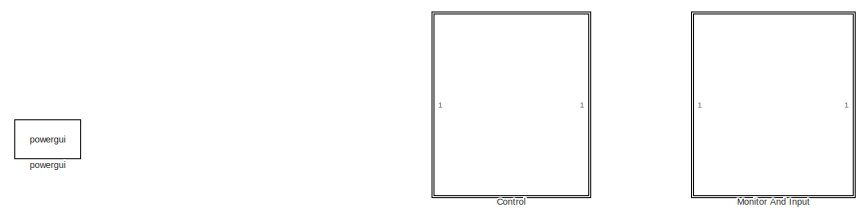
[diagram: root canvas - part 1/7, top center region]
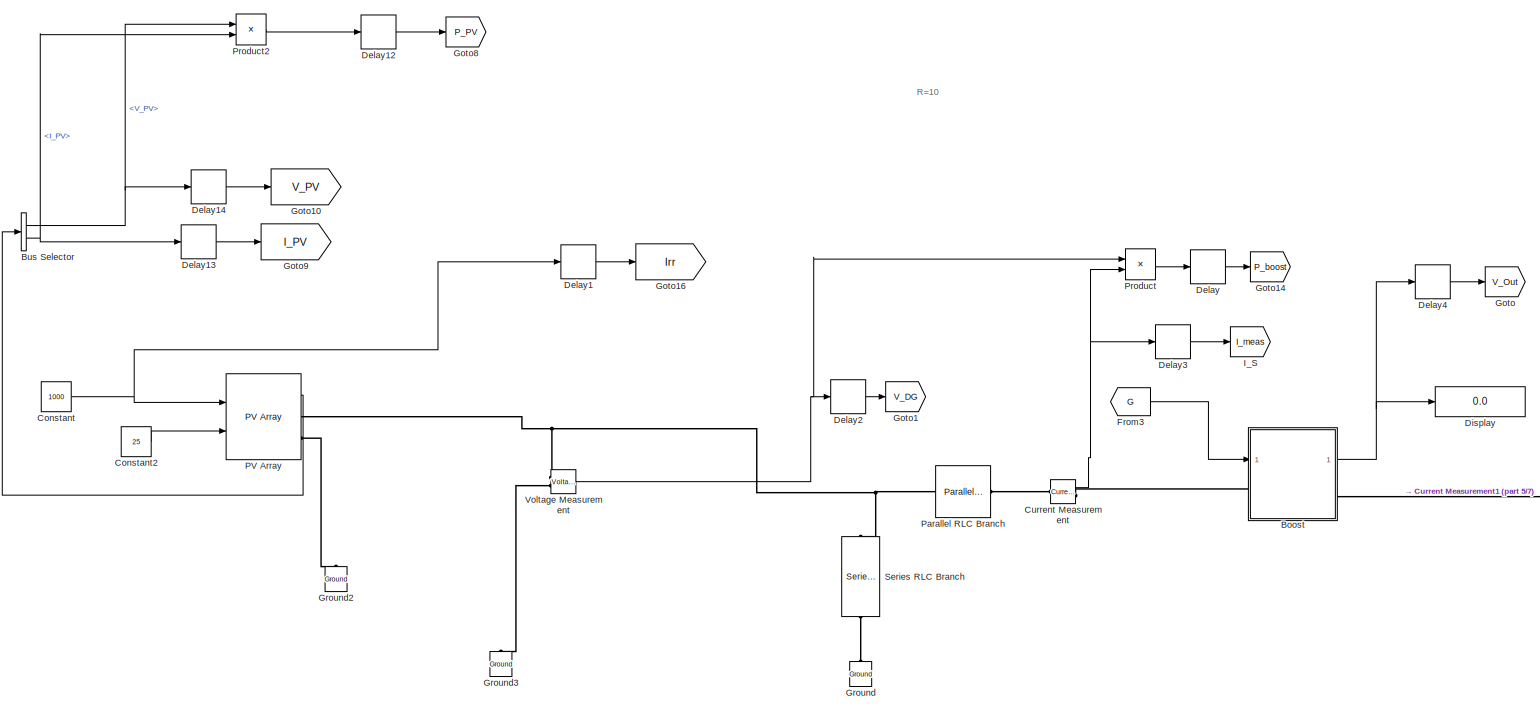
[diagram: root canvas - part 2/7, middle left region]
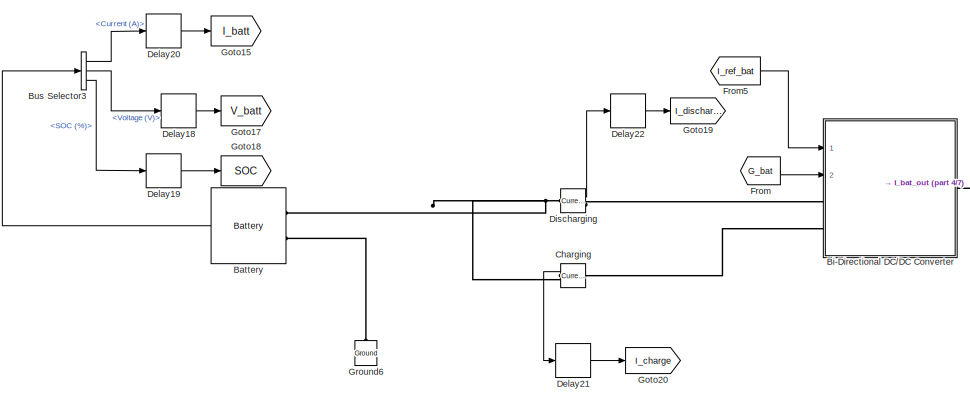
[diagram: root canvas - part 3/7, top center region]
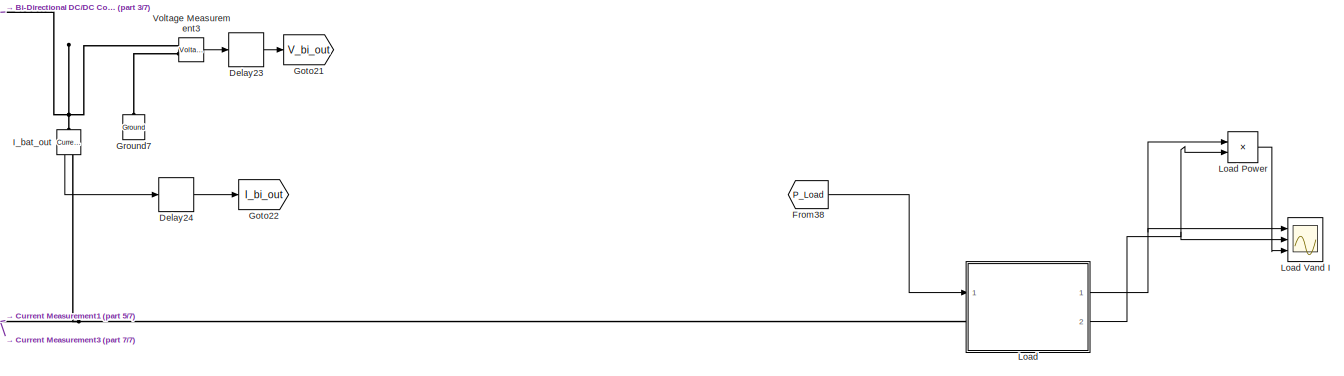
[diagram: root canvas - part 4/7, middle right region]
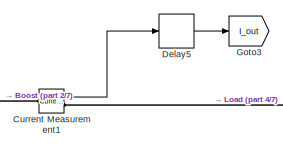
[diagram: root canvas - part 5/7, central region]
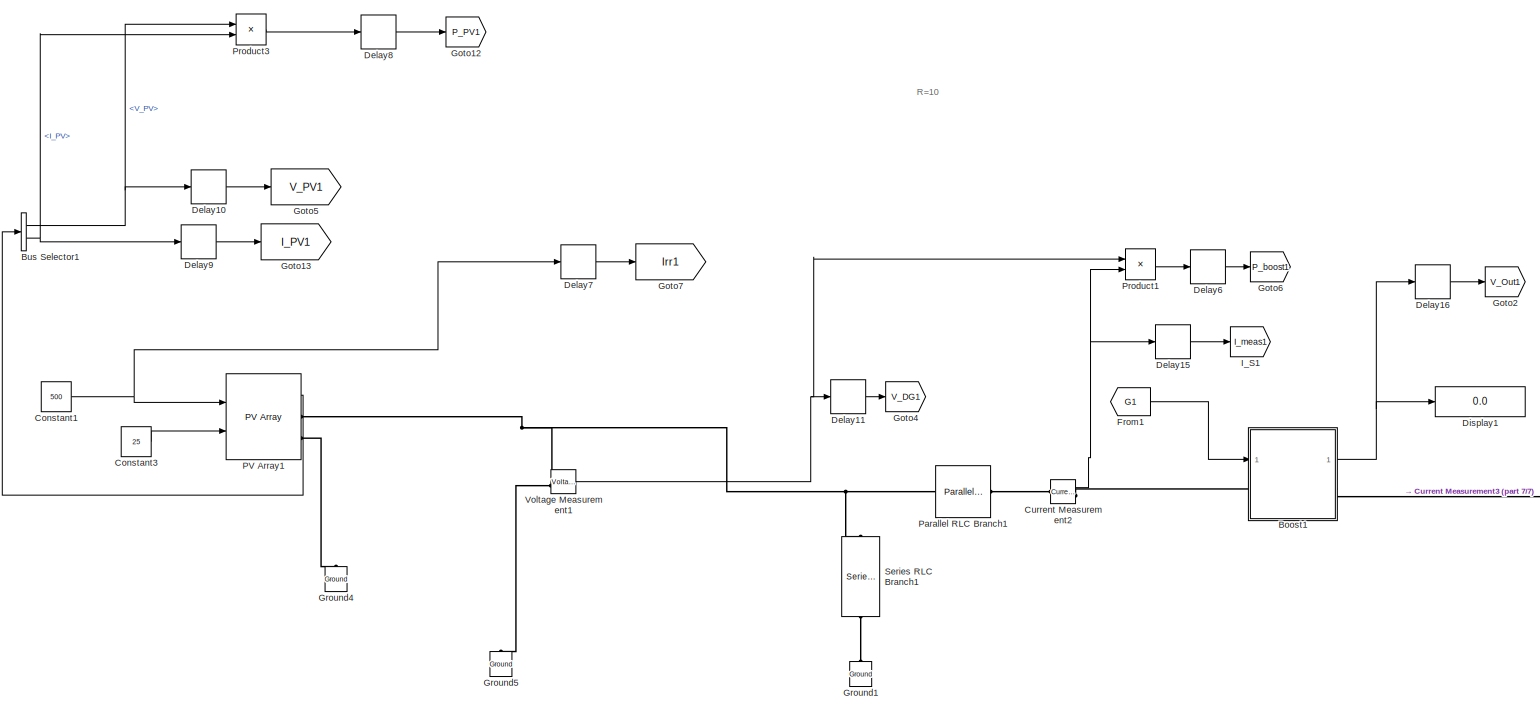
[diagram: root canvas - part 6/7, bottom left region]
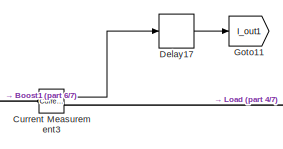
[diagram: root canvas - part 7/7, bottom center region]
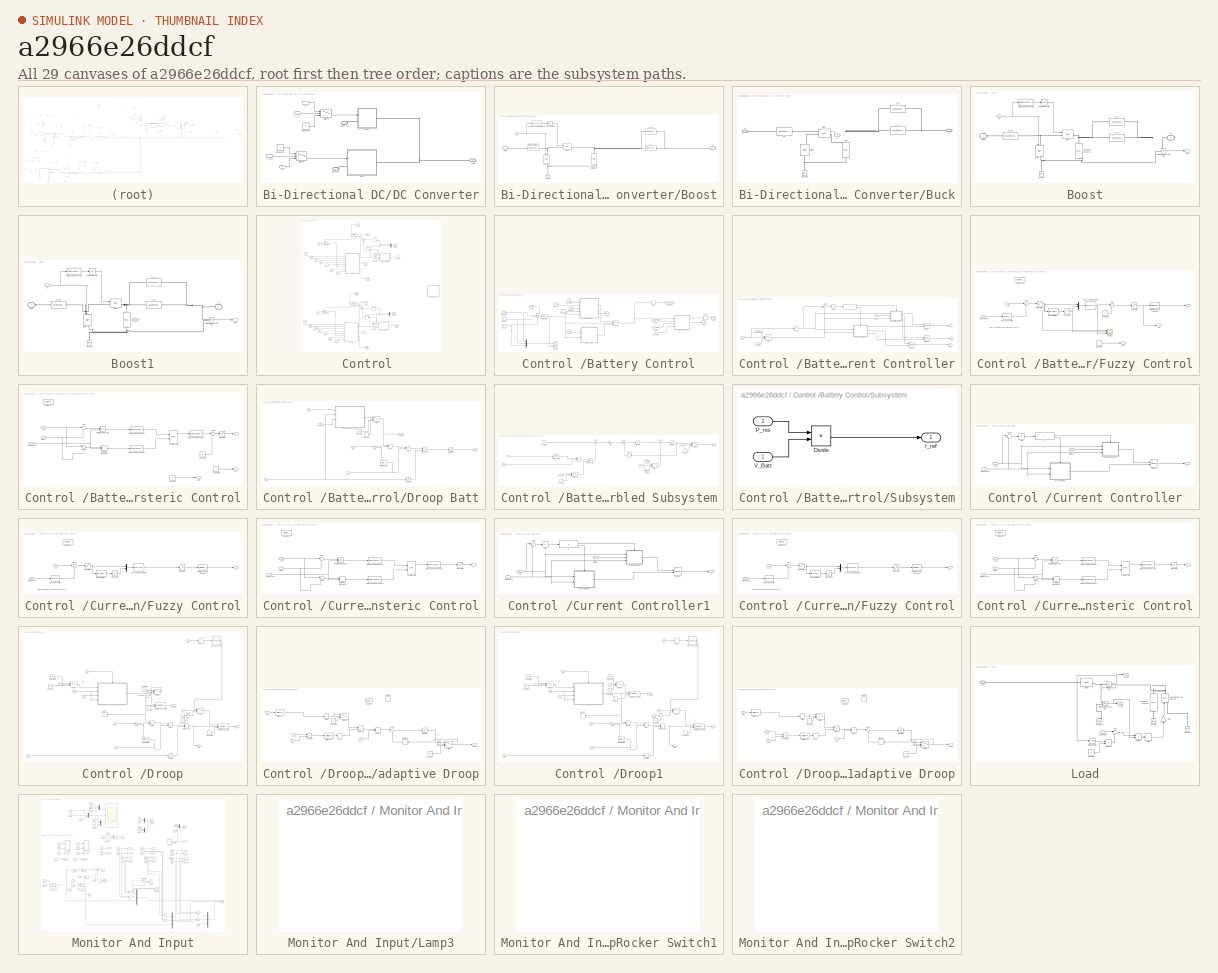
[diagram: thumbnail index - all 29 canvases of the model, root first then tree order]
MODEL slx_a2966e26ddcf
KIND model
CONFIG AbsTol = auto
CONFIG FixedStep = 5e-5
CONFIG MaxStep = auto
CONFIG MinStep = auto
CONFIG RelTol = 1e-3
CONFIG SampleTimeConstraint = Unconstrained
CONFIG Solver = ode3
CONFIG SolverMode = Auto
CONFIG SolverName = ode3
CONFIG StartTime = 0.0
CONFIG StopTime = inf
BLOCK [Reference] Battery  REF=electricdrivelib/Extra Sources/Battery
  BatType = Lithium-Ion
  Batt_Tr = 15
  Dis_rate = 2.3478
  FullV = 34.9196
  FullV2 = 7.1
  MaxQ = 5.4
  MaxQ2 = 4.8
  NomQ = 5.4
  NomT = 20
  NomV = 30
  Normal_OP = 4.8835
  Normal_OP2 = 5.72
  Ports = [0, 1, 0, 0, 0, 2]
  PresetModel = on
  R = 0.055556
  Rca = 0.6
  SOC = 100
  ShowTempParam = off
  SourceBlock = electricdrivelib/Extra Sources/Battery
  SourceType = Battery
  T2 = -30
  Tci = 20
  ThermalPreset = no
  Units = Time
  current = [6.5 13 32.5]
  expZone = [32.4116     0.265304]
  expZone2 = [6.58  1]
  ti = 1000
BLOCK [SubSystem] Bi-Directional DC//DC Converter
  Ports = [2, 0, 0, 0, 0, 2, 1]
  RequestExecContextInheritance = off
  Variant = off
BLOCK [SubSystem] Bi-Directional DC//DC Converter/Boost
  Ports = [1, 0, 0, 0, 0, 1, 1]
  RequestExecContextInheritance = off
  Variant = off
BLOCK [Reference] Bi-Directional DC//DC Converter/Boost/C_LP  REF=powerlib/Elements/Series RLC Branch
  BranchType = R
  Capacitance = 0.004
  Inductance = 1e-3
  InitialCurrent = 0
  InitialVoltage = 0
  LConnTagsString = __new0
  Measurements = None
  Ports = [0, 0, 0, 0, 0, 1, 1]
  RConnTagsString = __new0
  Resistance = 1
  SetiL0 = off
  Setx0 = off
  SourceBlock = powerlib/Elements/Series RLC Branch
  SourceType = Series RLC Branch
BLOCK [DataTypeConversion] Bi-Directional DC//DC Converter/Boost/Data Type Conversion
  OutDataTypeStr = boolean
  RndMeth = Floor
  SaturateOnIntegerOverflow = off
BLOCK [Reference] Bi-Directional DC//DC Converter/Boost/Ground  REF=powerlib/Elements/Ground
  LConnTagsString = a
  Ports = [0, 0, 0, 0, 0, 1]
  SourceBlock = powerlib/Elements/Ground
  SourceType = Ground
BLOCK [Reference] Bi-Directional DC//DC Converter/Boost/IGBT  REF=powerlib/Power
Electronics/IGBT
  Cs = inf
  IC = 0
  Lon = 0
  Measurements = on
  Ports = [1, 1, 0, 0, 0, 1, 1]
  Ron = 0.001
  Rs = 1e5
  SourceBlock = powerlib/Power\nElectronics/IGBT
  SourceType = IGBT
  Tf = 1e-6
  Tt = 2e-6
  Vf = 1
BLOCK [Reference] Bi-Directional DC//DC Converter/Boost/IGBT1  REF=powerlib/Power
Electronics/IGBT
  Cs = inf
  IC = 0
  Lon = 0
  Measurements = on
  Ports = [1, 1, 0, 0, 0, 1, 1]
  Ron = 0.001
  Rs = 1e5
  SourceBlock = powerlib/Power\nElectronics/IGBT
  SourceType = IGBT
  Tf = 1e-6
  Tt = 2e-6
  Vf = 1
BLOCK [Reference] Bi-Directional DC//DC Converter/Boost/L_LP  REF=powerlib/Elements/Series RLC Branch
  BranchType = L
  Capacitance = 6e-2
  Inductance = 0.0164
  InitialCurrent = 0
  InitialVoltage = 0
  LConnTagsString = __new0
  Measurements = None
  Ports = [0, 0, 0, 0, 0, 1, 1]
  RConnTagsString = __new0
  Resistance = 0.01
  SetiL0 = off
  Setx0 = off
  SourceBlock = powerlib/Elements/Series RLC Branch
  SourceType = Series RLC Branch
BLOCK [Logic] Bi-Directional DC//DC Converter/Boost/Logical Operator
  AllPortsSameDT = off
  Operator = NOT
  OutDataTypeStr = boolean
  Ports = [1, 1]
BLOCK [Reference] Bi-Directional DC//DC Converter/Boost/Series RLC Branch1  REF=powerlib/Elements/Series RLC Branch
  BranchType = L
  Capacitance = 1e-6
  Inductance = 7e-3
  InitialCurrent = 0
  InitialVoltage = 0
  LConnTagsString = __new0
  Measurements = None
  Ports = [0, 0, 0, 0, 0, 1, 1]
  RConnTagsString = __new0
  Resistance = 0.1
  SetiL0 = off
  Setx0 = off
  SourceBlock = powerlib/Elements/Series RLC Branch
  SourceType = Series RLC Branch
BLOCK [Reference] Bi-Directional DC//DC Converter/Boost/Series RLC Branch3  REF=powerlib/Elements/Series RLC Branch
  BranchType = C
  Capacitance = 6e-2
  Inductance = 1e-3
  InitialCurrent = 0
  InitialVoltage = 0
  LConnTagsString = __new0
  Measurements = None
  Ports = [0, 0, 0, 0, 0, 1, 1]
  RConnTagsString = __new0
  Resistance = 0.1
  SetiL0 = off
  Setx0 = off
  SourceBlock = powerlib/Elements/Series RLC Branch
  SourceType = Series RLC Branch
BLOCK [PMIOPort] Bi-Directional DC//DC Converter/Boost/Vc
  Port = 2
  Side = Right
  Tag = PMCPort
BLOCK [PMIOPort] Bi-Directional DC//DC Converter/Boost/Vin (Il)
  Port = 1
  Side = Left
  Tag = PMCPort
BLOCK [Inport] Bi-Directional DC//DC Converter/Boost/g
  IconDisplay = Port number
BLOCK [PMIOPort] Bi-Directional DC//DC Converter/Boost_In
  Port = 1
  Side = Left
BLOCK [SubSystem] Bi-Directional DC//DC Converter/Buck
  Ports = [1, 0, 0, 0, 0, 1, 1]
  RequestExecContextInheritance = off
  Variant = off
BLOCK [Reference] Bi-Directional DC//DC Converter/Buck/C_LP  REF=powerlib/Elements/Series RLC Branch
  BranchType = R
  Capacitance = 0.004
  Inductance = 1e-3
  InitialCurrent = 0
  InitialVoltage = 0
  LConnTagsString = __new0
  Measurements = None
  Ports = [0, 0, 0, 0, 0, 1, 1]
  RConnTagsString = __new0
  Resistance = 10
  SetiL0 = off
  Setx0 = off
  SourceBlock = powerlib/Elements/Series RLC Branch
  SourceType = Series RLC Branch
BLOCK [Reference] Bi-Directional DC//DC Converter/Buck/Cap  REF=powerlib/Elements/Series RLC Branch
  BranchType = C
  Capacitance = 1e-3
  Inductance = 1e-3
  InitialCurrent = 0
  InitialVoltage = 0
  LConnTagsString = __new0
  Measurements = None
  Ports = [0, 0, 0, 0, 0, 1, 1]
  RConnTagsString = __new0
  Resistance = 0.1
  SetiL0 = off
  Setx0 = off
  SourceBlock = powerlib/Elements/Series RLC Branch
  SourceType = Series RLC Branch
BLOCK [Reference] Bi-Directional DC//DC Converter/Buck/Diode  REF=powerlib/Power
Electronics/Diode
  Cs = 250e-9
  IC = 0
  Lon = 0
  Measurements = on
  Ports = [0, 1, 0, 0, 0, 1, 1]
  Ron = 0.001
  Rs = 500
  SourceBlock = powerlib/Power\nElectronics/Diode
  SourceType = Diode
  UseSnubber = off
  Vf = 0.8
BLOCK [Inport] Bi-Directional DC//DC Converter/Buck/G
  IconDisplay = Port number
BLOCK [Reference] Bi-Directional DC//DC Converter/Buck/Ground1  REF=powerlib/Elements/Ground
  LConnTagsString = a
  Ports = [0, 0, 0, 0, 0, 1]
  SourceBlock = powerlib/Elements/Ground
  SourceType = Ground
BLOCK [Reference] Bi-Directional DC//DC Converter/Buck/IGBT  REF=powerlib/Power
Electronics/IGBT
  Cs = inf
  IC = 0
  Lon = 0
  Measurements = on
  Ports = [1, 1, 0, 0, 0, 1, 1]
  Ron = 0.001
  Rs = 1e5
  SourceBlock = powerlib/Power\nElectronics/IGBT
  SourceType = IGBT
  Tf = 1e-6
  Tt = 2e-6
  Vf = 1
BLOCK [Reference] Bi-Directional DC//DC Converter/Buck/Ind  REF=powerlib/Elements/Series RLC Branch
  BranchType = L
  Capacitance = 1e-6
  Inductance = 9e-3
  InitialCurrent = 0
  InitialVoltage = 0
  LConnTagsString = __new0
  Measurements = None
  Ports = [0, 0, 0, 0, 0, 1, 1]
  RConnTagsString = __new0
  Resistance = 1
  SetiL0 = off
  Setx0 = off
  SourceBlock = powerlib/Elements/Series RLC Branch
  SourceType = Series RLC Branch
BLOCK [Reference] Bi-Directional DC//DC Converter/Buck/L_LP  REF=powerlib/Elements/Series RLC Branch
  BranchType = L
  Capacitance = 6e-2
  Inductance = 0.0164
  InitialCurrent = 0
  InitialVoltage = 0
  LConnTagsString = __new0
  Measurements = None
  Ports = [0, 0, 0, 0, 0, 1, 1]
  RConnTagsString = __new0
  Resistance = 0.01
  SetiL0 = off
  Setx0 = off
  SourceBlock = powerlib/Elements/Series RLC Branch
  SourceType = Series RLC Branch
BLOCK [PMIOPort] Bi-Directional DC//DC Converter/Buck/VH
  Port = 2
  Side = Right
BLOCK [PMIOPort] Bi-Directional DC//DC Converter/Buck/VL
  Port = 1
  Side = Left
BLOCK [PMIOPort] Bi-Directional DC//DC Converter/Buck_out
  Port = 3
  Side = Left
BLOCK [Constant] Bi-Directional DC//DC Converter/Constant2
  Value = 0
BLOCK [Constant] Bi-Directional DC//DC Converter/Constant3
  Value = 0
BLOCK [Inport] Bi-Directional DC//DC Converter/G
  IconDisplay = Port number
  Port = 2
BLOCK [InportShadow] Bi-Directional DC//DC Converter/G1
  IconDisplay = Port number
  Port = 2
BLOCK [Inport] Bi-Directional DC//DC Converter/I_ref
  IconDisplay = Port number
BLOCK [InportShadow] Bi-Directional DC//DC Converter/I_ref1
  IconDisplay = Port number
BLOCK [Switch] Bi-Directional DC//DC Converter/Switch1
  Criteria = u2 > Threshold
  InputSameDT = off
  SaturateOnIntegerOverflow = off
BLOCK [Switch] Bi-Directional DC//DC Converter/Switch2
  Criteria = u2 > Threshold
  InputSameDT = off
  SaturateOnIntegerOverflow = off
BLOCK [PMIOPort] Bi-Directional DC//DC Converter/V_Bus
  Port = 2
  Side = Right
BLOCK [SubSystem] Boost
  Ports = [1, 1, 0, 0, 0, 1, 1]
  RequestExecContextInheritance = off
  Variant = off
BLOCK [Reference] Boost/C_LP  REF=powerlib/Elements/Series RLC Branch
  BranchType = R
  Capacitance = 0.004
  Inductance = 1e-3
  InitialCurrent = 0
  InitialVoltage = 0
  LConnTagsString = __new0
  Measurements = None
  Ports = [0, 0, 0, 0, 0, 1, 1]
  RConnTagsString = __new0
  Resistance = 1
  SetiL0 = off
  Setx0 = off
  SourceBlock = powerlib/Elements/Series RLC Branch
  SourceType = Series RLC Branch
BLOCK [DataTypeConversion] Boost/Data Type Conversion
  OutDataTypeStr = boolean
  RndMeth = Floor
  SaturateOnIntegerOverflow = off
BLOCK [Reference] Boost/Ground  REF=powerlib/Elements/Ground
  LConnTagsString = a
  Ports = [0, 0, 0, 0, 0, 1]
  SourceBlock = powerlib/Elements/Ground
  SourceType = Ground
BLOCK [Reference] Boost/IGBT  REF=powerlib/Power
Electronics/IGBT
  Cs = inf
  IC = 0
  Lon = 0
  Measurements = on
  Ports = [1, 1, 0, 0, 0, 1, 1]
  Ron = 0.001
  Rs = 1e5
  SourceBlock = powerlib/Power\nElectronics/IGBT
  SourceType = IGBT
  Tf = 1e-6
  Tt = 2e-6
  Vf = 1
BLOCK [Reference] Boost/IGBT1  REF=powerlib/Power
Electronics/IGBT
  Cs = inf
  IC = 0
  Lon = 0
  Measurements = on
  Ports = [1, 1, 0, 0, 0, 1, 1]
  Ron = 0.001
  Rs = 1e5
  SourceBlock = powerlib/Power\nElectronics/IGBT
  SourceType = IGBT
  Tf = 1e-6
  Tt = 2e-6
  Vf = 1
BLOCK [Reference] Boost/L_LP  REF=powerlib/Elements/Series RLC Branch
  BranchType = L
  Capacitance = 6e-2
  Inductance = 0.0164
  InitialCurrent = 0
  InitialVoltage = 0
  LConnTagsString = __new0
  Measurements = None
  Ports = [0, 0, 0, 0, 0, 1, 1]
  RConnTagsString = __new0
  Resistance = 0.01
  SetiL0 = off
  Setx0 = off
  SourceBlock = powerlib/Elements/Series RLC Branch
  SourceType = Series RLC Branch
BLOCK [Logic] Boost/Logical Operator
  AllPortsSameDT = off
  Operator = NOT
  OutDataTypeStr = boolean
  Ports = [1, 1]
BLOCK [Reference] Boost/R_LP1  REF=powerlib/Elements/Series RLC Branch
  BranchType = L
  Capacitance = 6e-2
  Inductance = 7e-3
  InitialCurrent = 0
  InitialVoltage = 0
  LConnTagsString = __new0
  Measurements = None
  Ports = [0, 0, 0, 0, 0, 1, 1]
  RConnTagsString = __new0
  Resistance = 0.01
  SetiL0 = off
  Setx0 = off
  SourceBlock = powerlib/Elements/Series RLC Branch
  SourceType = Series RLC Branch
BLOCK [Reference] Boost/Series RLC Branch3  REF=powerlib/Elements/Series RLC Branch
  BranchType = C
  Capacitance = 6e-3
  Inductance = 1e-3
  InitialCurrent = 0
  InitialVoltage = 0
  LConnTagsString = __new0
  Measurements = None
  Ports = [0, 0, 0, 0, 0, 1, 1]
  RConnTagsString = __new0
  Resistance = 0.005
  SetiL0 = off
  Setx0 = off
  SourceBlock = powerlib/Elements/Series RLC Branch
  SourceType = Series RLC Branch
BLOCK [PMIOPort] Boost/Vc
  Port = 2
  Side = Right
  Tag = PMCPort
BLOCK [PMIOPort] Boost/Vin (Il)
  Port = 1
  Side = Left
  Tag = PMCPort
BLOCK [Reference] Boost/Voltage Measurement  REF=powerlib/Measurements/Voltage Measurement
  OutputType = Complex
  PSBequivalent = 0
  PhasorSimulation = off
  Ports = [0, 1, 0, 0, 0, 2]
  SourceBlock = powerlib/Measurements/Voltage Measurement
  SourceType = Voltage Measurement
  UserDataPersistent = on
BLOCK [Outport] Boost/Vout
  IconDisplay = Port number
BLOCK [Inport] Boost/g
  IconDisplay = Port number
BLOCK [SubSystem] Boost1
  Ports = [1, 1, 0, 0, 0, 1, 1]
  RequestExecContextInheritance = off
  Variant = off
BLOCK [Reference] Boost1/C_LP  REF=powerlib/Elements/Series RLC Branch
  BranchType = R
  Capacitance = 0.004
  Inductance = 1e-3
  InitialCurrent = 0
  InitialVoltage = 0
  LConnTagsString = __new0
  Measurements = None
  Ports = [0, 0, 0, 0, 0, 1, 1]
  RConnTagsString = __new0
  Resistance = 1
  SetiL0 = off
  Setx0 = off
  SourceBlock = powerlib/Elements/Series RLC Branch
  SourceType = Series RLC Branch
BLOCK [DataTypeConversion] Boost1/Data Type Conversion
  OutDataTypeStr = boolean
  RndMeth = Floor
  SaturateOnIntegerOverflow = off
BLOCK [Reference] Boost1/Ground  REF=powerlib/Elements/Ground
  LConnTagsString = a
  Ports = [0, 0, 0, 0, 0, 1]
  SourceBlock = powerlib/Elements/Ground
  SourceType = Ground
BLOCK [Reference] Boost1/IGBT  REF=powerlib/Power
Electronics/IGBT
  Cs = inf
  IC = 0
  Lon = 0
  Measurements = on
  Ports = [1, 1, 0, 0, 0, 1, 1]
  Ron = 0.001
  Rs = 1e5
  SourceBlock = powerlib/Power\nElectronics/IGBT
  SourceType = IGBT
  Tf = 1e-6
  Tt = 2e-6
  Vf = 1
BLOCK [Reference] Boost1/IGBT1  REF=powerlib/Power
Electronics/IGBT
  Cs = inf
  IC = 0
  Lon = 0
  Measurements = on
  Ports = [1, 1, 0, 0, 0, 1, 1]
  Ron = 0.001
  Rs = 1e5
  SourceBlock = powerlib/Power\nElectronics/IGBT
  SourceType = IGBT
  Tf = 1e-6
  Tt = 2e-6
  Vf = 1
BLOCK [Reference] Boost1/L_LP  REF=powerlib/Elements/Series RLC Branch
  BranchType = L
  Capacitance = 6e-2
  Inductance = 0.0164
  InitialCurrent = 0
  InitialVoltage = 0
  LConnTagsString = __new0
  Measurements = None
  Ports = [0, 0, 0, 0, 0, 1, 1]
  RConnTagsString = __new0
  Resistance = 0.01
  SetiL0 = off
  Setx0 = off
  SourceBlock = powerlib/Elements/Series RLC Branch
  SourceType = Series RLC Branch
BLOCK [Logic] Boost1/Logical Operator
  AllPortsSameDT = off
  Operator = NOT
  OutDataTypeStr = boolean
  Ports = [1, 1]
BLOCK [Reference] Boost1/R_LP1  REF=powerlib/Elements/Series RLC Branch
  BranchType = L
  Capacitance = 6e-2
  Inductance = 7e-3
  InitialCurrent = 0
  InitialVoltage = 0
  LConnTagsString = __new0
  Measurements = None
  Ports = [0, 0, 0, 0, 0, 1, 1]
  RConnTagsString = __new0
  Resistance = 0.01
  SetiL0 = off
  Setx0 = off
  SourceBlock = powerlib/Elements/Series RLC Branch
  SourceType = Series RLC Branch
BLOCK [Reference] Boost1/Series RLC Branch3  REF=powerlib/Elements/Series RLC Branch
  BranchType = C
  Capacitance = 6e-3
  Inductance = 1e-3
  InitialCurrent = 0
  InitialVoltage = 0
  LConnTagsString = __new0
  Measurements = None
  Ports = [0, 0, 0, 0, 0, 1, 1]
  RConnTagsString = __new0
  Resistance = 0.005
  SetiL0 = off
  Setx0 = off
  SourceBlock = powerlib/Elements/Series RLC Branch
  SourceType = Series RLC Branch
BLOCK [PMIOPort] Boost1/Vc
  Port = 2
  Side = Right
  Tag = PMCPort
BLOCK [PMIOPort] Boost1/Vin (Il)
  Port = 1
  Side = Left
  Tag = PMCPort
BLOCK [Reference] Boost1/Voltage Measurement  REF=powerlib/Measurements/Voltage Measurement
  OutputType = Complex
  PSBequivalent = 0
  PhasorSimulation = off
  Ports = [0, 1, 0, 0, 0, 2]
  SourceBlock = powerlib/Measurements/Voltage Measurement
  SourceType = Voltage Measurement
  UserDataPersistent = on
BLOCK [Outport] Boost1/Vout
  IconDisplay = Port number
BLOCK [Inport] Boost1/g
  IconDisplay = Port number
BLOCK [BusSelector] Bus Selector
  OutputSignals = V_PV,I_PV
  Ports = [1, 2]
BLOCK [BusSelector] Bus Selector1
  OutputSignals = V_PV,I_PV
  Ports = [1, 2]
BLOCK [BusSelector] Bus Selector3
  OutputSignals = Current (A),Voltage (V),SOC (%)
  Ports = [1, 3]
BLOCK [Reference] Charging  REF=powerlib/Measurements/Current Measurement
  OutputType = Complex
  PSBequivalent = 0
  PhasorSimulation = off
  Ports = [0, 1, 0, 0, 0, 1, 1]
  SourceBlock = powerlib/Measurements/Current Measurement
  SourceType = Current Measurement
  UserDataPersistent = on
BLOCK [Constant] Constant
  Value = 1000
BLOCK [Constant] Constant1
  Value = 500
BLOCK [Constant] Constant2
  Value = 25
BLOCK [Constant] Constant3
  Value = 25
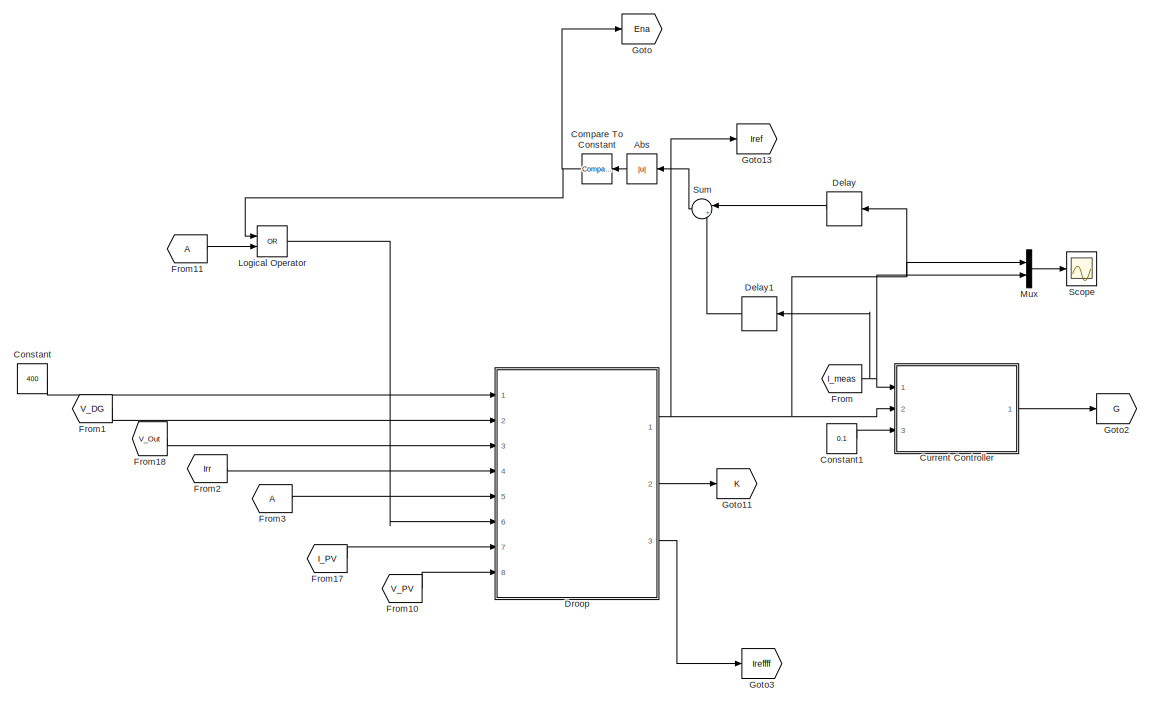
[diagram: Control  - part 1/3, top center region]
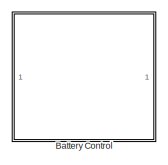
[diagram: Control  - part 2/3, middle right region]
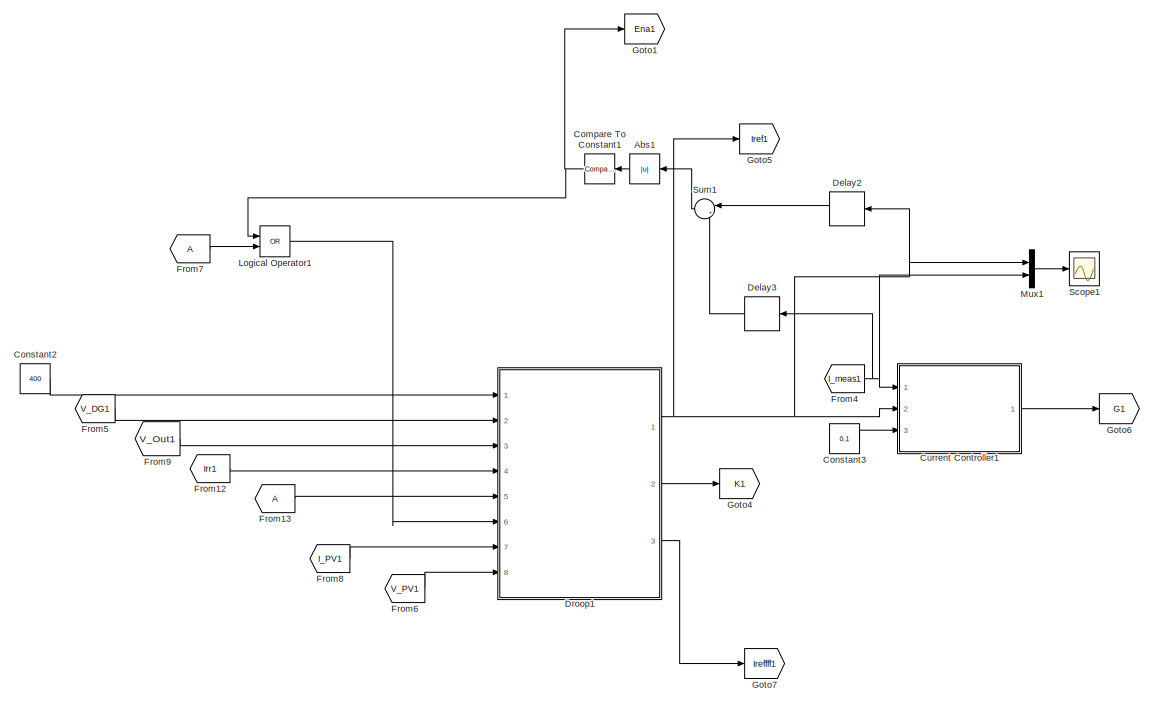
[diagram: Control  - part 3/3, bottom center region]
BLOCK [SubSystem] Control 
  Ports = []
  RequestExecContextInheritance = off
  Variant = off
BLOCK [Abs] Control /Abs
  SaturateOnIntegerOverflow = off
BLOCK [Abs] Control /Abs1
  SaturateOnIntegerOverflow = off
BLOCK [SubSystem] Control /Battery Control
  Ports = []
  RequestExecContextInheritance = off
  Variant = off
BLOCK [SubSystem] Control /Battery Control/Bi-Current Controller
  Ports = [4, 3]
  RequestExecContextInheritance = off
  TreatAsAtomicUnit = on
  Variant = off
BLOCK [Abs] Control /Battery Control/Bi-Current Controller/Abs
  SaturateOnIntegerOverflow = off
BLOCK [Abs] Control /Battery Control/Bi-Current Controller/Abs1
  SaturateOnIntegerOverflow = off
BLOCK [Outport] Control /Battery Control/Bi-Current Controller/Duty
  IconDisplay = Port number
  Port = 3
BLOCK [SubSystem] Control /Battery Control/Bi-Current Controller/Fuzzy Control
  Ports = [2, 3, 0, 0, 0, 0, 0, 1]
  RequestExecContextInheritance = off
  TreatAsAtomicUnit = on
  Variant = off
BLOCK [ActionPort] Control /Battery Control/Bi-Current Controller/Fuzzy Control/Action Port
  ActionType = else
BLOCK [Constant] Control /Battery Control/Bi-Current Controller/Fuzzy Control/Constant
BLOCK [Constant] Control /Battery Control/Bi-Current Controller/Fuzzy Control/Constant1
  Value = 0
BLOCK [Outport] Control /Battery Control/Bi-Current Controller/Fuzzy Control/D1
  IconDisplay = Port number
  Port = 3
BLOCK [DiscreteFilter] Control /Battery Control/Bi-Current Controller/Fuzzy Control/Discrete Filter1
  Denominator = [1]
  InputPortMap = u0
  Numerator = [1 -1]
  Ports = [1, 1]
BLOCK [Reference] Control /Battery Control/Bi-Current Controller/Fuzzy Control/First-Order Filter  REF=powerlib_meascontrol/Filters/First-Order
Filter
  FilterType = Lowpass
  FreqRange = [0,  5000,  1]
  Initialize = off
  PlotResponse = off
  Ports = [1, 1]
  SourceBlock = powerlib_meascontrol/Filters/First-Order\nFilter
  SourceType = First-Order Filter
  Tc = 1/8000
  Ts = 5e-5
  Vac_Init = [0, 0, 60]
  Vdc_Init = 0
BLOCK [Reference] Control /Battery Control/Bi-Current Controller/Fuzzy Control/Fuzzy Logic Controller  REF=fuzblock/Fuzzy Logic   (lib defined in mdl_858b3b3e7478)
Controller
  Ports = [1, 1]
  SourceBlock = fuzblock/Fuzzy Logic \nController
  SourceType = FIS
  fis = ZIloop5
BLOCK [Outport] Control /Battery Control/Bi-Current Controller/Fuzzy Control/G
  IconDisplay = Port number
BLOCK [Inport] Control /Battery Control/Bi-Current Controller/Fuzzy Control/I_measured
  IconDisplay = Port number
  Port = 2
BLOCK [Inport] Control /Battery Control/Bi-Current Controller/Fuzzy Control/I_ref
  IconDisplay = Port number
BLOCK [Mux] Control /Battery Control/Bi-Current Controller/Fuzzy Control/Mux
  DisplayOption = bar
  Inputs = 2
  Ports = [2, 1]
BLOCK [Reference] Control /Battery Control/Bi-Current Controller/Fuzzy Control/PWM Generator (DC-DC)  REF=powerlib_meascontrol/Pulse & Signal
Generators/PWM Generator
(DC-DC)
  Fsw = 10000
  Ports = [1, 1]
  SourceBlock = powerlib_meascontrol/Pulse & Signal\nGenerators/PWM Generator\n(DC-DC)
  SourceType = PWM Generator (DC-DC)
  Ts = 5e-5
BLOCK [Saturate] Control /Battery Control/Bi-Current Controller/Fuzzy Control/Saturation
  InputPortMap = u0
  LowerLimit = 0
  Ports = [1, 1]
  UpperLimit = 0.8
BLOCK [Saturate] Control /Battery Control/Bi-Current Controller/Fuzzy Control/Saturation1
  InputPortMap = u0
  LowerLimit = -100
  Ports = [1, 1]
  UpperLimit = 100
BLOCK [Saturate] Control /Battery Control/Bi-Current Controller/Fuzzy Control/Saturation2
  InputPortMap = u0
  LowerLimit = -10
  Ports = [1, 1]
  UpperLimit = 10
BLOCK [Scope] Control /Battery Control/Bi-Current Controller/Fuzzy Control/Scope
  DataFormat = StructureWithTime
  Decimation = 1
  Grid = on
  LimitDataPoints = off
  MaxDataPoints = 5000
  NumInputPorts = 3
  Ports = [3]
  SampleInput = off
  SampleTime = -1
  SaveName = ScopeData1
  SaveToWorkspace = off
  ShowLegends = off
  TickLabels = OneTimeTick
  TimeRange = auto
  YMax = 250.89284~11.50684~0.55958
  YMin = -272.32143~-3.56156~-0.5596
  ZoomMode = on
BLOCK [Sum] Control /Battery Control/Bi-Current Controller/Fuzzy Control/Sum
  IconShape = round
  InputSameDT = off
  Inputs = |+-
  OutDataTypeStr = Inherit: Inherit via internal rule
  Ports = [2, 1]
  SaturateOnIntegerOverflow = off
BLOCK [Sum] Control /Battery Control/Bi-Current Controller/Fuzzy Control/Sum1
  IconShape = round
  InputSameDT = off
  Inputs = |++
  OutDataTypeStr = Inherit: Inherit via internal rule
  Ports = [2, 1]
  SaturateOnIntegerOverflow = off
BLOCK [Outport] Control /Battery Control/Bi-Current Controller/Fuzzy Control/lamp
  IconDisplay = Port number
  InitialOutput = 1
  Port = 2
  SourceOfInitialOutputValue = Input signal
BLOCK [Outport] Control /Battery Control/Bi-Current Controller/G
  IconDisplay = Port number
BLOCK [SubSystem] Control /Battery Control/Bi-Current Controller/Hysteric Control
  Ports = [3, 3, 0, 0, 0, 0, 0, 1]
  RequestExecContextInheritance = off
  TreatAsAtomicUnit = on
  Variant = off
BLOCK [ActionPort] Control /Battery Control/Bi-Current Controller/Hysteric Control/Action Port
  ActionType = then
BLOCK [Constant] Control /Battery Control/Bi-Current Controller/Hysteric Control/Constant1
  Value = 0
BLOCK [Constant] Control /Battery Control/Bi-Current Controller/Hysteric Control/Constant2
  Value = 0
BLOCK [Constant] Control /Battery Control/Bi-Current Controller/Hysteric Control/Constant3
  Value = 1.2
BLOCK [Outport] Control /Battery Control/Bi-Current Controller/Hysteric Control/D1
  IconDisplay = Port number
  Port = 3
BLOCK [DataTypeConversion] Control /Battery Control/Bi-Current Controller/Hysteric Control/Data Type Conversion
  OutDataTypeStr = boolean
  RndMeth = Floor
  SaturateOnIntegerOverflow = off
BLOCK [DataTypeConversion] Control /Battery Control/Bi-Current Controller/Hysteric Control/Data Type Conversion1
  OutDataTypeStr = boolean
  RndMeth = Floor
  SaturateOnIntegerOverflow = off
BLOCK [DataTypeConversion] Control /Battery Control/Bi-Current Controller/Hysteric Control/Data Type Conversion2
  OutDataTypeStr = double
  RndMeth = Floor
  SaturateOnIntegerOverflow = off
BLOCK [Outport] Control /Battery Control/Bi-Current Controller/Hysteric Control/G
  IconDisplay = Port number
BLOCK [Inport] Control /Battery Control/Bi-Current Controller/Hysteric Control/I_measured
  IconDisplay = Port number
  Port = 3
BLOCK [Inport] Control /Battery Control/Bi-Current Controller/Hysteric Control/I_ref
  IconDisplay = Port number
BLOCK [Outport] Control /Battery Control/Bi-Current Controller/Hysteric Control/Lamp
  IconDisplay = Port number
  InitialOutput = 1
  Port = 2
BLOCK [RelationalOperator] Control /Battery Control/Bi-Current Controller/Hysteric Control/Relational Operator
  InputSameDT = off
  OutDataTypeStr = boolean
  Ports = [2, 1]
  ZeroCross = off
BLOCK [RelationalOperator] Control /Battery Control/Bi-Current Controller/Hysteric Control/Relational Operator1
  InputSameDT = off
  Operator = <=
  OutDataTypeStr = boolean
  Ports = [2, 1]
  ZeroCross = off
BLOCK [Reference] Control /Battery Control/Bi-Current Controller/Hysteric Control/S-R Flip-Flop  REF=simulink_extras/Flip Flops/S-R
Flip-Flop
  Ports = [2, 2]
  SourceBlock = simulink_extras/Flip Flops/S-R\nFlip-Flop
  SourceType = SRFlipFlop
  initial_condition = 0
BLOCK [Saturate] Control /Battery Control/Bi-Current Controller/Hysteric Control/Saturation
  InputPortMap = u0
  LowerLimit = 0
  Ports = [1, 1]
  UpperLimit = 1
BLOCK [Sum] Control /Battery Control/Bi-Current Controller/Hysteric Control/Sum
  IconShape = round
  InputSameDT = off
  Inputs = |+-
  OutDataTypeStr = Inherit: Inherit via internal rule
  Ports = [2, 1]
  SaturateOnIntegerOverflow = off
BLOCK [Sum] Control /Battery Control/Bi-Current Controller/Hysteric Control/Sum1
  IconShape = round
  InputSameDT = off
  Inputs = |++
  OutDataTypeStr = Inherit: Inherit via internal rule
  Ports = [2, 1]
  SaturateOnIntegerOverflow = off
BLOCK [Sum] Control /Battery Control/Bi-Current Controller/Hysteric Control/Sum2
  IconShape = round
  InputSameDT = off
  Inputs = |+-
  OutDataTypeStr = Inherit: Inherit via internal rule
  Ports = [2, 1]
  SaturateOnIntegerOverflow = off
BLOCK [Inport] Control /Battery Control/Bi-Current Controller/Hysteric Control/delta_I
  IconDisplay = Port number
  Port = 2
BLOCK [Inport] Control /Battery Control/Bi-Current Controller/I_charge
  IconDisplay = Port number
  Port = 3
  SampleTime = 5e-5
BLOCK [Inport] Control /Battery Control/Bi-Current Controller/I_discharge
  IconDisplay = Port number
  Port = 2
  SampleTime = 5e-5
BLOCK [Inport] Control /Battery Control/Bi-Current Controller/I_ref
  IconDisplay = Port number
  SampleTime = 5e-5
BLOCK [If] Control /Battery Control/Bi-Current Controller/If
  IfExpression = u1 < 30
  Ports = [1, 2]
BLOCK [Outport] Control /Battery Control/Bi-Current Controller/Light
  IconDisplay = Port number
  Port = 2
BLOCK [Merge] Control /Battery Control/Bi-Current Controller/Merge
  Ports = [2, 1]
BLOCK [Merge] Control /Battery Control/Bi-Current Controller/Merge1
  Ports = [2, 1]
BLOCK [Merge] Control /Battery Control/Bi-Current Controller/Merge2
  Ports = [2, 1]
BLOCK [Sum] Control /Battery Control/Bi-Current Controller/Sum2
  IconShape = round
  InputSameDT = off
  Inputs = |+-
  OutDataTypeStr = Inherit: Inherit via internal rule
  Ports = [2, 1]
  SaturateOnIntegerOverflow = off
BLOCK [Switch] Control /Battery Control/Bi-Current Controller/Switch
  Criteria = u2 > Threshold
  InputSameDT = off
  SaturateOnIntegerOverflow = off
BLOCK [Inport] Control /Battery Control/Bi-Current Controller/delta_I
  IconDisplay = Port number
  Port = 4
BLOCK [Constant] Control /Battery Control/Constant2
  Value = 0.1
BLOCK [Constant] Control /Battery Control/Constant5
  SampleTime = 5e-5
  Value = 400
BLOCK [Delay] Control /Battery Control/Delay
  DelayLength = 1
  InitialCondition = 0
  InputPortMap = u0
  Ports = [1, 1]
BLOCK [Delay] Control /Battery Control/Delay1
  DelayLength = 1
  InitialCondition = 0
  InputPortMap = u0
  Ports = [1, 1]
BLOCK [SubSystem] Control /Battery Control/Droop Batt
  Ports = [5, 2]
  RequestExecContextInheritance = off
  TreatAsAtomicUnit = on
  Variant = off
BLOCK [Constant] Control /Battery Control/Droop Batt/Constant
  SampleTime = 0
  Value = 0.15
BLOCK [Constant] Control /Battery Control/Droop Batt/Constant1
  SampleTime = 0
BLOCK [SubSystem] Control /Battery Control/Droop Batt/Enabled Subsystem
  Ports = [4, 1]
  RequestExecContextInheritance = off
  TreatAsAtomicUnit = on
  Variant = off
BLOCK [Constant] Control /Battery Control/Droop Batt/Enabled Subsystem/Constant
  SampleTime = 0
  Value = 0
BLOCK [Constant] Control /Battery Control/Droop Batt/Enabled Subsystem/Constant1
  SampleTime = 0
BLOCK [Constant] Control /Battery Control/Droop Batt/Enabled Subsystem/Constant2
  SampleTime = 0
BLOCK [Inport] Control /Battery Control/Droop Batt/Enabled Subsystem/DV
  IconDisplay = Port number
  Port = 4
BLOCK [Delay] Control /Battery Control/Droop Batt/Enabled Subsystem/Delay3
  DelayLength = 1
  InputPortMap = u0
  Ports = [1, 1]
BLOCK [Reference] Control /Battery Control/Droop Batt/Enabled Subsystem/First-Order Filter5  REF=powerlib_meascontrol/Filters/First-Order
Filter
  FilterType = Lowpass
  FreqRange = [0,  5000,  1]
  Initialize = off
  PlotResponse = off
  Ports = [1, 1]
  SourceBlock = powerlib_meascontrol/Filters/First-Order\nFilter
  SourceType = First-Order Filter
  Tc = 1/20000
  Ts = 5e-5
  Vac_Init = [0, 0, 60]
  Vdc_Init = 0
BLOCK [Gain] Control /Battery Control/Droop Batt/Enabled Subsystem/Gain
  Gain = 0.001
  OutDataTypeStr = Inherit: Inherit via internal rule
  ParamDataTypeStr = Inherit: Inherit via internal rule
  SaturateOnIntegerOverflow = off
BLOCK [Gain] Control /Battery Control/Droop Batt/Enabled Subsystem/Gain1
  Gain = 0.005
  OutDataTypeStr = Inherit: Inherit via internal rule
  ParamDataTypeStr = Inherit: Inherit via internal rule
  SaturateOnIntegerOverflow = off
BLOCK [Gain] Control /Battery Control/Droop Batt/Enabled Subsystem/Gain2
  Gain = 0
  OutDataTypeStr = Inherit: Inherit via internal rule
  ParamDataTypeStr = Inherit: Inherit via internal rule
  SaturateOnIntegerOverflow = off
BLOCK [Inport] Control /Battery Control/Droop Batt/Enabled Subsystem/I_l
  IconDisplay = Port number
BLOCK [Outport] Control /Battery Control/Droop Batt/Enabled Subsystem/Kdroop
  IconDisplay = Port number
BLOCK [Product] Control /Battery Control/Droop Batt/Enabled Subsystem/P1
  InputSameDT = off
  OutDataTypeStr = Inherit: Inherit via internal rule
  Ports = [2, 1]
  RndMeth = Floor
  SaturateOnIntegerOverflow = off
BLOCK [Product] Control /Battery Control/Droop Batt/Enabled Subsystem/Pref//Vsource1
  InputSameDT = off
  Inputs = */
  OutDataTypeStr = Inherit: Inherit via internal rule
  Ports = [2, 1]
  RndMeth = Floor
  SaturateOnIntegerOverflow = off
BLOCK [Inport] Control /Battery Control/Droop Batt/Enabled Subsystem/Psource
  IconDisplay = Port number
  Port = 3
BLOCK [InportShadow] Control /Battery Control/Droop Batt/Enabled Subsystem/Psource1
  IconDisplay = Port number
  Port = 3
BLOCK [Saturate] Control /Battery Control/Droop Batt/Enabled Subsystem/Saturation1
  InputPortMap = u0
  LowerLimit = 0
  Ports = [1, 1]
  UpperLimit = 10
BLOCK [Saturate] Control /Battery Control/Droop Batt/Enabled Subsystem/Saturation2
  InputPortMap = u0
  LowerLimit = 0
  Ports = [1, 1]
  UpperLimit = 10
BLOCK [Sum] Control /Battery Control/Droop Batt/Enabled Subsystem/Sum1
  IconShape = round
  InputSameDT = off
  Inputs = |+-
  OutDataTypeStr = Inherit: Inherit via internal rule
  Ports = [2, 1]
  SaturateOnIntegerOverflow = off
BLOCK [Sum] Control /Battery Control/Droop Batt/Enabled Subsystem/Sum2
  IconShape = round
  InputSameDT = off
  Inputs = |++
  OutDataTypeStr = Inherit: Inherit via internal rule
  Ports = [2, 1]
  SaturateOnIntegerOverflow = off
BLOCK [Sum] Control /Battery Control/Droop Batt/Enabled Subsystem/Sum3
  IconShape = round
  InputSameDT = off
  Inputs = |++
  OutDataTypeStr = Inherit: Inherit via internal rule
  Ports = [2, 1]
  SaturateOnIntegerOverflow = off
BLOCK [Switch] Control /Battery Control/Droop Batt/Enabled Subsystem/Switch
  Criteria = u2 ~= 0
  InputSameDT = off
  SaturateOnIntegerOverflow = off
BLOCK [Switch] Control /Battery Control/Droop Batt/Enabled Subsystem/Switch1
  Criteria = u2 ~= 0
  InputSameDT = off
  SaturateOnIntegerOverflow = off
BLOCK [Switch] Control /Battery Control/Droop Batt/Enabled Subsystem/Switch2
  InputSameDT = off
  SaturateOnIntegerOverflow = off
  Threshold = 5
BLOCK [Inport] Control /Battery Control/Droop Batt/Enabled Subsystem/V_G
  IconDisplay = Port number
  Port = 2
BLOCK [Reference] Control /Battery Control/Droop Batt/First-Order Filter  REF=powerlib_meascontrol/Filters/First-Order
Filter
  FilterType = Lowpass
  FreqRange = [0,  5000,  1]
  Initialize = off
  PlotResponse = off
  Ports = [1, 1]
  SourceBlock = powerlib_meascontrol/Filters/First-Order\nFilter
  SourceType = First-Order Filter
  Tc = 1/8000
  Ts = 0
  Vac_Init = [0, 0, 60]
  Vdc_Init = 0
BLOCK [Product] Control /Battery Control/Droop Batt/Gaino
  InputSameDT = off
  OutDataTypeStr = Inherit: Inherit via internal rule
  Ports = [2, 1]
  RndMeth = Floor
  SaturateOnIntegerOverflow = off
BLOCK [Inport] Control /Battery Control/Droop Batt/I_L
  IconDisplay = Port number
  Port = 3
BLOCK [Outport] Control /Battery Control/Droop Batt/Iref
  IconDisplay = Port number
BLOCK [Outport] Control /Battery Control/Droop Batt/K_droop
  IconDisplay = Port number
  Port = 2
BLOCK [Product] Control /Battery Control/Droop Batt/Pref
  InputSameDT = off
  OutDataTypeStr = Inherit: Inherit via internal rule
  Ports = [2, 1]
  RndMeth = Floor
  SaturateOnIntegerOverflow = off
BLOCK [Product] Control /Battery Control/Droop Batt/Pref//Vsource
  InputSameDT = off
  Inputs = */
  OutDataTypeStr = Inherit: Inherit via internal rule
  Ports = [2, 1]
  RndMeth = Floor
  SaturateOnIntegerOverflow = off
BLOCK [Inport] Control /Battery Control/Droop Batt/Psource 
  IconDisplay = Port number
  Port = 5
BLOCK [Saturate] Control /Battery Control/Droop Batt/Saturation
  InputPortMap = u0
  LowerLimit = 0.000001
  Ports = [1, 1]
  UpperLimit = inf
BLOCK [Saturate] Control /Battery Control/Droop Batt/Saturation1
  InputPortMap = u0
  LowerLimit = 0
  Ports = [1, 1]
  UpperLimit = 100
BLOCK [Sum] Control /Battery Control/Droop Batt/Sum
  IconShape = round
  InputSameDT = off
  Inputs = |+-
  OutDataTypeStr = Inherit: Inherit via internal rule
  Ports = [2, 1]
  SaturateOnIntegerOverflow = off
BLOCK [Switch] Control /Battery Control/Droop Batt/Switch
  Criteria = u2 ~= 0
  InputSameDT = off
  SaturateOnIntegerOverflow = off
BLOCK [Inport] Control /Battery Control/Droop Batt/V_out
  IconDisplay = Port number
  Port = 4
BLOCK [Inport] Control /Battery Control/Droop Batt/Vref
  IconDisplay = Port number
BLOCK [Inport] Control /Battery Control/Droop Batt/vDG
  IconDisplay = Port number
  Port = 2
BLOCK [Reference] Control /Battery Control/First-Order Filter  REF=powerlib_meascontrol/Filters/First-Order
Filter
  FilterType = Lowpass
  FreqRange = [0,  5000,  1]
  Initialize = off
  PlotResponse = off
  Ports = [1, 1]
  SourceBlock = powerlib_meascontrol/Filters/First-Order\nFilter
  SourceType = First-Order Filter
  Tc = 1/400
  Ts = 0
  Vac_Init = [0, 0, 60]
  Vdc_Init = 0
BLOCK [From] Control /Battery Control/From1
  GotoTag = V_batt
  TagVisibility = global
BLOCK [From] Control /Battery Control/From12
  GotoTag = P_Load
  TagVisibility = global
BLOCK [From] Control /Battery Control/From13
  GotoTag = V_batt
  TagVisibility = global
BLOCK [From] Control /Battery Control/From14
  GotoTag = I_batt
  TagVisibility = global
BLOCK [From] Control /Battery Control/From15
  GotoTag = V_bi_out
  TagVisibility = global
BLOCK [From] Control /Battery Control/From2
  GotoTag = P_RES
  TagVisibility = global
BLOCK [From] Control /Battery Control/From21
  GotoTag = P
  TagVisibility = global
BLOCK [From] Control /Battery Control/From5
  GotoTag = P1
  TagVisibility = global
BLOCK [From] Control /Battery Control/From7
  GotoTag = I_discharge
  TagVisibility = global
BLOCK [From] Control /Battery Control/From8
  GotoTag = I_charge
  TagVisibility = global
BLOCK [Goto] Control /Battery Control/Goto
  GotoTag = G_bat
  TagVisibility = global
BLOCK [Goto] Control /Battery Control/Goto1
  GotoTag = I_ref_bat
  TagVisibility = global
BLOCK [Goto] Control /Battery Control/Goto5
  GotoTag = FH_bat
  TagVisibility = global
BLOCK [Goto] Control /Battery Control/Goto6
  GotoTag = Kbatt
  TagVisibility = global
BLOCK [Mux] Control /Battery Control/Mux
  DisplayOption = bar
  Inputs = 3
  Ports = [3, 1]
BLOCK [Scope] Control /Battery Control/Scope
  DataFormat = Array
  Decimation = 1
  Grid = on
  LimitDataPoints = off
  MaxDataPoints = 5000
  NumInputPorts = 2
  Ports = [2]
  SampleInput = off
  SampleTime = -1
  SaveName = ScopeData3
  SaveToWorkspace = off
  ShowLegends = off
  TickLabels = OneTimeTick
  TimeRange = auto
  YMax = 425~3e-14
  YMin = -25~-3e-14
  ZoomMode = on
BLOCK [SubSystem] Control /Battery Control/Subsystem
  Ports = [2, 1]
  RequestExecContextInheritance = off
  Variant = off
BLOCK [Product] Control /Battery Control/Subsystem/Divide
  InputSameDT = off
  Inputs = */
  OutDataTypeStr = Inherit: Inherit via internal rule
  Ports = [2, 1]
  RndMeth = Floor
  SaturateOnIntegerOverflow = off
BLOCK [Outport] Control /Battery Control/Subsystem/I_ref
  IconDisplay = Port number
BLOCK [Inport] Control /Battery Control/Subsystem/P_res
  IconDisplay = Port number
  Port = 2
BLOCK [Inport] Control /Battery Control/Subsystem/V_Batt
  IconDisplay = Port number
BLOCK [Sum] Control /Battery Control/Sum
  IconShape = round
  InputSameDT = off
  Inputs = |+--
  OutDataTypeStr = Inherit: Inherit via internal rule
  Ports = [3, 1]
  SaturateOnIntegerOverflow = off
BLOCK [Switch] Control /Battery Control/Switch
  InputSameDT = off
  SaturateOnIntegerOverflow = off
BLOCK [Reference] Control /Compare To Constant  REF=simulink/Logic and Bit
Operations/Compare
To Constant
  OutDataTypeStr = boolean
  Ports = [1, 1]
  SourceBlock = simulink/Logic and Bit\nOperations/Compare\nTo Constant
  SourceType = Compare To Constant
  ZeroCross = on
  const = 0.5
  relop = <=
BLOCK [Reference] Control /Compare To Constant1  REF=simulink/Logic and Bit
Operations/Compare
To Constant
  OutDataTypeStr = boolean
  Ports = [1, 1]
  SourceBlock = simulink/Logic and Bit\nOperations/Compare\nTo Constant
  SourceType = Compare To Constant
  ZeroCross = on
  const = 0.5
  relop = <=
BLOCK [Constant] Control /Constant
  SampleTime = 5e-5
  Value = 400
BLOCK [Constant] Control /Constant1
  SampleTime = 0
  Value = 0.1
BLOCK [Constant] Control /Constant2
  SampleTime = 5e-5
  Value = 400
BLOCK [Constant] Control /Constant3
  SampleTime = 0
  Value = 0.1
BLOCK [SubSystem] Control /Current Controller
  Ports = [3, 1]
  RequestExecContextInheritance = off
  TreatAsAtomicUnit = on
  Variant = off
BLOCK [Abs] Control /Current Controller/Abs
  SaturateOnIntegerOverflow = off
BLOCK [SubSystem] Control /Current Controller/Fuzzy Control
  Ports = [2, 1, 0, 0, 0, 0, 0, 1]
  RequestExecContextInheritance = off
  TreatAsAtomicUnit = on
  Variant = off
BLOCK [ActionPort] Control /Current Controller/Fuzzy Control/Action Port
  ActionType = else
BLOCK [DiscreteFilter] Control /Current Controller/Fuzzy Control/Discrete Filter1
  Denominator = [1]
  InputPortMap = u0
  Numerator = [1 -1]
  Ports = [1, 1]
BLOCK [Reference] Control /Current Controller/Fuzzy Control/First-Order Filter  REF=powerlib_meascontrol/Filters/First-Order
Filter
  FilterType = Lowpass
  FreqRange = [0,  5000,  1]
  Initialize = off
  PlotResponse = off
  Ports = [1, 1]
  SourceBlock = powerlib_meascontrol/Filters/First-Order\nFilter
  SourceType = First-Order Filter
  Tc = 1/8000
  Ts = 5e-5
  Vac_Init = [0, 0, 60]
  Vdc_Init = 0
BLOCK [Reference] Control /Current Controller/Fuzzy Control/Fuzzy Logic Controller  REF=fuzblock/Fuzzy Logic   (lib defined in mdl_858b3b3e7478)
Controller
  Ports = [1, 1]
  SourceBlock = fuzblock/Fuzzy Logic \nController
  SourceType = FIS
  fis = ZIloop5
BLOCK [Outport] Control /Current Controller/Fuzzy Control/G
  IconDisplay = Port number
BLOCK [Inport] Control /Current Controller/Fuzzy Control/I_measured
  IconDisplay = Port number
  Port = 2
BLOCK [Inport] Control /Current Controller/Fuzzy Control/I_ref
  IconDisplay = Port number
BLOCK [Mux] Control /Current Controller/Fuzzy Control/Mux
  DisplayOption = bar
  Inputs = 2
  Ports = [2, 1]
BLOCK [Reference] Control /Current Controller/Fuzzy Control/PWM Generator (DC-DC)  REF=powerlib_meascontrol/Pulse & Signal
Generators/PWM Generator
(DC-DC)
  Fsw = 10000
  Ports = [1, 1]
  SourceBlock = powerlib_meascontrol/Pulse & Signal\nGenerators/PWM Generator\n(DC-DC)
  SourceType = PWM Generator (DC-DC)
  Ts = 5e-5
BLOCK [Saturate] Control /Current Controller/Fuzzy Control/Saturation
  InputPortMap = u0
  LowerLimit = 0
  Ports = [1, 1]
  UpperLimit = 0.8
BLOCK [Saturate] Control /Current Controller/Fuzzy Control/Saturation1
  InputPortMap = u0
  LowerLimit = -100
  Ports = [1, 1]
  UpperLimit = 100
BLOCK [Saturate] Control /Current Controller/Fuzzy Control/Saturation2
  InputPortMap = u0
  LowerLimit = -10
  Ports = [1, 1]
  UpperLimit = 10
BLOCK [Sum] Control /Current Controller/Fuzzy Control/Sum
  IconShape = round
  InputSameDT = off
  Inputs = |+-
  OutDataTypeStr = Inherit: Inherit via internal rule
  Ports = [2, 1]
  SaturateOnIntegerOverflow = off
BLOCK [Outport] Control /Current Controller/G
  IconDisplay = Port number
BLOCK [SubSystem] Control /Current Controller/Hysteric Control
  Ports = [3, 1, 0, 0, 0, 0, 0, 1]
  RequestExecContextInheritance = off
  TreatAsAtomicUnit = on
  Variant = off
BLOCK [ActionPort] Control /Current Controller/Hysteric Control/Action Port
  ActionType = then
BLOCK [DataTypeConversion] Control /Current Controller/Hysteric Control/Data Type Conversion
  OutDataTypeStr = boolean
  RndMeth = Floor
  SaturateOnIntegerOverflow = off
BLOCK [DataTypeConversion] Control /Current Controller/Hysteric Control/Data Type Conversion1
  OutDataTypeStr = boolean
  RndMeth = Floor
  SaturateOnIntegerOverflow = off
BLOCK [DataTypeConversion] Control /Current Controller/Hysteric Control/Data Type Conversion2
  OutDataTypeStr = double
  RndMeth = Floor
  SaturateOnIntegerOverflow = off
BLOCK [Outport] Control /Current Controller/Hysteric Control/G
  IconDisplay = Port number
BLOCK [Inport] Control /Current Controller/Hysteric Control/I_measured
  IconDisplay = Port number
  Port = 3
BLOCK [Inport] Control /Current Controller/Hysteric Control/I_ref
  IconDisplay = Port number
BLOCK [RelationalOperator] Control /Current Controller/Hysteric Control/Relational Operator
  InputSameDT = off
  OutDataTypeStr = boolean
  Ports = [2, 1]
  ZeroCross = off
BLOCK [RelationalOperator] Control /Current Controller/Hysteric Control/Relational Operator1
  InputSameDT = off
  Operator = <=
  OutDataTypeStr = boolean
  Ports = [2, 1]
  ZeroCross = off
BLOCK [Reference] Control /Current Controller/Hysteric Control/S-R Flip-Flop  REF=simulink_extras/Flip Flops/S-R
Flip-Flop
  Ports = [2, 2]
  SourceBlock = simulink_extras/Flip Flops/S-R\nFlip-Flop
  SourceType = SRFlipFlop
  initial_condition = 0
BLOCK [Saturate] Control /Current Controller/Hysteric Control/Saturation
  InputPortMap = u0
  LowerLimit = 0
  Ports = [1, 1]
  UpperLimit = 1
BLOCK [Sum] Control /Current Controller/Hysteric Control/Sum
  IconShape = round
  InputSameDT = off
  Inputs = |+-
  OutDataTypeStr = Inherit: Inherit via internal rule
  Ports = [2, 1]
  SaturateOnIntegerOverflow = off
BLOCK [Sum] Control /Current Controller/Hysteric Control/Sum1
  IconShape = round
  InputSameDT = off
  Inputs = |++
  OutDataTypeStr = Inherit: Inherit via internal rule
  Ports = [2, 1]
  SaturateOnIntegerOverflow = off
BLOCK [Inport] Control /Current Controller/Hysteric Control/delta_I
  IconDisplay = Port number
  Port = 2
BLOCK [Inport] Control /Current Controller/I_measured
  IconDisplay = Port number
  SampleTime = 5e-5
BLOCK [Inport] Control /Current Controller/I_ref
  IconDisplay = Port number
  Port = 2
  SampleTime = 5e-5
BLOCK [If] Control /Current Controller/If
  IfExpression = u1 < 30
  Ports = [1, 2]
BLOCK [Merge] Control /Current Controller/Merge
  Ports = [2, 1]
BLOCK [Sum] Control /Current Controller/Sum2
  IconShape = round
  InputSameDT = off
  Inputs = |+-
  OutDataTypeStr = Inherit: Inherit via internal rule
  Ports = [2, 1]
  SaturateOnIntegerOverflow = off
BLOCK [Inport] Control /Current Controller/delata_I
  IconDisplay = Port number
  Port = 3
BLOCK [SubSystem] Control /Current Controller1
  Ports = [3, 1]
  RequestExecContextInheritance = off
  TreatAsAtomicUnit = on
  Variant = off
BLOCK [Abs] Control /Current Controller1/Abs
  SaturateOnIntegerOverflow = off
BLOCK [SubSystem] Control /Current Controller1/Fuzzy Control
  Ports = [2, 1, 0, 0, 0, 0, 0, 1]
  RequestExecContextInheritance = off
  TreatAsAtomicUnit = on
  Variant = off
BLOCK [ActionPort] Control /Current Controller1/Fuzzy Control/Action Port
  ActionType = else
BLOCK [DiscreteFilter] Control /Current Controller1/Fuzzy Control/Discrete Filter1
  Denominator = [1]
  InputPortMap = u0
  Numerator = [1 -1]
  Ports = [1, 1]
BLOCK [Reference] Control /Current Controller1/Fuzzy Control/First-Order Filter  REF=powerlib_meascontrol/Filters/First-Order
Filter
  FilterType = Lowpass
  FreqRange = [0,  5000,  1]
  Initialize = off
  PlotResponse = off
  Ports = [1, 1]
  SourceBlock = powerlib_meascontrol/Filters/First-Order\nFilter
  SourceType = First-Order Filter
  Tc = 1/8000
  Ts = 5e-5
  Vac_Init = [0, 0, 60]
  Vdc_Init = 0
BLOCK [Reference] Control /Current Controller1/Fuzzy Control/Fuzzy Logic Controller  REF=fuzblock/Fuzzy Logic   (lib defined in mdl_858b3b3e7478)
Controller
  Ports = [1, 1]
  SourceBlock = fuzblock/Fuzzy Logic \nController
  SourceType = FIS
  fis = ZIloop5
BLOCK [Outport] Control /Current Controller1/Fuzzy Control/G
  IconDisplay = Port number
BLOCK [Inport] Control /Current Controller1/Fuzzy Control/I_measured
  IconDisplay = Port number
  Port = 2
BLOCK [Inport] Control /Current Controller1/Fuzzy Control/I_ref
  IconDisplay = Port number
BLOCK [Mux] Control /Current Controller1/Fuzzy Control/Mux
  DisplayOption = bar
  Inputs = 2
  Ports = [2, 1]
BLOCK [Reference] Control /Current Controller1/Fuzzy Control/PWM Generator (DC-DC)  REF=powerlib_meascontrol/Pulse & Signal
Generators/PWM Generator
(DC-DC)
  Fsw = 10000
  Ports = [1, 1]
  SourceBlock = powerlib_meascontrol/Pulse & Signal\nGenerators/PWM Generator\n(DC-DC)
  SourceType = PWM Generator (DC-DC)
  Ts = 5e-5
BLOCK [Saturate] Control /Current Controller1/Fuzzy Control/Saturation
  InputPortMap = u0
  LowerLimit = 0
  Ports = [1, 1]
  UpperLimit = 0.8
BLOCK [Saturate] Control /Current Controller1/Fuzzy Control/Saturation1
  InputPortMap = u0
  LowerLimit = -100
  Ports = [1, 1]
  UpperLimit = 100
BLOCK [Saturate] Control /Current Controller1/Fuzzy Control/Saturation2
  InputPortMap = u0
  LowerLimit = -10
  Ports = [1, 1]
  UpperLimit = 10
BLOCK [Sum] Control /Current Controller1/Fuzzy Control/Sum
  IconShape = round
  InputSameDT = off
  Inputs = |+-
  OutDataTypeStr = Inherit: Inherit via internal rule
  Ports = [2, 1]
  SaturateOnIntegerOverflow = off
BLOCK [Outport] Control /Current Controller1/G
  IconDisplay = Port number
BLOCK [SubSystem] Control /Current Controller1/Hysteric Control
  Ports = [3, 1, 0, 0, 0, 0, 0, 1]
  RequestExecContextInheritance = off
  TreatAsAtomicUnit = on
  Variant = off
BLOCK [ActionPort] Control /Current Controller1/Hysteric Control/Action Port
  ActionType = then
BLOCK [DataTypeConversion] Control /Current Controller1/Hysteric Control/Data Type Conversion
  OutDataTypeStr = boolean
  RndMeth = Floor
  SaturateOnIntegerOverflow = off
BLOCK [DataTypeConversion] Control /Current Controller1/Hysteric Control/Data Type Conversion1
  OutDataTypeStr = boolean
  RndMeth = Floor
  SaturateOnIntegerOverflow = off
BLOCK [DataTypeConversion] Control /Current Controller1/Hysteric Control/Data Type Conversion2
  OutDataTypeStr = double
  RndMeth = Floor
  SaturateOnIntegerOverflow = off
BLOCK [Outport] Control /Current Controller1/Hysteric Control/G
  IconDisplay = Port number
BLOCK [Inport] Control /Current Controller1/Hysteric Control/I_measured
  IconDisplay = Port number
  Port = 3
BLOCK [Inport] Control /Current Controller1/Hysteric Control/I_ref
  IconDisplay = Port number
BLOCK [RelationalOperator] Control /Current Controller1/Hysteric Control/Relational Operator
  InputSameDT = off
  OutDataTypeStr = boolean
  Ports = [2, 1]
  ZeroCross = off
BLOCK [RelationalOperator] Control /Current Controller1/Hysteric Control/Relational Operator1
  InputSameDT = off
  Operator = <=
  OutDataTypeStr = boolean
  Ports = [2, 1]
  ZeroCross = off
BLOCK [Reference] Control /Current Controller1/Hysteric Control/S-R Flip-Flop  REF=simulink_extras/Flip Flops/S-R
Flip-Flop
  Ports = [2, 2]
  SourceBlock = simulink_extras/Flip Flops/S-R\nFlip-Flop
  SourceType = SRFlipFlop
  initial_condition = 0
BLOCK [Saturate] Control /Current Controller1/Hysteric Control/Saturation
  InputPortMap = u0
  LowerLimit = 0
  Ports = [1, 1]
  UpperLimit = 1
BLOCK [Sum] Control /Current Controller1/Hysteric Control/Sum
  IconShape = round
  InputSameDT = off
  Inputs = |+-
  OutDataTypeStr = Inherit: Inherit via internal rule
  Ports = [2, 1]
  SaturateOnIntegerOverflow = off
BLOCK [Sum] Control /Current Controller1/Hysteric Control/Sum1
  IconShape = round
  InputSameDT = off
  Inputs = |++
  OutDataTypeStr = Inherit: Inherit via internal rule
  Ports = [2, 1]
  SaturateOnIntegerOverflow = off
BLOCK [Inport] Control /Current Controller1/Hysteric Control/delta_I
  IconDisplay = Port number
  Port = 2
BLOCK [Inport] Control /Current Controller1/I_measured
  IconDisplay = Port number
  SampleTime = 5e-5
BLOCK [Inport] Control /Current Controller1/I_ref
  IconDisplay = Port number
  Port = 2
  SampleTime = 5e-5
BLOCK [If] Control /Current Controller1/If
  IfExpression = u1 < 30
  Ports = [1, 2]
BLOCK [Merge] Control /Current Controller1/Merge
  Ports = [2, 1]
BLOCK [Sum] Control /Current Controller1/Sum2
  IconShape = round
  InputSameDT = off
  Inputs = |+-
  OutDataTypeStr = Inherit: Inherit via internal rule
  Ports = [2, 1]
  SaturateOnIntegerOverflow = off
BLOCK [Inport] Control /Current Controller1/delata_I
  IconDisplay = Port number
  Port = 3
BLOCK [Delay] Control /Delay
  DelayLength = 1
  InitialCondition = 0
  InputPortMap = u0
  Ports = [1, 1]
BLOCK [Delay] Control /Delay1
  DelayLength = 1
  InitialCondition = 0
  InputPortMap = u0
  Ports = [1, 1]
BLOCK [Delay] Control /Delay2
  DelayLength = 1
  InitialCondition = 0
  InputPortMap = u0
  Ports = [1, 1]
BLOCK [Delay] Control /Delay3
  DelayLength = 1
  InitialCondition = 0
  InputPortMap = u0
  Ports = [1, 1]
BLOCK [SubSystem] Control /Droop
  Ports = [8, 3]
  RequestExecContextInheritance = off
  TreatAsAtomicUnit = on
  Variant = off
BLOCK [Lookup_n-D] Control /Droop/1-D Lookup Table
  BreakpointsForDimension1 = fliplr([1000 900 800 600 500 400 300 200 100 0])
  InternalRulePriority = Speed
  NumberOfTableDimensions = 1
  Ports = [1, 1]
  RndMeth = Simplest
  Table = fliplr([17 16.5 15 14.5 11 8 2.5 2 1.5 0])
BLOCK [Inport] Control /Droop/A
  IconDisplay = Port number
  Port = 5
BLOCK [InportShadow] Control /Droop/A1
  IconDisplay = Port number
  Port = 5
BLOCK [InportShadow] Control /Droop/A2
  IconDisplay = Port number
  Port = 5
BLOCK [Constant] Control /Droop/Constant
  Value = 1e-4
BLOCK [Constant] Control /Droop/Constant1
  SampleTime = 0
  Value = 5
BLOCK [Constant] Control /Droop/Constant2
  SampleTime = 0
  Value = 0
BLOCK [Constant] Control /Droop/Constant3
  Value = 1e-3
BLOCK [Constant] Control /Droop/Constant4
  SampleTime = 0
  Value = 0.05
BLOCK [Constant] Control /Droop/Constant5
  SampleTime = 0
  Value = inf
BLOCK [Constant] Control /Droop/Constant6
  SampleTime = 0
  Value = 0
BLOCK [Delay] Control /Droop/Delay1
  DelayLength = 1
  InitialCondition = 0
  InputPortMap = u0
  Ports = [1, 1]
BLOCK [Delay] Control /Droop/Delay2
  DelayLength = 1
  InitialCondition = 0
  InputPortMap = u0
  Ports = [1, 1]
BLOCK [Inport] Control /Droop/EN
  IconDisplay = Port number
  Port = 6
BLOCK [Reference] Control /Droop/First-Order Filter  REF=powerlib_meascontrol/Filters/First-Order
Filter
  FilterType = Lowpass
  FreqRange = [0,  5000,  1]
  Initialize = off
  PlotResponse = off
  Ports = [1, 1]
  SourceBlock = powerlib_meascontrol/Filters/First-Order\nFilter
  SourceType = First-Order Filter
  Tc = 1/8000
  Ts = 0
  Vac_Init = [0, 0, 60]
  Vdc_Init = 0
BLOCK [Product] Control /Droop/Gaino
  InputSameDT = off
  OutDataTypeStr = Inherit: Inherit via internal rule
  Ports = [2, 1]
  RndMeth = Floor
  SaturateOnIntegerOverflow = off
BLOCK [Inport] Control /Droop/I_PV
  IconDisplay = Port number
  Port = 7
BLOCK [InportShadow] Control /Droop/I_PV1
  IconDisplay = Port number
  Port = 7
BLOCK [Outport] Control /Droop/Iref
  IconDisplay = Port number
BLOCK [Outport] Control /Droop/Iref1
  IconDisplay = Port number
  Port = 3
BLOCK [Inport] Control /Droop/Irr
  IconDisplay = Port number
  Port = 4
BLOCK [Outport] Control /Droop/K_droop
  IconDisplay = Port number
  Port = 2
BLOCK [SubSystem] Control /Droop/MPPT adaptive Droop
  Ports = [4, 1, 1]
  RequestExecContextInheritance = off
  TreatAsAtomicUnit = on
  Variant = off
BLOCK [Clock] Control /Droop/MPPT adaptive Droop/Clock
BLOCK [Constant] Control /Droop/MPPT adaptive Droop/Constant
  Value = 0.01
BLOCK [Constant] Control /Droop/MPPT adaptive Droop/Constant1
  Value = -1
BLOCK [Reference] Control /Droop/MPPT adaptive Droop/Difference  REF=simulink/Discrete/Difference
  DoSatur = off
  ICPrevInput = 0.0
  InputProcessing = Inherited
  LockScale = off
  OutDataType = fixdt(1, 16)
  OutDataTypeStr = Inherit: Inherit via internal rule
  OutMax = []
  OutMin = []
  OutScaling = 2^-10
  OutputDataTypeScalingMode = Inherit via internal rule
  Ports = [1, 1]
  RndMeth = Floor
  SourceBlock = simulink/Discrete/Difference
  SourceType = Difference
BLOCK [Reference] Control /Droop/MPPT adaptive Droop/Difference1  REF=simulink/Discrete/Difference
  DoSatur = off
  ICPrevInput = 0.0
  InputProcessing = Inherited
  LockScale = off
  OutDataType = fixdt(1, 16)
  OutDataTypeStr = Inherit: Inherit via internal rule
  OutMax = []
  OutMin = []
  OutScaling = 2^-10
  OutputDataTypeScalingMode = Inherit via internal rule
  Ports = [1, 1]
  RndMeth = Floor
  SourceBlock = simulink/Discrete/Difference
  SourceType = Difference
BLOCK [EnablePort] Control /Droop/MPPT adaptive Droop/Enable
  Ports = []
BLOCK [Inport] Control /Droop/MPPT adaptive Droop/I_PV
  IconDisplay = Port number
  Port = 2
BLOCK [Inport] Control /Droop/MPPT adaptive Droop/I_ref
  IconDisplay = Port number
  Port = 4
BLOCK [Outport] Control /Droop/MPPT adaptive Droop/Kdroop
  IconDisplay = Port number
BLOCK [Memory] Control /Droop/MPPT adaptive Droop/Memory1
BLOCK [Memory] Control /Droop/MPPT adaptive Droop/Memory2
  Commented = on
BLOCK [Product] Control /Droop/MPPT adaptive Droop/PV_Power
  InputSameDT = off
  OutDataTypeStr = Inherit: Inherit via internal rule
  Ports = [2, 1]
  RndMeth = Floor
  SaturateOnIntegerOverflow = off
BLOCK [Product] Control /Droop/MPPT adaptive Droop/Product1
  InputSameDT = off
  OutDataTypeStr = Inherit: Inherit via internal rule
  Ports = [2, 1]
  RndMeth = Floor
  SaturateOnIntegerOverflow = off
BLOCK [Product] Control /Droop/MPPT adaptive Droop/Product2
  InputSameDT = off
  OutDataTypeStr = Inherit: Inherit via internal rule
  Ports = [2, 1]
  RndMeth = Floor
  SaturateOnIntegerOverflow = off
BLOCK [Saturate] Control /Droop/MPPT adaptive Droop/Saturation
  InputPortMap = u0
  LowerLimit = 0
  Ports = [1, 1]
  UpperLimit = 4
BLOCK [Signum] Control /Droop/MPPT adaptive Droop/Sign
BLOCK [Signum] Control /Droop/MPPT adaptive Droop/Sign1
BLOCK [Sum] Control /Droop/MPPT adaptive Droop/Sum1
  IconShape = round
  InputSameDT = off
  Inputs = |++
  OutDataTypeStr = Inherit: Inherit via internal rule
  Ports = [2, 1]
  SaturateOnIntegerOverflow = off
BLOCK [Switch] Control /Droop/MPPT adaptive Droop/Switch
  Criteria = u2 > Threshold
  InputSameDT = off
  SaturateOnIntegerOverflow = off
  Threshold = 0.2
BLOCK [Switch] Control /Droop/MPPT adaptive Droop/Switch1
  Criteria = u2 ~= 0
  InputSameDT = off
  SaturateOnIntegerOverflow = off
  Threshold = 0.1
BLOCK [Inport] Control /Droop/MPPT adaptive Droop/V_PV
  IconDisplay = Port number
  Port = 3
BLOCK [Inport] Control /Droop/MPPT adaptive Droop/d_K
  IconDisplay = Port number
BLOCK [Product] Control /Droop/Pref
  InputSameDT = off
  OutDataTypeStr = Inherit: Inherit via internal rule
  Ports = [2, 1]
  RndMeth = Floor
  SaturateOnIntegerOverflow = off
BLOCK [Product] Control /Droop/Pref//Vsource
  InputSameDT = off
  Inputs = */
  OutDataTypeStr = Inherit: Inherit via internal rule
  Ports = [2, 1]
  RndMeth = Floor
  SaturateOnIntegerOverflow = off
BLOCK [Saturate] Control /Droop/Saturation
  InputPortMap = u0
  LowerLimit = 1
  Ports = [1, 1]
  UpperLimit = inf
BLOCK [Reference] Control /Droop/Saturation Dynamic  REF=simulink/Discontinuities/Saturation
Dynamic
  DoSatur = off
  LockScale = off
  OutDataType = fixdt(1, 16)
  OutDataTypeStr = Inherit: Same as second input
  OutMax = []
  OutMin = []
  OutScaling = 2^-10
  OutputDataTypeScalingMode = Same as second input
  Ports = [3, 1]
  RndMeth = Floor
  SourceBlock = simulink/Discontinuities/Saturation\nDynamic
  SourceType = Saturation Dynamic
BLOCK [Reference] Control /Droop/Saturation Dynamic1  REF=simulink/Discontinuities/Saturation
Dynamic
  DoSatur = off
  LockScale = off
  OutDataType = fixdt(1, 16)
  OutDataTypeStr = Inherit: Same as second input
  OutMax = []
  OutMin = []
  OutScaling = 2^-10
  OutputDataTypeScalingMode = Same as second input
  Ports = [3, 1]
  RndMeth = Floor
  SourceBlock = simulink/Discontinuities/Saturation\nDynamic
  SourceType = Saturation Dynamic
BLOCK [Sum] Control /Droop/Sum
  IconShape = round
  InputSameDT = off
  Inputs = |+-
  OutDataTypeStr = Inherit: Inherit via internal rule
  Ports = [2, 1]
  SaturateOnIntegerOverflow = off
BLOCK [Sum] Control /Droop/Sum1
  IconShape = round
  InputSameDT = off
  Inputs = |++
  OutDataTypeStr = Inherit: Inherit via internal rule
  Ports = [2, 1]
  SaturateOnIntegerOverflow = off
BLOCK [Switch] Control /Droop/Switch
  Criteria = u2 > Threshold
  InputSameDT = off
  SaturateOnIntegerOverflow = off
BLOCK [Switch] Control /Droop/Switch1
  Criteria = u2 > Threshold
  InputSameDT = off
  SaturateOnIntegerOverflow = off
BLOCK [Switch] Control /Droop/Switch2
  Criteria = u2 > Threshold
  InputSameDT = off
  SaturateOnIntegerOverflow = off
BLOCK [Inport] Control /Droop/V_PV
  IconDisplay = Port number
  Port = 8
BLOCK [Inport] Control /Droop/V_out
  IconDisplay = Port number
  Port = 3
BLOCK [Inport] Control /Droop/Vref
  IconDisplay = Port number
BLOCK [Inport] Control /Droop/vDG
  IconDisplay = Port number
  Port = 2
BLOCK [SubSystem] Control /Droop1
  Ports = [8, 3]
  RequestExecContextInheritance = off
  TreatAsAtomicUnit = on
  Variant = off
BLOCK [Lookup_n-D] Control /Droop1/1-D Lookup Table
  BreakpointsForDimension1 = fliplr([1000 900 800 600 500 400 300 200 100 0])
  InternalRulePriority = Speed
  NumberOfTableDimensions = 1
  Ports = [1, 1]
  RndMeth = Simplest
  Table = fliplr([17 16.5 15 14.5 11 8 2.5 2 1.5 0])
BLOCK [Inport] Control /Droop1/A
  IconDisplay = Port number
  Port = 5
BLOCK [InportShadow] Control /Droop1/A1
  IconDisplay = Port number
  Port = 5
BLOCK [InportShadow] Control /Droop1/A2
  IconDisplay = Port number
  Port = 5
BLOCK [Constant] Control /Droop1/Constant
  Value = 1e-4
BLOCK [Constant] Control /Droop1/Constant1
  SampleTime = 0
  Value = 5
BLOCK [Constant] Control /Droop1/Constant2
  SampleTime = 0
  Value = 0
BLOCK [Constant] Control /Droop1/Constant3
  Value = 1e-3
BLOCK [Constant] Control /Droop1/Constant4
  SampleTime = 0
  Value = 0
BLOCK [Constant] Control /Droop1/Constant5
  SampleTime = 0
  Value = inf
BLOCK [Constant] Control /Droop1/Constant6
  SampleTime = 0
  Value = 0.05
BLOCK [Delay] Control /Droop1/Delay1
  DelayLength = 1
  InitialCondition = 0
  InputPortMap = u0
  Ports = [1, 1]
BLOCK [Delay] Control /Droop1/Delay2
  DelayLength = 1
  InitialCondition = 0
  InputPortMap = u0
  Ports = [1, 1]
BLOCK [Inport] Control /Droop1/EN
  IconDisplay = Port number
  Port = 6
BLOCK [Reference] Control /Droop1/First-Order Filter  REF=powerlib_meascontrol/Filters/First-Order
Filter
  FilterType = Lowpass
  FreqRange = [0,  5000,  1]
  Initialize = off
  PlotResponse = off
  Ports = [1, 1]
  SourceBlock = powerlib_meascontrol/Filters/First-Order\nFilter
  SourceType = First-Order Filter
  Tc = 1/8000
  Ts = 0
  Vac_Init = [0, 0, 60]
  Vdc_Init = 0
BLOCK [Product] Control /Droop1/Gaino
  InputSameDT = off
  OutDataTypeStr = Inherit: Inherit via internal rule
  Ports = [2, 1]
  RndMeth = Floor
  SaturateOnIntegerOverflow = off
BLOCK [Inport] Control /Droop1/I_PV
  IconDisplay = Port number
  Port = 7
BLOCK [InportShadow] Control /Droop1/I_PV1
  IconDisplay = Port number
  Port = 7
BLOCK [Outport] Control /Droop1/Iref
  IconDisplay = Port number
BLOCK [Outport] Control /Droop1/Iref1
  IconDisplay = Port number
  Port = 3
BLOCK [Inport] Control /Droop1/Irr
  IconDisplay = Port number
  Port = 4
BLOCK [Outport] Control /Droop1/K_droop
  IconDisplay = Port number
  Port = 2
BLOCK [SubSystem] Control /Droop1/MPPT adaptive Droop
  Ports = [4, 1, 1]
  RequestExecContextInheritance = off
  TreatAsAtomicUnit = on
  Variant = off
BLOCK [Clock] Control /Droop1/MPPT adaptive Droop/Clock
BLOCK [Constant] Control /Droop1/MPPT adaptive Droop/Constant
  Value = 0.01
BLOCK [Constant] Control /Droop1/MPPT adaptive Droop/Constant1
  Value = -1
BLOCK [Reference] Control /Droop1/MPPT adaptive Droop/Difference  REF=simulink/Discrete/Difference
  DoSatur = off
  ICPrevInput = 0.0
  InputProcessing = Inherited
  LockScale = off
  OutDataType = fixdt(1, 16)
  OutDataTypeStr = Inherit: Inherit via internal rule
  OutMax = []
  OutMin = []
  OutScaling = 2^-10
  OutputDataTypeScalingMode = Inherit via internal rule
  Ports = [1, 1]
  RndMeth = Floor
  SourceBlock = simulink/Discrete/Difference
  SourceType = Difference
BLOCK [Reference] Control /Droop1/MPPT adaptive Droop/Difference1  REF=simulink/Discrete/Difference
  DoSatur = off
  ICPrevInput = 0.0
  InputProcessing = Inherited
  LockScale = off
  OutDataType = fixdt(1, 16)
  OutDataTypeStr = Inherit: Inherit via internal rule
  OutMax = []
  OutMin = []
  OutScaling = 2^-10
  OutputDataTypeScalingMode = Inherit via internal rule
  Ports = [1, 1]
  RndMeth = Floor
  SourceBlock = simulink/Discrete/Difference
  SourceType = Difference
BLOCK [EnablePort] Control /Droop1/MPPT adaptive Droop/Enable
  Ports = []
BLOCK [Inport] Control /Droop1/MPPT adaptive Droop/I_PV
  IconDisplay = Port number
  Port = 2
BLOCK [Inport] Control /Droop1/MPPT adaptive Droop/I_ref
  IconDisplay = Port number
  Port = 4
BLOCK [Outport] Control /Droop1/MPPT adaptive Droop/Kdroop
  IconDisplay = Port number
BLOCK [Memory] Control /Droop1/MPPT adaptive Droop/Memory1
BLOCK [Memory] Control /Droop1/MPPT adaptive Droop/Memory2
  Commented = on
BLOCK [Product] Control /Droop1/MPPT adaptive Droop/PV_Power
  InputSameDT = off
  OutDataTypeStr = Inherit: Inherit via internal rule
  Ports = [2, 1]
  RndMeth = Floor
  SaturateOnIntegerOverflow = off
BLOCK [Product] Control /Droop1/MPPT adaptive Droop/Product1
  InputSameDT = off
  OutDataTypeStr = Inherit: Inherit via internal rule
  Ports = [2, 1]
  RndMeth = Floor
  SaturateOnIntegerOverflow = off
BLOCK [Product] Control /Droop1/MPPT adaptive Droop/Product2
  InputSameDT = off
  OutDataTypeStr = Inherit: Inherit via internal rule
  Ports = [2, 1]
  RndMeth = Floor
  SaturateOnIntegerOverflow = off
BLOCK [Saturate] Control /Droop1/MPPT adaptive Droop/Saturation
  InputPortMap = u0
  LowerLimit = 0
  Ports = [1, 1]
  UpperLimit = 4
BLOCK [Signum] Control /Droop1/MPPT adaptive Droop/Sign
BLOCK [Signum] Control /Droop1/MPPT adaptive Droop/Sign1
BLOCK [Sum] Control /Droop1/MPPT adaptive Droop/Sum1
  IconShape = round
  InputSameDT = off
  Inputs = |++
  OutDataTypeStr = Inherit: Inherit via internal rule
  Ports = [2, 1]
  SaturateOnIntegerOverflow = off
BLOCK [Switch] Control /Droop1/MPPT adaptive Droop/Switch
  Criteria = u2 > Threshold
  InputSameDT = off
  SaturateOnIntegerOverflow = off
  Threshold = 0.2
BLOCK [Switch] Control /Droop1/MPPT adaptive Droop/Switch1
  Criteria = u2 ~= 0
  InputSameDT = off
  SaturateOnIntegerOverflow = off
  Threshold = 0.1
BLOCK [Inport] Control /Droop1/MPPT adaptive Droop/V_PV
  IconDisplay = Port number
  Port = 3
BLOCK [Inport] Control /Droop1/MPPT adaptive Droop/d_K
  IconDisplay = Port number
BLOCK [Product] Control /Droop1/Pref
  InputSameDT = off
  OutDataTypeStr = Inherit: Inherit via internal rule
  Ports = [2, 1]
  RndMeth = Floor
  SaturateOnIntegerOverflow = off
BLOCK [Product] Control /Droop1/Pref//Vsource
  InputSameDT = off
  Inputs = */
  OutDataTypeStr = Inherit: Inherit via internal rule
  Ports = [2, 1]
  RndMeth = Floor
  SaturateOnIntegerOverflow = off
BLOCK [Saturate] Control /Droop1/Saturation
  InputPortMap = u0
  LowerLimit = 1
  Ports = [1, 1]
  UpperLimit = inf
BLOCK [Reference] Control /Droop1/Saturation Dynamic  REF=simulink/Discontinuities/Saturation
Dynamic
  DoSatur = off
  LockScale = off
  OutDataType = fixdt(1, 16)
  OutDataTypeStr = Inherit: Same as second input
  OutMax = []
  OutMin = []
  OutScaling = 2^-10
  OutputDataTypeScalingMode = Same as second input
  Ports = [3, 1]
  RndMeth = Floor
  SourceBlock = simulink/Discontinuities/Saturation\nDynamic
  SourceType = Saturation Dynamic
BLOCK [Reference] Control /Droop1/Saturation Dynamic1  REF=simulink/Discontinuities/Saturation
Dynamic
  DoSatur = off
  LockScale = off
  OutDataType = fixdt(1, 16)
  OutDataTypeStr = Inherit: Same as second input
  OutMax = []
  OutMin = []
  OutScaling = 2^-10
  OutputDataTypeScalingMode = Same as second input
  Ports = [3, 1]
  RndMeth = Floor
  SourceBlock = simulink/Discontinuities/Saturation\nDynamic
  SourceType = Saturation Dynamic
BLOCK [Sum] Control /Droop1/Sum
  IconShape = round
  InputSameDT = off
  Inputs = |+-
  OutDataTypeStr = Inherit: Inherit via internal rule
  Ports = [2, 1]
  SaturateOnIntegerOverflow = off
BLOCK [Sum] Control /Droop1/Sum1
  IconShape = round
  InputSameDT = off
  Inputs = |++
  OutDataTypeStr = Inherit: Inherit via internal rule
  Ports = [2, 1]
  SaturateOnIntegerOverflow = off
BLOCK [Switch] Control /Droop1/Switch
  Criteria = u2 > Threshold
  InputSameDT = off
  SaturateOnIntegerOverflow = off
BLOCK [Switch] Control /Droop1/Switch1
  Criteria = u2 > Threshold
  InputSameDT = off
  SaturateOnIntegerOverflow = off
BLOCK [Switch] Control /Droop1/Switch2
  Criteria = u2 > Threshold
  InputSameDT = off
  SaturateOnIntegerOverflow = off
BLOCK [Inport] Control /Droop1/V_PV
  IconDisplay = Port number
  Port = 8
BLOCK [Inport] Control /Droop1/V_out
  IconDisplay = Port number
  Port = 3
BLOCK [Inport] Control /Droop1/Vref
  IconDisplay = Port number
BLOCK [Inport] Control /Droop1/vDG
  IconDisplay = Port number
  Port = 2
BLOCK [From] Control /From
  GotoTag = I_meas
  TagVisibility = global
BLOCK [From] Control /From1
  GotoTag = V_DG
  TagVisibility = global
BLOCK [From] Control /From10
  GotoTag = V_PV
  TagVisibility = global
BLOCK [From] Control /From11
  TagVisibility = global
BLOCK [From] Control /From12
  GotoTag = Irr1
  TagVisibility = global
BLOCK [From] Control /From13
  TagVisibility = global
BLOCK [From] Control /From17
  GotoTag = I_PV
  TagVisibility = global
BLOCK [From] Control /From18
  GotoTag = V_Out
  TagVisibility = global
BLOCK [From] Control /From2
  GotoTag = Irr
  TagVisibility = global
BLOCK [From] Control /From3
  TagVisibility = global
BLOCK [From] Control /From4
  GotoTag = I_meas1
  TagVisibility = global
BLOCK [From] Control /From5
  GotoTag = V_DG1
  TagVisibility = global
BLOCK [From] Control /From6
  GotoTag = V_PV1
  TagVisibility = global
BLOCK [From] Control /From7
  TagVisibility = global
BLOCK [From] Control /From8
  GotoTag = I_PV1
  TagVisibility = global
BLOCK [From] Control /From9
  GotoTag = V_Out1
  TagVisibility = global
BLOCK [Goto] Control /Goto
  GotoTag = Ena
  TagVisibility = global
BLOCK [Goto] Control /Goto1
  GotoTag = Ena1
  TagVisibility = global
BLOCK [Goto] Control /Goto11
  GotoTag = K
  TagVisibility = global
BLOCK [Goto] Control /Goto13
  GotoTag = Iref
  TagVisibility = global
BLOCK [Goto] Control /Goto2
  GotoTag = G
  TagVisibility = global
BLOCK [Goto] Control /Goto3
  GotoTag = Ireffff
  TagVisibility = global
BLOCK [Goto] Control /Goto4
  GotoTag = K1
  TagVisibility = global
BLOCK [Goto] Control /Goto5
  GotoTag = Iref1
  TagVisibility = global
BLOCK [Goto] Control /Goto6
  GotoTag = G1
  TagVisibility = global
BLOCK [Goto] Control /Goto7
  GotoTag = Ireffff1
  TagVisibility = global
BLOCK [Logic] Control /Logical Operator
  AllPortsSameDT = off
  Operator = OR
  OutDataTypeStr = boolean
  Ports = [2, 1]
BLOCK [Logic] Control /Logical Operator1
  AllPortsSameDT = off
  Operator = OR
  OutDataTypeStr = boolean
  Ports = [2, 1]
BLOCK [Mux] Control /Mux
  DisplayOption = bar
  Inputs = 2
  Ports = [2, 1]
BLOCK [Mux] Control /Mux1
  DisplayOption = bar
  Inputs = 2
  Ports = [2, 1]
BLOCK [Scope] Control /Scope
  DataFormat = StructureWithTime
  Decimation = 1
  Grid = on
  LimitDataPoints = off
  MaxDataPoints = 5000
  Ports = [1]
  SampleInput = off
  SampleTime = -1
  SaveName = ScopeData4
  SaveToWorkspace = off
  ShowLegends = off
  TickLabels = OneTimeTick
  TimeRange = auto
  YMax = 26.28218
  YMin = -2.92442
  ZoomMode = on
BLOCK [Scope] Control /Scope1
  DataFormat = Array
  Decimation = 1
  Grid = on
  LimitDataPoints = on
  MaxDataPoints = 5000
  Ports = [1]
  SampleInput = off
  SampleTime = -1
  SaveName = ScopeData1
  SaveToWorkspace = off
  ShowLegends = off
  TickLabels = OneTimeTick
  TimeRange = auto
  YMax = 10
  YMin = -10
  ZoomMode = on
BLOCK [Sum] Control /Sum
  IconShape = round
  InputSameDT = off
  Inputs = |+-
  OutDataTypeStr = Inherit: Inherit via internal rule
  Ports = [2, 1]
  SaturateOnIntegerOverflow = off
BLOCK [Sum] Control /Sum1
  IconShape = round
  InputSameDT = off
  Inputs = |+-
  OutDataTypeStr = Inherit: Inherit via internal rule
  Ports = [2, 1]
  SaturateOnIntegerOverflow = off
BLOCK [Reference] Current Measurement  REF=powerlib/Measurements/Current Measurement
  OutputType = Complex
  PSBequivalent = 0
  PhasorSimulation = off
  Ports = [0, 1, 0, 0, 0, 1, 1]
  SourceBlock = powerlib/Measurements/Current Measurement
  SourceType = Current Measurement
  UserDataPersistent = on
BLOCK [Reference] Current Measurement1  REF=powerlib/Measurements/Current Measurement
  OutputType = Complex
  PSBequivalent = 0
  PhasorSimulation = off
  Ports = [0, 1, 0, 0, 0, 1, 1]
  SourceBlock = powerlib/Measurements/Current Measurement
  SourceType = Current Measurement
  UserDataPersistent = on
BLOCK [Reference] Current Measurement2  REF=powerlib/Measurements/Current Measurement
  OutputType = Complex
  PSBequivalent = 0
  PhasorSimulation = off
  Ports = [0, 1, 0, 0, 0, 1, 1]
  SourceBlock = powerlib/Measurements/Current Measurement
  SourceType = Current Measurement
  UserDataPersistent = on
BLOCK [Reference] Current Measurement3  REF=powerlib/Measurements/Current Measurement
  OutputType = Complex
  PSBequivalent = 0
  PhasorSimulation = off
  Ports = [0, 1, 0, 0, 0, 1, 1]
  SourceBlock = powerlib/Measurements/Current Measurement
  SourceType = Current Measurement
  UserDataPersistent = on
BLOCK [Delay] Delay
  DelayLength = 1
  InitialCondition = 0
  InputPortMap = u0
  Ports = [1, 1]
BLOCK [Delay] Delay1
  DelayLength = 1
  InitialCondition = 0
  InputPortMap = u0
  Ports = [1, 1]
BLOCK [Delay] Delay10
  DelayLength = 1
  InitialCondition = 0
  InputPortMap = u0
  Ports = [1, 1]
BLOCK [Delay] Delay11
  DelayLength = 1
  InitialCondition = 0
  InputPortMap = u0
  Ports = [1, 1]
BLOCK [Delay] Delay12
  DelayLength = 1
  InitialCondition = 0
  InputPortMap = u0
  Ports = [1, 1]
BLOCK [Delay] Delay13
  DelayLength = 1
  InitialCondition = 0
  InputPortMap = u0
  Ports = [1, 1]
BLOCK [Delay] Delay14
  DelayLength = 1
  InitialCondition = 0
  InputPortMap = u0
  Ports = [1, 1]
BLOCK [Delay] Delay15
  DelayLength = 1
  InitialCondition = 0
  InputPortMap = u0
  Ports = [1, 1]
BLOCK [Delay] Delay16
  DelayLength = 1
  InitialCondition = 0
  InputPortMap = u0
  Ports = [1, 1]
BLOCK [Delay] Delay17
  DelayLength = 1
  InitialCondition = 0
  InputPortMap = u0
  Ports = [1, 1]
BLOCK [Delay] Delay18
  DelayLength = 1
  InitialCondition = 0
  InputPortMap = u0
  Ports = [1, 1]
BLOCK [Delay] Delay19
  DelayLength = 1
  InitialCondition = 0
  InputPortMap = u0
  Ports = [1, 1]
BLOCK [Delay] Delay2
  DelayLength = 1
  InitialCondition = 0
  InputPortMap = u0
  Ports = [1, 1]
BLOCK [Delay] Delay20
  DelayLength = 1
  InitialCondition = 0
  InputPortMap = u0
  Ports = [1, 1]
BLOCK [Delay] Delay21
  DelayLength = 1
  InitialCondition = 0
  InputPortMap = u0
  Ports = [1, 1]
BLOCK [Delay] Delay22
  DelayLength = 1
  InitialCondition = 0
  InputPortMap = u0
  Ports = [1, 1]
BLOCK [Delay] Delay23
  DelayLength = 1
  InitialCondition = 0
  InputPortMap = u0
  Ports = [1, 1]
BLOCK [Delay] Delay24
  DelayLength = 1
  InitialCondition = 0
  InputPortMap = u0
  Ports = [1, 1]
BLOCK [Delay] Delay3
  DelayLength = 1
  InitialCondition = 0
  InputPortMap = u0
  Ports = [1, 1]
BLOCK [Delay] Delay4
  DelayLength = 1
  InitialCondition = 0
  InputPortMap = u0
  Ports = [1, 1]
BLOCK [Delay] Delay5
  DelayLength = 1
  InitialCondition = 0
  InputPortMap = u0
  Ports = [1, 1]
BLOCK [Delay] Delay6
  DelayLength = 1
  InitialCondition = 0
  InputPortMap = u0
  Ports = [1, 1]
BLOCK [Delay] Delay7
  DelayLength = 1
  InitialCondition = 0
  InputPortMap = u0
  Ports = [1, 1]
BLOCK [Delay] Delay8
  DelayLength = 1
  InitialCondition = 0
  InputPortMap = u0
  Ports = [1, 1]
BLOCK [Delay] Delay9
  DelayLength = 1
  InitialCondition = 0
  InputPortMap = u0
  Ports = [1, 1]
BLOCK [Reference] Discharging  REF=powerlib/Measurements/Current Measurement
  OutputType = Complex
  PSBequivalent = 0
  PhasorSimulation = off
  Ports = [0, 1, 0, 0, 0, 1, 1]
  SourceBlock = powerlib/Measurements/Current Measurement
  SourceType = Current Measurement
  UserDataPersistent = on
BLOCK [Display] Display
  Decimation = 1
  Ports = [1]
BLOCK [Display] Display1
  Decimation = 1
  Ports = [1]
BLOCK [From] From
  GotoTag = G_bat
  TagVisibility = global
BLOCK [From] From1
  GotoTag = G1
  TagVisibility = global
BLOCK [From] From3
  GotoTag = G
  TagVisibility = global
BLOCK [From] From38
  GotoTag = P_Load
  TagVisibility = global
BLOCK [From] From5
  GotoTag = I_ref_bat
  TagVisibility = global
BLOCK [Goto] Goto
  GotoTag = V_Out
  TagVisibility = global
BLOCK [Goto] Goto1
  GotoTag = V_DG
  TagVisibility = global
BLOCK [Goto] Goto10
  GotoTag = V_PV
  TagVisibility = global
BLOCK [Goto] Goto11
  GotoTag = I_out1
  TagVisibility = global
BLOCK [Goto] Goto12
  GotoTag = P_PV1
  TagVisibility = global
BLOCK [Goto] Goto13
  GotoTag = I_PV1
  TagVisibility = global
BLOCK [Goto] Goto14
  GotoTag = P_boost
  TagVisibility = global
BLOCK [Goto] Goto15
  GotoTag = I_batt
  TagVisibility = global
BLOCK [Goto] Goto16
  GotoTag = Irr
  TagVisibility = global
BLOCK [Goto] Goto17
  GotoTag = V_batt
  TagVisibility = global
BLOCK [Goto] Goto18
  GotoTag = SOC
  TagVisibility = global
BLOCK [Goto] Goto19
  GotoTag = I_discharge
  TagVisibility = global
BLOCK [Goto] Goto2
  GotoTag = V_Out1
  TagVisibility = global
BLOCK [Goto] Goto20
  GotoTag = I_charge
  TagVisibility = global
BLOCK [Goto] Goto21
  GotoTag = V_bi_out
  TagVisibility = global
BLOCK [Goto] Goto22
  GotoTag = I_bi_out
  TagVisibility = global
BLOCK [Goto] Goto3
  GotoTag = I_out
  TagVisibility = global
BLOCK [Goto] Goto4
  GotoTag = V_DG1
  TagVisibility = global
BLOCK [Goto] Goto5
  GotoTag = V_PV1
  TagVisibility = global
BLOCK [Goto] Goto6
  GotoTag = P_boost1
  TagVisibility = global
BLOCK [Goto] Goto7
  GotoTag = Irr1
  TagVisibility = global
BLOCK [Goto] Goto8
  GotoTag = P_PV
  TagVisibility = global
BLOCK [Goto] Goto9
  GotoTag = I_PV
  TagVisibility = global
BLOCK [Reference] Ground  REF=powerlib/Elements/Ground
  LConnTagsString = a
  Ports = [0, 0, 0, 0, 0, 1]
  SourceBlock = powerlib/Elements/Ground
  SourceType = Ground
BLOCK [Reference] Ground1  REF=powerlib/Elements/Ground
  LConnTagsString = a
  Ports = [0, 0, 0, 0, 0, 1]
  SourceBlock = powerlib/Elements/Ground
  SourceType = Ground
BLOCK [Reference] Ground2  REF=powerlib/Elements/Ground
  LConnTagsString = a
  Ports = [0, 0, 0, 0, 0, 1]
  SourceBlock = powerlib/Elements/Ground
  SourceType = Ground
BLOCK [Reference] Ground3  REF=powerlib/Elements/Ground
  LConnTagsString = a
  Ports = [0, 0, 0, 0, 0, 1]
  SourceBlock = powerlib/Elements/Ground
  SourceType = Ground
BLOCK [Reference] Ground4  REF=powerlib/Elements/Ground
  LConnTagsString = a
  Ports = [0, 0, 0, 0, 0, 1]
  SourceBlock = powerlib/Elements/Ground
  SourceType = Ground
BLOCK [Reference] Ground5  REF=powerlib/Elements/Ground
  LConnTagsString = a
  Ports = [0, 0, 0, 0, 0, 1]
  SourceBlock = powerlib/Elements/Ground
  SourceType = Ground
BLOCK [Reference] Ground6  REF=powerlib/Elements/Ground
  LConnTagsString = a
  Ports = [0, 0, 0, 0, 0, 1]
  SourceBlock = powerlib/Elements/Ground
  SourceType = Ground
BLOCK [Reference] Ground7  REF=powerlib/Elements/Ground
  LConnTagsString = a
  Ports = [0, 0, 0, 0, 0, 1]
  SourceBlock = powerlib/Elements/Ground
  SourceType = Ground
BLOCK [Goto] I_S
  GotoTag = I_meas
  TagVisibility = global
BLOCK [Goto] I_S1
  GotoTag = I_meas1
  TagVisibility = global
BLOCK [Reference] I_bat_out  REF=powerlib/Measurements/Current Measurement
  OutputType = Complex
  PSBequivalent = 0
  PhasorSimulation = off
  Ports = [0, 1, 0, 0, 0, 1, 1]
  SourceBlock = powerlib/Measurements/Current Measurement
  SourceType = Current Measurement
  UserDataPersistent = on
BLOCK [SubSystem] Load
  Ports = [1, 2, 0, 0, 0, 1]
  RequestExecContextInheritance = off
  Variant = off
BLOCK [Product] Load Power
  InputSameDT = off
  OutDataTypeStr = Inherit: Inherit via internal rule
  Ports = [2, 1]
  RndMeth = Floor
  SaturateOnIntegerOverflow = off
BLOCK [Scope] Load Vand I
  DataFormat = StructureWithTime
  Decimation = 1
  Grid = on
  LimitDataPoints = off
  MaxDataPoints = 5000
  NumInputPorts = 3
  Ports = [3]
  SampleInput = off
  SampleTime = -1
  SaveName = ScopeData2
  SaveToWorkspace = off
  ShowLegends = off
  TickLabels = OneTimeTick
  TimeRange = auto
  YMax = 3150.38643~330.92882~4956.57534
  YMin = -350.25555~2.15805~-1449.82848
  ZoomMode = yonly
BLOCK [Constant] Load/Constant
  Value = 0
BLOCK [Reference] Load/Controlled Current Source  REF=powerlib/Electrical
Sources/Controlled Current Source
  Amplitude = 0
  Frequency = 0
  Initialize = on
  Measurements = None
  Phase = 0
  Ports = [1, 0, 0, 0, 0, 1, 1]
  SourceBlock = powerlib/Electrical\nSources/Controlled Current Source
  SourceType = Controlled Current Source
  Source_Type = AC
BLOCK [Reference] Load/Current Measurement  REF=powerlib/Measurements/Current Measurement
  OutputType = Complex
  PSBequivalent = 0
  PhasorSimulation = off
  Ports = [0, 1, 0, 0, 0, 1, 1]
  SourceBlock = powerlib/Measurements/Current Measurement
  SourceType = Current Measurement
  UserDataPersistent = on
BLOCK [Delay] Load/Delay
  DelayLength = 1
  InitialCondition = 0
  InputPortMap = u0
  Ports = [1, 1]
BLOCK [Reference] Load/Diode  REF=powerlib/Power
Electronics/Diode
  Cs = 250e-9
  IC = 0
  Lon = 0
  Measurements = on
  Ports = [0, 1, 0, 0, 0, 1, 1]
  Ron = 0.001
  Rs = 500
  SourceBlock = powerlib/Power\nElectronics/Diode
  SourceType = Diode
  UseSnubber = off
  Vf = 0.8
BLOCK [Product] Load/Divide
  InputSameDT = off
  Inputs = */
  OutDataTypeStr = Inherit: Inherit via internal rule
  Ports = [2, 1]
  RndMeth = Floor
  SaturateOnIntegerOverflow = off
BLOCK [Gain] Load/Gain
  Gain = -1
  OutDataTypeStr = Inherit: Inherit via internal rule
  ParamDataTypeStr = Inherit: Inherit via internal rule
  SaturateOnIntegerOverflow = off
BLOCK [Reference] Load/Ground  REF=powerlib/Elements/Ground
  LConnTagsString = a
  Ports = [0, 0, 0, 0, 0, 1]
  SourceBlock = powerlib/Elements/Ground
  SourceType = Ground
BLOCK [Reference] Load/Ground1  REF=powerlib/Elements/Ground
  LConnTagsString = a
  Ports = [0, 0, 0, 0, 0, 1]
  SourceBlock = powerlib/Elements/Ground
  SourceType = Ground
BLOCK [Reference] Load/Ground3  REF=powerlib/Elements/Ground
  LConnTagsString = a
  Ports = [0, 0, 0, 0, 0, 1]
  SourceBlock = powerlib/Elements/Ground
  SourceType = Ground
BLOCK [Outport] Load/I_Load
  IconDisplay = Port number
BLOCK [PMIOPort] Load/Iin
  Port = 1
  Side = Left
BLOCK [Inport] Load/Load Power
  IconDisplay = Port number
BLOCK [Math] Load/Math Function
  Operator = square
  Ports = [1, 1]
BLOCK [Product] Load/Product
  InputSameDT = off
  OutDataTypeStr = Inherit: Inherit via internal rule
  Ports = [2, 1]
  RndMeth = Floor
  SaturateOnIntegerOverflow = off
BLOCK [Reference] Load/Series RLC Branch1  REF=powerlib/Elements/Series RLC Branch
  BranchType = C
  Capacitance = 1e-3
  Inductance = 1e-3
  InitialCurrent = 0
  InitialVoltage = 0
  LConnTagsString = __new0
  Measurements = None
  Ports = [0, 0, 0, 0, 0, 1, 1]
  RConnTagsString = __new0
  Resistance = 1
  SetiL0 = off
  Setx0 = off
  SourceBlock = powerlib/Elements/Series RLC Branch
  SourceType = Series RLC Branch
BLOCK [Sum] Load/Sum
  IconShape = round
  InputSameDT = off
  Inputs = |+-
  OutDataTypeStr = Inherit: Inherit via internal rule
  Ports = [2, 1]
  SaturateOnIntegerOverflow = off
BLOCK [Outport] Load/V_Load
  IconDisplay = Port number
  Port = 2
BLOCK [Reference] Load/Voltage Measurement  REF=powerlib/Measurements/Voltage Measurement
  OutputType = Complex
  PSBequivalent = 0
  PhasorSimulation = off
  Ports = [0, 1, 0, 0, 0, 2]
  SourceBlock = powerlib/Measurements/Voltage Measurement
  SourceType = Voltage Measurement
  UserDataPersistent = on
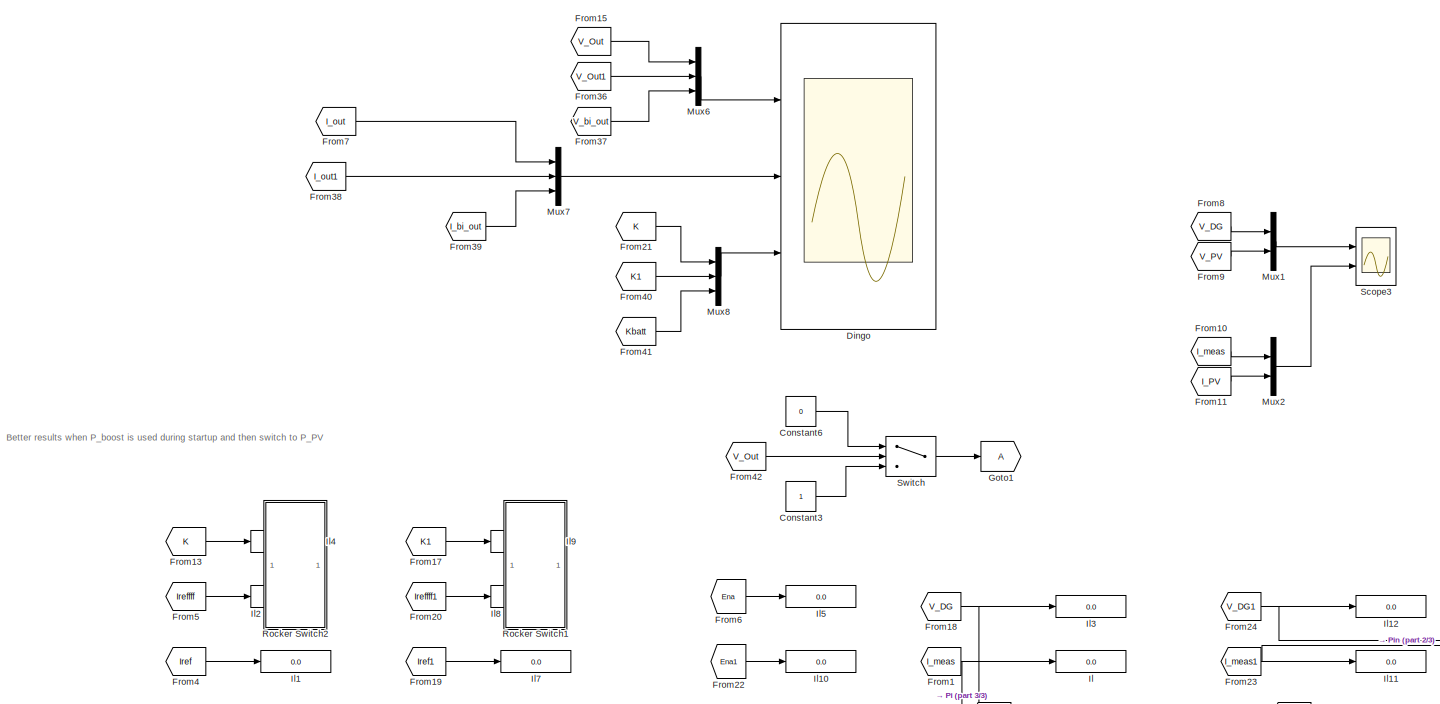
[diagram: Monitor And Input - part 1/3, top left region]
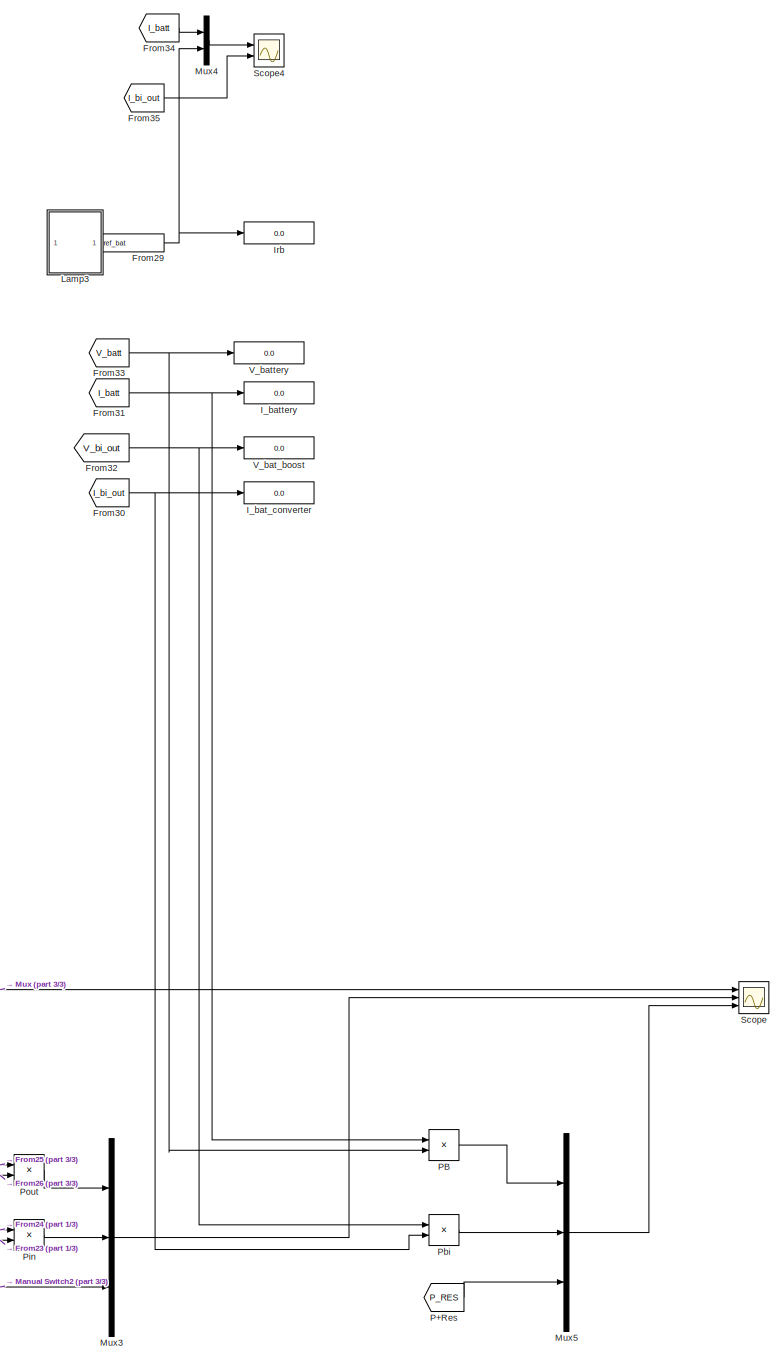
[diagram: Monitor And Input - part 2/3, right side, full height]
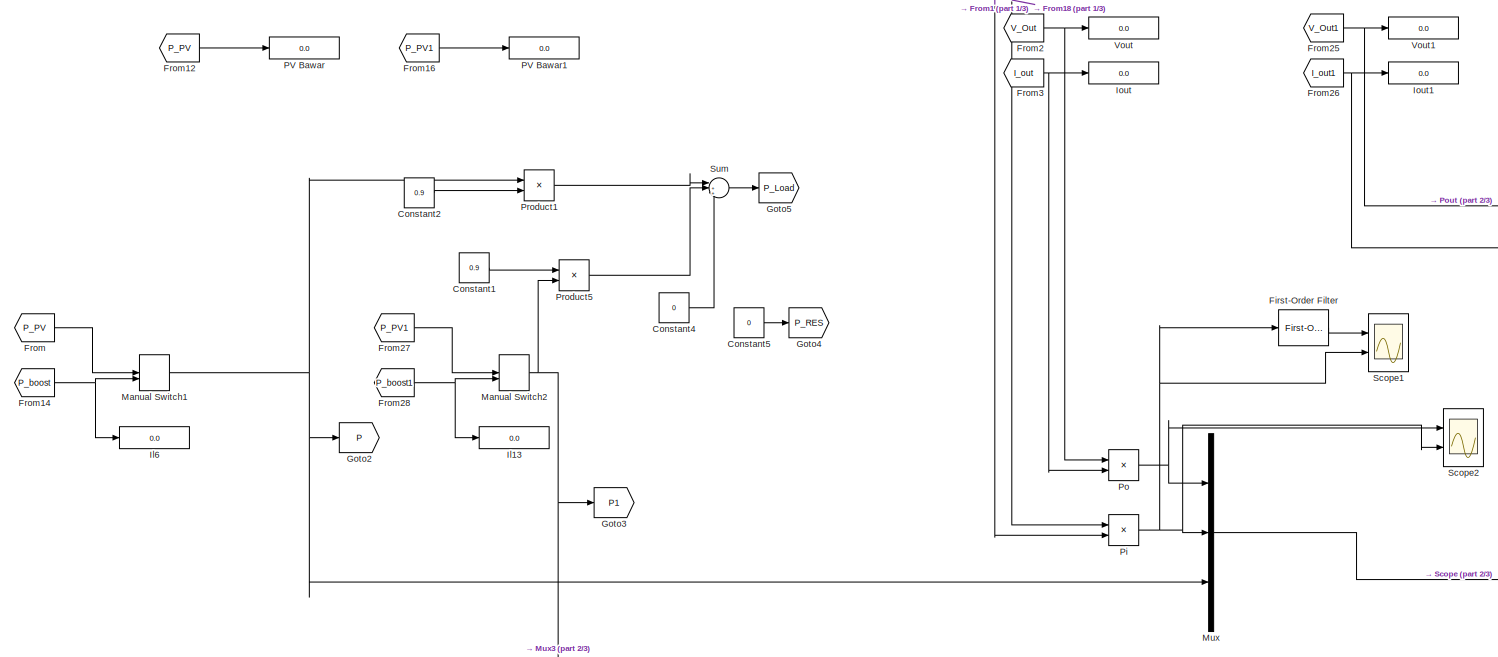
[diagram: Monitor And Input - part 3/3, middle left region]
BLOCK [SubSystem] Monitor And Input
  Ports = []
  RequestExecContextInheritance = off
  Variant = off
BLOCK [Constant] Monitor And Input/Constant1
  SampleTime = 0
  Value = 0.9
BLOCK [Constant] Monitor And Input/Constant2
  SampleTime = 0
  Value = 0.9
BLOCK [Constant] Monitor And Input/Constant3
  SampleTime = 0
BLOCK [Constant] Monitor And Input/Constant4
  SampleTime = 0
  Value = 0
BLOCK [Constant] Monitor And Input/Constant5
  SampleTime = 0
  Value = 0
BLOCK [Constant] Monitor And Input/Constant6
  SampleTime = 0
  Value = 0
BLOCK [Scope] Monitor And Input/Dingo
  DataFormat = StructureWithTime
  Decimation = 1
  Grid = on
  LimitDataPoints = off
  MaxDataPoints = 5000
  NumInputPorts = 3
  Ports = [3]
  SampleInput = off
  SampleTime = -1
  SaveName = ScopeData1
  SaveToWorkspace = off
  ShowLegends = on
  TickLabels = OneTimeTick
  TimeRange = 3.8087
  YMax = 453.41004~10.3251~4.5
  YMin = -51.0886~-5.15693~-0.5
  ZoomMode = on
BLOCK [Reference] Monitor And Input/First-Order Filter  REF=powerlib_meascontrol/Filters/First-Order
Filter
  FilterType = Lowpass
  FreqRange = [0,  200,  1]
  Initialize = off
  PlotResponse = off
  Ports = [1, 1]
  SourceBlock = powerlib_meascontrol/Filters/First-Order\nFilter
  SourceType = First-Order Filter
  Tc = 1/400
  Ts = 5e-5
  Vac_Init = [0, 0, 60]
  Vdc_Init = 0
BLOCK [From] Monitor And Input/From
  GotoTag = P_PV
  TagVisibility = global
BLOCK [From] Monitor And Input/From1
  GotoTag = I_meas
  TagVisibility = global
BLOCK [From] Monitor And Input/From10
  GotoTag = I_meas
  TagVisibility = global
BLOCK [From] Monitor And Input/From11
  GotoTag = I_PV
  TagVisibility = global
BLOCK [From] Monitor And Input/From12
  GotoTag = P_PV
  TagVisibility = global
BLOCK [From] Monitor And Input/From13
  GotoTag = K
  TagVisibility = global
BLOCK [From] Monitor And Input/From14
  GotoTag = P_boost
  TagVisibility = global
BLOCK [From] Monitor And Input/From15
  GotoTag = V_Out
  TagVisibility = global
BLOCK [From] Monitor And Input/From16
  GotoTag = P_PV1
  TagVisibility = global
BLOCK [From] Monitor And Input/From17
  GotoTag = K1
  TagVisibility = global
BLOCK [From] Monitor And Input/From18
  GotoTag = V_DG
  TagVisibility = global
BLOCK [From] Monitor And Input/From19
  GotoTag = Iref1
  TagVisibility = global
BLOCK [From] Monitor And Input/From2
  GotoTag = V_Out
  TagVisibility = global
BLOCK [From] Monitor And Input/From20
  GotoTag = Ireffff1
  TagVisibility = global
BLOCK [From] Monitor And Input/From21
  GotoTag = K
  TagVisibility = global
BLOCK [From] Monitor And Input/From22
  GotoTag = Ena1
  TagVisibility = global
BLOCK [From] Monitor And Input/From23
  GotoTag = I_meas1
  TagVisibility = global
BLOCK [From] Monitor And Input/From24
  GotoTag = V_DG1
  TagVisibility = global
BLOCK [From] Monitor And Input/From25
  GotoTag = V_Out1
  TagVisibility = global
BLOCK [From] Monitor And Input/From26
  GotoTag = I_out1
  TagVisibility = global
BLOCK [From] Monitor And Input/From27
  GotoTag = P_PV1
  TagVisibility = global
BLOCK [From] Monitor And Input/From28
  GotoTag = P_boost1
  TagVisibility = global
BLOCK [From] Monitor And Input/From29
  GotoTag = I_ref_bat
  TagVisibility = global
BLOCK [From] Monitor And Input/From3
  GotoTag = I_out
  TagVisibility = global
BLOCK [From] Monitor And Input/From30
  GotoTag = I_bi_out
  TagVisibility = global
BLOCK [From] Monitor And Input/From31
  GotoTag = I_batt
  TagVisibility = global
BLOCK [From] Monitor And Input/From32
  GotoTag = V_bi_out
  TagVisibility = global
BLOCK [From] Monitor And Input/From33
  GotoTag = V_batt
  TagVisibility = global
BLOCK [From] Monitor And Input/From34
  GotoTag = I_batt
  TagVisibility = global
BLOCK [From] Monitor And Input/From35
  GotoTag = I_bi_out
  TagVisibility = global
BLOCK [From] Monitor And Input/From36
  GotoTag = V_Out1
  TagVisibility = global
BLOCK [From] Monitor And Input/From37
  GotoTag = V_bi_out
  TagVisibility = global
BLOCK [From] Monitor And Input/From38
  GotoTag = I_out1
  TagVisibility = global
BLOCK [From] Monitor And Input/From39
  GotoTag = I_bi_out
  TagVisibility = global
BLOCK [From] Monitor And Input/From4
  GotoTag = Iref
  TagVisibility = global
BLOCK [From] Monitor And Input/From40
  GotoTag = K1
  TagVisibility = global
BLOCK [From] Monitor And Input/From41
  GotoTag = Kbatt
  TagVisibility = global
BLOCK [From] Monitor And Input/From42
  GotoTag = V_Out
  TagVisibility = global
BLOCK [From] Monitor And Input/From5
  GotoTag = Ireffff
  TagVisibility = global
BLOCK [From] Monitor And Input/From6
  GotoTag = Ena
  TagVisibility = global
BLOCK [From] Monitor And Input/From7
  GotoTag = I_out
  TagVisibility = global
BLOCK [From] Monitor And Input/From8
  GotoTag = V_DG
  TagVisibility = global
BLOCK [From] Monitor And Input/From9
  GotoTag = V_PV
  TagVisibility = global
BLOCK [Goto] Monitor And Input/Goto1
  TagVisibility = global
BLOCK [Goto] Monitor And Input/Goto2
  GotoTag = P
  TagVisibility = global
BLOCK [Goto] Monitor And Input/Goto3
  GotoTag = P1
  TagVisibility = global
BLOCK [Goto] Monitor And Input/Goto4
  GotoTag = P_RES
  TagVisibility = global
BLOCK [Goto] Monitor And Input/Goto5
  GotoTag = P_Load
  TagVisibility = global
BLOCK [Display] Monitor And Input/I_bat_converter
  Decimation = 1
  Ports = [1]
BLOCK [Display] Monitor And Input/I_battery
  Decimation = 1
  Ports = [1]
BLOCK [Display] Monitor And Input/Il
  Decimation = 1
  Ports = [1]
BLOCK [Display] Monitor And Input/Il1
  Decimation = 1
  Ports = [1]
BLOCK [Display] Monitor And Input/Il10
  Decimation = 1
  Ports = [1]
BLOCK [Display] Monitor And Input/Il11
  Decimation = 1
  Ports = [1]
BLOCK [Display] Monitor And Input/Il12
  Decimation = 1
  Ports = [1]
BLOCK [Display] Monitor And Input/Il13
  Decimation = 1
  Ports = [1]
BLOCK [Display] Monitor And Input/Il2
  Decimation = 1
  Ports = [1]
BLOCK [Display] Monitor And Input/Il3
  Decimation = 1
  Ports = [1]
BLOCK [Display] Monitor And Input/Il4
  Decimation = 1
  Ports = [1]
BLOCK [Display] Monitor And Input/Il5
  Decimation = 1
  Ports = [1]
BLOCK [Display] Monitor And Input/Il6
  Decimation = 1
  Ports = [1]
BLOCK [Display] Monitor And Input/Il7
  Decimation = 1
  Ports = [1]
BLOCK [Display] Monitor And Input/Il8
  Decimation = 1
  Ports = [1]
BLOCK [Display] Monitor And Input/Il9
  Decimation = 1
  Ports = [1]
BLOCK [Display] Monitor And Input/Iout
  Decimation = 1
  Ports = [1]
BLOCK [Display] Monitor And Input/Iout1
  Decimation = 1
  Ports = [1]
BLOCK [Display] Monitor And Input/Irb
  Decimation = 1
  Ports = [1]
BLOCK [SubSystem] Monitor And Input/Lamp3
  DialogController = hmiCreateDDGDialog
  MaskHideContents = on
  Ports = []
  RequestExecContextInheritance = off
  Variant = off
BLOCK [ManualSwitch] Monitor And Input/Manual Switch1
BLOCK [ManualSwitch] Monitor And Input/Manual Switch2
BLOCK [Mux] Monitor And Input/Mux
  DisplayOption = bar
  Inputs = 3
  Ports = [3, 1]
BLOCK [Mux] Monitor And Input/Mux1
  DisplayOption = bar
  Inputs = 2
  Ports = [2, 1]
BLOCK [Mux] Monitor And Input/Mux2
  DisplayOption = bar
  Inputs = 2
  Ports = [2, 1]
BLOCK [Mux] Monitor And Input/Mux3
  DisplayOption = bar
  Inputs = 3
  Ports = [3, 1]
BLOCK [Mux] Monitor And Input/Mux4
  DisplayOption = bar
  Inputs = 2
  Ports = [2, 1]
BLOCK [Mux] Monitor And Input/Mux5
  DisplayOption = bar
  Inputs = 3
  Ports = [3, 1]
BLOCK [Mux] Monitor And Input/Mux6
  DisplayOption = bar
  Inputs = 3
  Ports = [3, 1]
BLOCK [Mux] Monitor And Input/Mux7
  DisplayOption = bar
  Inputs = 3
  Ports = [3, 1]
BLOCK [Mux] Monitor And Input/Mux8
  DisplayOption = bar
  Inputs = 3
  Ports = [3, 1]
BLOCK [From] Monitor And Input/P+Res
  GotoTag = P_RES
  TagVisibility = global
BLOCK [Product] Monitor And Input/PB
  InputSameDT = off
  OutDataTypeStr = Inherit: Inherit via internal rule
  Ports = [2, 1]
  RndMeth = Floor
  SaturateOnIntegerOverflow = off
BLOCK [Display] Monitor And Input/PV Bawar
  Decimation = 1
  Ports = [1]
BLOCK [Display] Monitor And Input/PV Bawar1
  Decimation = 1
  Ports = [1]
BLOCK [Product] Monitor And Input/Pbi
  InputSameDT = off
  OutDataTypeStr = Inherit: Inherit via internal rule
  Ports = [2, 1]
  RndMeth = Floor
  SaturateOnIntegerOverflow = off
BLOCK [Product] Monitor And Input/Pi
  InputSameDT = off
  OutDataTypeStr = Inherit: Inherit via internal rule
  Ports = [2, 1]
  RndMeth = Floor
  SaturateOnIntegerOverflow = off
BLOCK [Product] Monitor And Input/Pin
  InputSameDT = off
  OutDataTypeStr = Inherit: Inherit via internal rule
  Ports = [2, 1]
  RndMeth = Floor
  SaturateOnIntegerOverflow = off
BLOCK [Product] Monitor And Input/Po
  InputSameDT = off
  OutDataTypeStr = Inherit: Inherit via internal rule
  Ports = [2, 1]
  RndMeth = Floor
  SaturateOnIntegerOverflow = off
BLOCK [Product] Monitor And Input/Pout
  InputSameDT = off
  OutDataTypeStr = Inherit: Inherit via internal rule
  Ports = [2, 1]
  RndMeth = Floor
  SaturateOnIntegerOverflow = off
BLOCK [Product] Monitor And Input/Product1
  InputSameDT = off
  OutDataTypeStr = Inherit: Inherit via internal rule
  Ports = [2, 1]
  RndMeth = Floor
  SaturateOnIntegerOverflow = off
BLOCK [Product] Monitor And Input/Product5
  InputSameDT = off
  OutDataTypeStr = Inherit: Inherit via internal rule
  Ports = [2, 1]
  RndMeth = Floor
  SaturateOnIntegerOverflow = off
BLOCK [SubSystem] Monitor And Input/Rocker Switch1
  Commented = on
  DialogController = hmiCreateDDGDialog
  MaskHideContents = on
  Ports = []
  RequestExecContextInheritance = off
  Variant = off
BLOCK [SubSystem] Monitor And Input/Rocker Switch2
  Commented = on
  DialogController = hmiCreateDDGDialog
  MaskHideContents = on
  Ports = []
  RequestExecContextInheritance = off
  Variant = off
BLOCK [Scope] Monitor And Input/Scope
  DataFormat = StructureWithTime
  Decimation = 1
  Grid = on
  LimitDataPoints = off
  MaxDataPoints = 5000
  NumInputPorts = 3
  Ports = [3]
  SampleInput = off
  SampleTime = -1
  SaveName = ScopeData1
  SaveToWorkspace = off
  ShowLegends = on
  TickLabels = OneTimeTick
  TimeRange = auto
  YMax = 5487.64172~87.00582~3974.25451
  YMin = -1455.53207~-18.55249~-8367.82947
  ZoomMode = on
BLOCK [Scope] Monitor And Input/Scope1
  DataFormat = StructureWithTime
  Decimation = 1
  Grid = on
  LimitDataPoints = off
  MaxDataPoints = 5000
  NumInputPorts = 2
  Ports = [2]
  SampleInput = off
  SampleTime = -1
  SaveName = ScopeData
  SaveToWorkspace = off
  ShowLegends = off
  TickLabels = OneTimeTick
  TimeRange = auto
  YMax = 495.80827~5
  YMin = -102.309~-5
  ZoomMode = on
BLOCK [Scope] Monitor And Input/Scope2
  DataFormat = StructureWithTime
  Decimation = 1
  Grid = on
  LimitDataPoints = off
  MaxDataPoints = 5000
  NumInputPorts = 2
  Ports = [2]
  SampleInput = off
  SampleTime = -1
  SaveName = ScopeData2
  SaveToWorkspace = off
  ShowLegends = off
  TickLabels = OneTimeTick
  TimeRange = auto
  YMax = 104856.12265~844.68145
  YMin = -909447.34641~-488.47375
  ZoomMode = on
BLOCK [Scope] Monitor And Input/Scope3
  DataFormat = StructureWithTime
  Decimation = 1
  Grid = on
  LimitDataPoints = off
  MaxDataPoints = 5000
  NumInputPorts = 2
  Ports = [2]
  SampleInput = off
  SampleTime = -1
  SaveName = ScopeData3
  SaveToWorkspace = off
  ShowLegends = off
  TickLabels = OneTimeTick
  TimeRange = auto
  YMax = 24.27751~28.10897
  YMin = -2.6975~-3.12322
  ZoomMode = on
BLOCK [Scope] Monitor And Input/Scope4
  DataFormat = StructureWithTime
  Decimation = 1
  Grid = on
  LimitDataPoints = off
  MaxDataPoints = 5000
  NumInputPorts = 2
  Ports = [2]
  SampleInput = off
  SampleTime = -1
  SaveName = ScopeData6
  SaveToWorkspace = off
  ShowLegends = off
  TickLabels = OneTimeTick
  TimeRange = auto
  YMax = 500~120
  YMin = -100~-60
  ZoomMode = on
BLOCK [Sum] Monitor And Input/Sum
  IconShape = round
  InputSameDT = off
  Inputs = |+++
  OutDataTypeStr = Inherit: Inherit via internal rule
  Ports = [3, 1]
  SaturateOnIntegerOverflow = off
BLOCK [Switch] Monitor And Input/Switch
  Criteria = u2 > Threshold
  InputSameDT = off
  SaturateOnIntegerOverflow = off
  Threshold = 395
BLOCK [Display] Monitor And Input/V_bat_boost
  Decimation = 1
  Ports = [1]
BLOCK [Display] Monitor And Input/V_battery
  Decimation = 1
  Ports = [1]
BLOCK [Display] Monitor And Input/Vout
  Decimation = 1
  Ports = [1]
BLOCK [Display] Monitor And Input/Vout1
  Decimation = 1
  Ports = [1]
BLOCK [Reference] PV Array  REF=re_lib/Solar/PV Array
  BAL = off
  I0 = 3.6974e-11
  IL = 5.0238
  Im = 4.52
  Isc = 5
  ModuleName = Sun Earth Solar Power TDB125x125-36-P 80W
  Ncell = 36
  Npar = 5
  Nser = 1
  PlotType = one module @ 25 deg.C & specified irradiances
  PlotWhenSelected = off
  Pm = 80.004
  Ports = [2, 1, 0, 0, 0, 0, 2]
  Rs = 0.35567
  Rsh = 70.2892
  S_vec = [ 1000  800 ]
  SourceBlock = re_lib/Solar/PV Array
  SourceType = PV array
  Tc = 1e-6
  Temp_C_vec = [35]
  Tfilter = 5e-5
  Vm = 17.7
  Voc = 21.9
  alpha_Isc = 0.002
  alpha_Isc_pc = 0.04
  beta_Voc = -0.07008
  beta_Voc_pc = -0.32
  nI = 0.92596
BLOCK [Reference] PV Array1  REF=re_lib/Solar/PV Array
  BAL = off
  I0 = 3.6974e-11
  IL = 5.0238
  Im = 4.52
  Isc = 5
  ModuleName = Sun Earth Solar Power TDB125x125-36-P 80W
  Ncell = 36
  Npar = 5
  Nser = 1
  PlotType = one module @ 25 deg.C & specified irradiances
  PlotWhenSelected = off
  Pm = 80.004
  Ports = [2, 1, 0, 0, 0, 0, 2]
  Rs = 0.35567
  Rsh = 70.2892
  S_vec = [ 1000  800 ]
  SourceBlock = re_lib/Solar/PV Array
  SourceType = PV array
  Tc = 1e-6
  Temp_C_vec = [35]
  Tfilter = 5e-5
  Vm = 17.7
  Voc = 21.9
  alpha_Isc = 0.002
  alpha_Isc_pc = 0.04
  beta_Voc = -0.07008
  beta_Voc_pc = -0.32
  nI = 0.92596
BLOCK [Reference] Parallel RLC Branch  REF=powerlib/Elements/Parallel RLC Branch
  AttributesFormatString = \n
  BranchType = RL
  Capacitance = 1e-6
  Inductance = 0.0164
  InitialCurrent = 0
  InitialVoltage = 0
  LConnTagsString = a
  Measurements = None
  Ports = [0, 0, 0, 0, 0, 1, 1]
  RConnTagsString = __new0
  Resistance = 10
  SetiL0 = off
  Setx0 = off
  SourceBlock = powerlib/Elements/Parallel RLC Branch
  SourceType = Parallel RLC Branch
BLOCK [Reference] Parallel RLC Branch1  REF=powerlib/Elements/Parallel RLC Branch
  AttributesFormatString = \n
  BranchType = RL
  Capacitance = 1e-6
  Inductance = 0.0164
  InitialCurrent = 0
  InitialVoltage = 0
  LConnTagsString = a
  Measurements = None
  Ports = [0, 0, 0, 0, 0, 1, 1]
  RConnTagsString = __new0
  Resistance = 10
  SetiL0 = off
  Setx0 = off
  SourceBlock = powerlib/Elements/Parallel RLC Branch
  SourceType = Parallel RLC Branch
BLOCK [Product] Product
  InputSameDT = off
  OutDataTypeStr = Inherit: Inherit via internal rule
  Ports = [2, 1]
  RndMeth = Floor
  SaturateOnIntegerOverflow = off
BLOCK [Product] Product1
  InputSameDT = off
  OutDataTypeStr = Inherit: Inherit via internal rule
  Ports = [2, 1]
  RndMeth = Floor
  SaturateOnIntegerOverflow = off
BLOCK [Product] Product2
  InputSameDT = off
  OutDataTypeStr = Inherit: Inherit via internal rule
  Ports = [2, 1]
  RndMeth = Floor
  SaturateOnIntegerOverflow = off
BLOCK [Product] Product3
  InputSameDT = off
  OutDataTypeStr = Inherit: Inherit via internal rule
  Ports = [2, 1]
  RndMeth = Floor
  SaturateOnIntegerOverflow = off
BLOCK [Reference] Series RLC Branch  REF=powerlib/Elements/Series RLC Branch
  BranchType = C
  Capacitance = 0.1
  Inductance = 1e-3
  InitialCurrent = 0
  InitialVoltage = 0
  LConnTagsString = __new0
  Measurements = None
  Ports = [0, 0, 0, 0, 0, 1, 1]
  RConnTagsString = __new0
  Resistance = 0.1
  SetiL0 = off
  Setx0 = off
  SourceBlock = powerlib/Elements/Series RLC Branch
  SourceType = Series RLC Branch
BLOCK [Reference] Series RLC Branch1  REF=powerlib/Elements/Series RLC Branch
  BranchType = C
  Capacitance = 0.1
  Inductance = 1e-3
  InitialCurrent = 0
  InitialVoltage = 0
  LConnTagsString = __new0
  Measurements = None
  Ports = [0, 0, 0, 0, 0, 1, 1]
  RConnTagsString = __new0
  Resistance = 0.1
  SetiL0 = off
  Setx0 = off
  SourceBlock = powerlib/Elements/Series RLC Branch
  SourceType = Series RLC Branch
BLOCK [Reference] Voltage Measurement  REF=powerlib/Measurements/Voltage Measurement
  OutputType = Complex
  PSBequivalent = 0
  PhasorSimulation = off
  Ports = [0, 1, 0, 0, 0, 2]
  SourceBlock = powerlib/Measurements/Voltage Measurement
  SourceType = Voltage Measurement
  UserDataPersistent = on
BLOCK [Reference] Voltage Measurement1  REF=powerlib/Measurements/Voltage Measurement
  OutputType = Complex
  PSBequivalent = 0
  PhasorSimulation = off
  Ports = [0, 1, 0, 0, 0, 2]
  SourceBlock = powerlib/Measurements/Voltage Measurement
  SourceType = Voltage Measurement
  UserDataPersistent = on
BLOCK [Reference] Voltage Measurement3  REF=powerlib/Measurements/Voltage Measurement
  OutputType = Complex
  PSBequivalent = 0
  PhasorSimulation = off
  Ports = [0, 1, 0, 0, 0, 2]
  SourceBlock = powerlib/Measurements/Voltage Measurement
  SourceType = Voltage Measurement
  UserDataPersistent = on
BLOCK [Reference] powergui  REF=powerlib/powergui
  DisableRonSwitches = off
  DisableSnubberDevices = off
  DisableVfSwitches = off
  DisplayEquations = off
  DisplayStyle = 1
  EnableUseOfTLC = off
  ErrMax = 1e-4
  ExternalGateDelay = off
  Frange = [0:2:500]
  FreqAxis = off
  FunctionMessages = off
  HookPort = off
  Interpol = off
  Iterations = 50
  MaxFrequency = 1000
  Pbase = 100e6
  Ports = []
  Priority = 1
  ResistiveCurrentMeasurement = off
  RestoreLinks = warning
  RmsSteady = 1
  SPID = off
  SampleTime = 5e-5
  ShowGrid = off
  SolverType = Tustin
  SourceBlock = powerlib/powergui
  SourceType = PSB option menu block
  StartTime = 0.0
  SwTol = 0
  Ts = 20
  UnitsV = kV
  UnitsW = MW
  UserDataPersistent = on
  Xlog = on
  Ylog = off
  ZoomFFT = off
  buscounter = 0
  cycles = 1
  display = off
  echomessages = off
  frequency = 60
  frequencyindice = 0
  frequencyindicesteady = 1
  fundamental = 60
  methode = on
  save = off
  structure = 0
  variable = ZData
  x0status = blocks
ANNOTATION (root): R=10
ANNOTATION Control /Battery Control/Bi-Current Controller/Fuzzy Control: Filterout oscillations due to switching frequency
ANNOTATION Control /Current Controller/Fuzzy Control: Filterout oscillations due to switching frequency
ANNOTATION Control /Current Controller1/Fuzzy Control: Filterout oscillations due to switching frequency
ANNOTATION Control /Droop: 1e-3
ANNOTATION Control /Droop: 7
ANNOTATION Control /Droop1: 1e-3
ANNOTATION Control /Droop1: 7
ANNOTATION Monitor And Input: Better results when P_boost is used during startup and then switch to P_PV
LINE Battery:1 -> Bus Selector3:1
LINE Bi-Directional DC//DC Converter/Boost/Data Type Conversion:1 -> Bi-Directional DC//DC Converter/Boost/Logical Operator:1
LINE Bi-Directional DC//DC Converter/Boost/Logical Operator:1 -> Bi-Directional DC//DC Converter/Boost/IGBT1:1
NET Bi-Directional DC//DC Converter/Boost/g:1 -> Bi-Directional DC//DC Converter/Boost/Data Type Conversion:1, Bi-Directional DC//DC Converter/Boost/IGBT:1
LINE Bi-Directional DC//DC Converter/Buck/G:1 -> Bi-Directional DC//DC Converter/Buck/IGBT:1
LINE Bi-Directional DC//DC Converter/Constant2:1 -> Bi-Directional DC//DC Converter/Switch1:1
LINE Bi-Directional DC//DC Converter/Constant3:1 -> Bi-Directional DC//DC Converter/Switch2:3
LINE Bi-Directional DC//DC Converter/G1:1 -> Bi-Directional DC//DC Converter/Switch2:1
LINE Bi-Directional DC//DC Converter/G:1 -> Bi-Directional DC//DC Converter/Switch1:3
LINE Bi-Directional DC//DC Converter/I_ref1:1 -> Bi-Directional DC//DC Converter/Switch1:2
LINE Bi-Directional DC//DC Converter/I_ref:1 -> Bi-Directional DC//DC Converter/Switch2:2
LINE Bi-Directional DC//DC Converter/Switch1:1 -> Bi-Directional DC//DC Converter/Buck:1
LINE Bi-Directional DC//DC Converter/Switch2:1 -> Bi-Directional DC//DC Converter/Boost:1
LINE Boost/Data Type Conversion:1 -> Boost/Logical Operator:1
LINE Boost/Logical Operator:1 -> Boost/IGBT1:1
LINE Boost/Voltage Measurement:1 -> Boost/Vout:1
NET Boost/g:1 -> Boost/Data Type Conversion:1, Boost/IGBT:1
LINE Boost1/Data Type Conversion:1 -> Boost1/Logical Operator:1
LINE Boost1/Logical Operator:1 -> Boost1/IGBT1:1
LINE Boost1/Voltage Measurement:1 -> Boost1/Vout:1
NET Boost1/g:1 -> Boost1/Data Type Conversion:1, Boost1/IGBT:1
NET Boost1:1 -> Delay16:1, Display1:1
NET Boost:1 -> Delay4:1, Display:1
NET Bus Selector1:1 -> Delay10:1, Product3:1
NET Bus Selector1:2 -> Delay9:1, Product3:2
LINE Bus Selector3:1 -> Delay20:1
LINE Bus Selector3:2 -> Delay18:1
LINE Bus Selector3:3 -> Delay19:1
NET Bus Selector:1 -> Delay14:1, Product2:1
NET Bus Selector:2 -> Delay13:1, Product2:2
LINE Charging:1 -> Delay21:1
NET Constant1:1 -> Delay7:1, PV Array1:1
LINE Constant2:1 -> PV Array:2
LINE Constant3:1 -> PV Array1:2
NET Constant:1 -> Delay1:1, PV Array:1
LINE Control /Abs1:1 -> Control /Compare To Constant1:1
LINE Control /Abs:1 -> Control /Compare To Constant:1
NET Control /Battery Control/Bi-Current Controller/Abs1:1 -> Control /Battery Control/Bi-Current Controller/Fuzzy Control:1, Control /Battery Control/Bi-Current Controller/Hysteric Control:1, Control /Battery Control/Bi-Current Controller/Sum2:1
LINE Control /Battery Control/Bi-Current Controller/Abs:1 -> Control /Battery Control/Bi-Current Controller/If:1
LINE Control /Battery Control/Bi-Current Controller/Fuzzy Control/Constant1:1 -> Control /Battery Control/Bi-Current Controller/Fuzzy Control/Sum1:2
LINE Control /Battery Control/Bi-Current Controller/Fuzzy Control/Constant:1 -> Control /Battery Control/Bi-Current Controller/Fuzzy Control/lamp:1
LINE Control /Battery Control/Bi-Current Controller/Fuzzy Control/Discrete Filter1:1 -> Control /Battery Control/Bi-Current Controller/Fuzzy Control/Saturation2:1
LINE Control /Battery Control/Bi-Current Controller/Fuzzy Control/First-Order Filter:1 -> Control /Battery Control/Bi-Current Controller/Fuzzy Control/Sum:2
NET Control /Battery Control/Bi-Current Controller/Fuzzy Control/Fuzzy Logic Controller:1 -> Control /Battery Control/Bi-Current Controller/Fuzzy Control/Scope:3, Control /Battery Control/Bi-Current Controller/Fuzzy Control/Sum1:1
LINE Control /Battery Control/Bi-Current Controller/Fuzzy Control/I_measured:1 -> Control /Battery Control/Bi-Current Controller/Fuzzy Control/First-Order Filter:1
LINE Control /Battery Control/Bi-Current Controller/Fuzzy Control/I_ref:1 -> Control /Battery Control/Bi-Current Controller/Fuzzy Control/Sum:1
LINE Control /Battery Control/Bi-Current Controller/Fuzzy Control/Mux:1 -> Control /Battery Control/Bi-Current Controller/Fuzzy Control/Fuzzy Logic Controller:1
LINE Control /Battery Control/Bi-Current Controller/Fuzzy Control/PWM Generator (DC-DC):1 -> Control /Battery Control/Bi-Current Controller/Fuzzy Control/G:1
NET Control /Battery Control/Bi-Current Controller/Fuzzy Control/Saturation1:1 -> Control /Battery Control/Bi-Current Controller/Fuzzy Control/Discrete Filter1:1, Control /Battery Control/Bi-Current Controller/Fuzzy Control/Mux:1, Control /Battery Control/Bi-Current Controller/Fuzzy Control/Scope:1
NET Control /Battery Control/Bi-Current Controller/Fuzzy Control/Saturation2:1 -> Control /Battery Control/Bi-Current Controller/Fuzzy Control/Mux:2, Control /Battery Control/Bi-Current Controller/Fuzzy Control/Scope:2
NET Control /Battery Control/Bi-Current Controller/Fuzzy Control/Saturation:1 -> Control /Battery Control/Bi-Current Controller/Fuzzy Control/D1:1, Control /Battery Control/Bi-Current Controller/Fuzzy Control/PWM Generator (DC-DC):1
LINE Control /Battery Control/Bi-Current Controller/Fuzzy Control/Sum1:1 -> Control /Battery Control/Bi-Current Controller/Fuzzy Control/Saturation:1
LINE Control /Battery Control/Bi-Current Controller/Fuzzy Control/Sum:1 -> Control /Battery Control/Bi-Current Controller/Fuzzy Control/Saturation1:1
LINE Control /Battery Control/Bi-Current Controller/Fuzzy Control:1 -> Control /Battery Control/Bi-Current Controller/Merge:2
LINE Control /Battery Control/Bi-Current Controller/Fuzzy Control:2 -> Control /Battery Control/Bi-Current Controller/Merge1:2
LINE Control /Battery Control/Bi-Current Controller/Fuzzy Control:3 -> Control /Battery Control/Bi-Current Controller/Merge2:2
LINE Control /Battery Control/Bi-Current Controller/Hysteric Control/Constant1:1 -> Control /Battery Control/Bi-Current Controller/Hysteric Control/Lamp:1
LINE Control /Battery Control/Bi-Current Controller/Hysteric Control/Constant2:1 -> Control /Battery Control/Bi-Current Controller/Hysteric Control/Sum2:2
LINE Control /Battery Control/Bi-Current Controller/Hysteric Control/Constant3:1 -> Control /Battery Control/Bi-Current Controller/Hysteric Control/D1:1
LINE Control /Battery Control/Bi-Current Controller/Hysteric Control/Data Type Conversion1:1 -> Control /Battery Control/Bi-Current Controller/Hysteric Control/S-R Flip-Flop:2
LINE Control /Battery Control/Bi-Current Controller/Hysteric Control/Data Type Conversion2:1 -> Control /Battery Control/Bi-Current Controller/Hysteric Control/Sum2:1
LINE Control /Battery Control/Bi-Current Controller/Hysteric Control/Data Type Conversion:1 -> Control /Battery Control/Bi-Current Controller/Hysteric Control/S-R Flip-Flop:1
NET Control /Battery Control/Bi-Current Controller/Hysteric Control/I_measured:1 -> Control /Battery Control/Bi-Current Controller/Hysteric Control/Relational Operator1:2, Control /Battery Control/Bi-Current Controller/Hysteric Control/Relational Operator:2
NET Control /Battery Control/Bi-Current Controller/Hysteric Control/I_ref:1 -> Control /Battery Control/Bi-Current Controller/Hysteric Control/Sum1:1, Control /Battery Control/Bi-Current Controller/Hysteric Control/Sum:1
LINE Control /Battery Control/Bi-Current Controller/Hysteric Control/Relational Operator1:1 -> Control /Battery Control/Bi-Current Controller/Hysteric Control/Data Type Conversion1:1
LINE Control /Battery Control/Bi-Current Controller/Hysteric Control/Relational Operator:1 -> Control /Battery Control/Bi-Current Controller/Hysteric Control/Data Type Conversion:1
LINE Control /Battery Control/Bi-Current Controller/Hysteric Control/S-R Flip-Flop:1 -> Control /Battery Control/Bi-Current Controller/Hysteric Control/Data Type Conversion2:1
LINE Control /Battery Control/Bi-Current Controller/Hysteric Control/Saturation:1 -> Control /Battery Control/Bi-Current Controller/Hysteric Control/G:1
LINE Control /Battery Control/Bi-Current Controller/Hysteric Control/Sum1:1 -> Control /Battery Control/Bi-Current Controller/Hysteric Control/Relational Operator1:1
LINE Control /Battery Control/Bi-Current Controller/Hysteric Control/Sum2:1 -> Control /Battery Control/Bi-Current Controller/Hysteric Control/Saturation:1
LINE Control /Battery Control/Bi-Current Controller/Hysteric Control/Sum:1 -> Control /Battery Control/Bi-Current Controller/Hysteric Control/Relational Operator:1
NET Control /Battery Control/Bi-Current Controller/Hysteric Control/delta_I:1 -> Control /Battery Control/Bi-Current Controller/Hysteric Control/Sum1:2, Control /Battery Control/Bi-Current Controller/Hysteric Control/Sum:2
LINE Control /Battery Control/Bi-Current Controller/Hysteric Control:1 -> Control /Battery Control/Bi-Current Controller/Merge:1
LINE Control /Battery Control/Bi-Current Controller/Hysteric Control:2 -> Control /Battery Control/Bi-Current Controller/Merge1:1
LINE Control /Battery Control/Bi-Current Controller/Hysteric Control:3 -> Control /Battery Control/Bi-Current Controller/Merge2:1
LINE Control /Battery Control/Bi-Current Controller/I_charge:1 -> Control /Battery Control/Bi-Current Controller/Switch:3
LINE Control /Battery Control/Bi-Current Controller/I_discharge:1 -> Control /Battery Control/Bi-Current Controller/Switch:1
NET Control /Battery Control/Bi-Current Controller/I_ref:1 -> Control /Battery Control/Bi-Current Controller/Abs1:1, Control /Battery Control/Bi-Current Controller/Switch:2
LINE Control /Battery Control/Bi-Current Controller/If:1 -> Control /Battery Control/Bi-Current Controller/Hysteric Control:ifaction
LINE Control /Battery Control/Bi-Current Controller/If:2 -> Control /Battery Control/Bi-Current Controller/Fuzzy Control:ifaction
LINE Control /Battery Control/Bi-Current Controller/Merge1:1 -> Control /Battery Control/Bi-Current Controller/Light:1
LINE Control /Battery Control/Bi-Current Controller/Merge2:1 -> Control /Battery Control/Bi-Current Controller/Duty:1
LINE Control /Battery Control/Bi-Current Controller/Merge:1 -> Control /Battery Control/Bi-Current Controller/G:1
LINE Control /Battery Control/Bi-Current Controller/Sum2:1 -> Control /Battery Control/Bi-Current Controller/Abs:1
NET Control /Battery Control/Bi-Current Controller/Switch:1 -> Control /Battery Control/Bi-Current Controller/Fuzzy Control:2, Control /Battery Control/Bi-Current Controller/Hysteric Control:3, Control /Battery Control/Bi-Current Controller/Sum2:2
LINE Control /Battery Control/Bi-Current Controller/delta_I:1 -> Control /Battery Control/Bi-Current Controller/Hysteric Control:2
LINE Control /Battery Control/Bi-Current Controller:1 -> Control /Battery Control/Delay1:1
LINE Control /Battery Control/Bi-Current Controller:2 -> Control /Battery Control/Goto5:1
LINE Control /Battery Control/Constant2:1 -> Control /Battery Control/Bi-Current Controller:4
LINE Control /Battery Control/Constant5:1 -> Control /Battery Control/Droop Batt:1
LINE Control /Battery Control/Delay1:1 -> Control /Battery Control/Goto:1
LINE Control /Battery Control/Delay:1 -> Control /Battery Control/Goto1:1
LINE Control /Battery Control/Droop Batt/Constant1:1 -> Control /Battery Control/Droop Batt/Switch:2
LINE Control /Battery Control/Droop Batt/Constant:1 -> Control /Battery Control/Droop Batt/Switch:3
LINE Control /Battery Control/Droop Batt/Enabled Subsystem/Constant1:1 -> Control /Battery Control/Droop Batt/Enabled Subsystem/Switch1:3
LINE Control /Battery Control/Droop Batt/Enabled Subsystem/Constant2:1 -> Control /Battery Control/Droop Batt/Enabled Subsystem/Sum1:1
LINE Control /Battery Control/Droop Batt/Enabled Subsystem/Constant:1 -> Control /Battery Control/Droop Batt/Enabled Subsystem/Switch:3
NET Control /Battery Control/Droop Batt/Enabled Subsystem/DV:1 -> Control /Battery Control/Droop Batt/Enabled Subsystem/Gain1:1, Control /Battery Control/Droop Batt/Enabled Subsystem/Gain2:1, Control /Battery Control/Droop Batt/Enabled Subsystem/Switch2:2
LINE Control /Battery Control/Droop Batt/Enabled Subsystem/Delay3:1 -> Control /Battery Control/Droop Batt/Enabled Subsystem/Sum2:2
LINE Control /Battery Control/Droop Batt/Enabled Subsystem/First-Order Filter5:1 -> Control /Battery Control/Droop Batt/Enabled Subsystem/P1:1
LINE Control /Battery Control/Droop Batt/Enabled Subsystem/Gain1:1 -> Control /Battery Control/Droop Batt/Enabled Subsystem/Switch2:1
LINE Control /Battery Control/Droop Batt/Enabled Subsystem/Gain2:1 -> Control /Battery Control/Droop Batt/Enabled Subsystem/Switch2:3
LINE Control /Battery Control/Droop Batt/Enabled Subsystem/Gain:1 -> Control /Battery Control/Droop Batt/Enabled Subsystem/Sum2:1
LINE Control /Battery Control/Droop Batt/Enabled Subsystem/I_l:1 -> Control /Battery Control/Droop Batt/Enabled Subsystem/First-Order Filter5:1
LINE Control /Battery Control/Droop Batt/Enabled Subsystem/P1:1 -> Control /Battery Control/Droop Batt/Enabled Subsystem/Pref//Vsource1:1
LINE Control /Battery Control/Droop Batt/Enabled Subsystem/Pref//Vsource1:1 -> Control /Battery Control/Droop Batt/Enabled Subsystem/Sum1:2
LINE Control /Battery Control/Droop Batt/Enabled Subsystem/Psource1:1 -> Control /Battery Control/Droop Batt/Enabled Subsystem/Switch:2
NET Control /Battery Control/Droop Batt/Enabled Subsystem/Psource:1 -> Control /Battery Control/Droop Batt/Enabled Subsystem/Switch1:1, Control /Battery Control/Droop Batt/Enabled Subsystem/Switch1:2
LINE Control /Battery Control/Droop Batt/Enabled Subsystem/Saturation1:1 -> Control /Battery Control/Droop Batt/Enabled Subsystem/Sum3:1
NET Control /Battery Control/Droop Batt/Enabled Subsystem/Saturation2:1 -> Control /Battery Control/Droop Batt/Enabled Subsystem/Delay3:1, Control /Battery Control/Droop Batt/Enabled Subsystem/Switch:1
LINE Control /Battery Control/Droop Batt/Enabled Subsystem/Sum1:1 -> Control /Battery Control/Droop Batt/Enabled Subsystem/Gain:1
LINE Control /Battery Control/Droop Batt/Enabled Subsystem/Sum2:1 -> Control /Battery Control/Droop Batt/Enabled Subsystem/Saturation1:1
LINE Control /Battery Control/Droop Batt/Enabled Subsystem/Sum3:1 -> Control /Battery Control/Droop Batt/Enabled Subsystem/Saturation2:1
LINE Control /Battery Control/Droop Batt/Enabled Subsystem/Switch1:1 -> Control /Battery Control/Droop Batt/Enabled Subsystem/Pref//Vsource1:2
LINE Control /Battery Control/Droop Batt/Enabled Subsystem/Switch2:1 -> Control /Battery Control/Droop Batt/Enabled Subsystem/Sum3:2
LINE Control /Battery Control/Droop Batt/Enabled Subsystem/Switch:1 -> Control /Battery Control/Droop Batt/Enabled Subsystem/Kdroop:1
LINE Control /Battery Control/Droop Batt/Enabled Subsystem/V_G:1 -> Control /Battery Control/Droop Batt/Enabled Subsystem/P1:2
LINE Control /Battery Control/Droop Batt/Enabled Subsystem:1 -> Control /Battery Control/Droop Batt/Switch:1
LINE Control /Battery Control/Droop Batt/First-Order Filter:1 -> Control /Battery Control/Droop Batt/Sum:2
LINE Control /Battery Control/Droop Batt/Gaino:1 -> Control /Battery Control/Droop Batt/Pref:1
LINE Control /Battery Control/Droop Batt/I_L:1 -> Control /Battery Control/Droop Batt/Enabled Subsystem:1
LINE Control /Battery Control/Droop Batt/Pref//Vsource:1 -> Control /Battery Control/Droop Batt/Saturation1:1
LINE Control /Battery Control/Droop Batt/Pref:1 -> Control /Battery Control/Droop Batt/Pref//Vsource:1
LINE Control /Battery Control/Droop Batt/Psource :1 -> Control /Battery Control/Droop Batt/Enabled Subsystem:3
LINE Control /Battery Control/Droop Batt/Saturation1:1 -> Control /Battery Control/Droop Batt/Iref:1
LINE Control /Battery Control/Droop Batt/Saturation:1 -> Control /Battery Control/Droop Batt/Pref//Vsource:2
LINE Control /Battery Control/Droop Batt/Sum:1 -> Control /Battery Control/Droop Batt/Gaino:2
NET Control /Battery Control/Droop Batt/Switch:1 -> Control /Battery Control/Droop Batt/Gaino:1, Control /Battery Control/Droop Batt/K_droop:1
NET Control /Battery Control/Droop Batt/V_out:1 -> Control /Battery Control/Droop Batt/First-Order Filter:1, Control /Battery Control/Droop Batt/Pref:2
LINE Control /Battery Control/Droop Batt/Vref:1 -> Control /Battery Control/Droop Batt/Sum:1
NET Control /Battery Control/Droop Batt/vDG:1 -> Control /Battery Control/Droop Batt/Enabled Subsystem:2, Control /Battery Control/Droop Batt/Saturation:1
LINE Control /Battery Control/Droop Batt:1 -> Control /Battery Control/Switch:1
LINE Control /Battery Control/Droop Batt:2 -> Control /Battery Control/Goto6:1
NET Control /Battery Control/First-Order Filter:1 -> Control /Battery Control/Droop Batt:5, Control /Battery Control/Scope:2, Control /Battery Control/Subsystem:2, Control /Battery Control/Switch:2
NET Control /Battery Control/From12:1 -> Control /Battery Control/Mux:1, Control /Battery Control/Sum:1
LINE Control /Battery Control/From13:1 -> Control /Battery Control/Droop Batt:2
LINE Control /Battery Control/From14:1 -> Control /Battery Control/Droop Batt:3
LINE Control /Battery Control/From15:1 -> Control /Battery Control/Droop Batt:4
LINE Control /Battery Control/From1:1 -> Control /Battery Control/Subsystem:1
NET Control /Battery Control/From21:1 -> Control /Battery Control/Mux:2, Control /Battery Control/Sum:2
LINE Control /Battery Control/From2:1 -> Control /Battery Control/First-Order Filter:1
NET Control /Battery Control/From5:1 -> Control /Battery Control/Mux:3, Control /Battery Control/Sum:3
LINE Control /Battery Control/From7:1 -> Control /Battery Control/Bi-Current Controller:2
LINE Control /Battery Control/From8:1 -> Control /Battery Control/Bi-Current Controller:3
LINE Control /Battery Control/Mux:1 -> Control /Battery Control/Scope:1
LINE Control /Battery Control/Subsystem/Divide:1 -> Control /Battery Control/Subsystem/I_ref:1
LINE Control /Battery Control/Subsystem/P_res:1 -> Control /Battery Control/Subsystem/Divide:1
LINE Control /Battery Control/Subsystem/V_Batt:1 -> Control /Battery Control/Subsystem/Divide:2
LINE Control /Battery Control/Subsystem:1 -> Control /Battery Control/Switch:3
NET Control /Battery Control/Switch:1 -> Control /Battery Control/Bi-Current Controller:1, Control /Battery Control/Delay:1
NET Control /Compare To Constant1:1 -> Control /Goto1:1, Control /Logical Operator1:1
NET Control /Compare To Constant:1 -> Control /Goto:1, Control /Logical Operator:1
LINE Control /Constant1:1 -> Control /Current Controller:3
LINE Control /Constant2:1 -> Control /Droop1:1
LINE Control /Constant3:1 -> Control /Current Controller1:3
LINE Control /Constant:1 -> Control /Droop:1
LINE Control /Current Controller/Abs:1 -> Control /Current Controller/If:1
LINE Control /Current Controller/Fuzzy Control/Discrete Filter1:1 -> Control /Current Controller/Fuzzy Control/Saturation2:1
LINE Control /Current Controller/Fuzzy Control/First-Order Filter:1 -> Control /Current Controller/Fuzzy Control/Sum:2
LINE Control /Current Controller/Fuzzy Control/Fuzzy Logic Controller:1 -> Control /Current Controller/Fuzzy Control/Saturation:1
LINE Control /Current Controller/Fuzzy Control/I_measured:1 -> Control /Current Controller/Fuzzy Control/First-Order Filter:1
LINE Control /Current Controller/Fuzzy Control/I_ref:1 -> Control /Current Controller/Fuzzy Control/Sum:1
LINE Control /Current Controller/Fuzzy Control/Mux:1 -> Control /Current Controller/Fuzzy Control/Fuzzy Logic Controller:1
LINE Control /Current Controller/Fuzzy Control/PWM Generator (DC-DC):1 -> Control /Current Controller/Fuzzy Control/G:1
NET Control /Current Controller/Fuzzy Control/Saturation1:1 -> Control /Current Controller/Fuzzy Control/Discrete Filter1:1, Control /Current Controller/Fuzzy Control/Mux:1
LINE Control /Current Controller/Fuzzy Control/Saturation2:1 -> Control /Current Controller/Fuzzy Control/Mux:2
LINE Control /Current Controller/Fuzzy Control/Saturation:1 -> Control /Current Controller/Fuzzy Control/PWM Generator (DC-DC):1
LINE Control /Current Controller/Fuzzy Control/Sum:1 -> Control /Current Controller/Fuzzy Control/Saturation1:1
LINE Control /Current Controller/Fuzzy Control:1 -> Control /Current Controller/Merge:2
LINE Control /Current Controller/Hysteric Control/Data Type Conversion1:1 -> Control /Current Controller/Hysteric Control/S-R Flip-Flop:2
LINE Control /Current Controller/Hysteric Control/Data Type Conversion2:1 -> Control /Current Controller/Hysteric Control/Saturation:1
LINE Control /Current Controller/Hysteric Control/Data Type Conversion:1 -> Control /Current Controller/Hysteric Control/S-R Flip-Flop:1
NET Control /Current Controller/Hysteric Control/I_measured:1 -> Control /Current Controller/Hysteric Control/Relational Operator1:2, Control /Current Controller/Hysteric Control/Relational Operator:2
NET Control /Current Controller/Hysteric Control/I_ref:1 -> Control /Current Controller/Hysteric Control/Sum1:1, Control /Current Controller/Hysteric Control/Sum:1
LINE Control /Current Controller/Hysteric Control/Relational Operator1:1 -> Control /Current Controller/Hysteric Control/Data Type Conversion1:1
LINE Control /Current Controller/Hysteric Control/Relational Operator:1 -> Control /Current Controller/Hysteric Control/Data Type Conversion:1
LINE Control /Current Controller/Hysteric Control/S-R Flip-Flop:1 -> Control /Current Controller/Hysteric Control/Data Type Conversion2:1
LINE Control /Current Controller/Hysteric Control/Saturation:1 -> Control /Current Controller/Hysteric Control/G:1
LINE Control /Current Controller/Hysteric Control/Sum1:1 -> Control /Current Controller/Hysteric Control/Relational Operator1:1
LINE Control /Current Controller/Hysteric Control/Sum:1 -> Control /Current Controller/Hysteric Control/Relational Operator:1
NET Control /Current Controller/Hysteric Control/delta_I:1 -> Control /Current Controller/Hysteric Control/Sum1:2, Control /Current Controller/Hysteric Control/Sum:2
LINE Control /Current Controller/Hysteric Control:1 -> Control /Current Controller/Merge:1
NET Control /Current Controller/I_measured:1 -> Control /Current Controller/Fuzzy Control:2, Control /Current Controller/Hysteric Control:3, Control /Current Controller/Sum2:2
NET Control /Current Controller/I_ref:1 -> Control /Current Controller/Fuzzy Control:1, Control /Current Controller/Hysteric Control:1, Control /Current Controller/Sum2:1
LINE Control /Current Controller/If:1 -> Control /Current Controller/Hysteric Control:ifaction
LINE Control /Current Controller/If:2 -> Control /Current Controller/Fuzzy Control:ifaction
LINE Control /Current Controller/Merge:1 -> Control /Current Controller/G:1
LINE Control /Current Controller/Sum2:1 -> Control /Current Controller/Abs:1
LINE Control /Current Controller/delata_I:1 -> Control /Current Controller/Hysteric Control:2
LINE Control /Current Controller1/Abs:1 -> Control /Current Controller1/If:1
LINE Control /Current Controller1/Fuzzy Control/Discrete Filter1:1 -> Control /Current Controller1/Fuzzy Control/Saturation2:1
LINE Control /Current Controller1/Fuzzy Control/First-Order Filter:1 -> Control /Current Controller1/Fuzzy Control/Sum:2
LINE Control /Current Controller1/Fuzzy Control/Fuzzy Logic Controller:1 -> Control /Current Controller1/Fuzzy Control/Saturation:1
LINE Control /Current Controller1/Fuzzy Control/I_measured:1 -> Control /Current Controller1/Fuzzy Control/First-Order Filter:1
LINE Control /Current Controller1/Fuzzy Control/I_ref:1 -> Control /Current Controller1/Fuzzy Control/Sum:1
LINE Control /Current Controller1/Fuzzy Control/Mux:1 -> Control /Current Controller1/Fuzzy Control/Fuzzy Logic Controller:1
LINE Control /Current Controller1/Fuzzy Control/PWM Generator (DC-DC):1 -> Control /Current Controller1/Fuzzy Control/G:1
NET Control /Current Controller1/Fuzzy Control/Saturation1:1 -> Control /Current Controller1/Fuzzy Control/Discrete Filter1:1, Control /Current Controller1/Fuzzy Control/Mux:1
LINE Control /Current Controller1/Fuzzy Control/Saturation2:1 -> Control /Current Controller1/Fuzzy Control/Mux:2
LINE Control /Current Controller1/Fuzzy Control/Saturation:1 -> Control /Current Controller1/Fuzzy Control/PWM Generator (DC-DC):1
LINE Control /Current Controller1/Fuzzy Control/Sum:1 -> Control /Current Controller1/Fuzzy Control/Saturation1:1
LINE Control /Current Controller1/Fuzzy Control:1 -> Control /Current Controller1/Merge:2
LINE Control /Current Controller1/Hysteric Control/Data Type Conversion1:1 -> Control /Current Controller1/Hysteric Control/S-R Flip-Flop:2
LINE Control /Current Controller1/Hysteric Control/Data Type Conversion2:1 -> Control /Current Controller1/Hysteric Control/Saturation:1
LINE Control /Current Controller1/Hysteric Control/Data Type Conversion:1 -> Control /Current Controller1/Hysteric Control/S-R Flip-Flop:1
NET Control /Current Controller1/Hysteric Control/I_measured:1 -> Control /Current Controller1/Hysteric Control/Relational Operator1:2, Control /Current Controller1/Hysteric Control/Relational Operator:2
NET Control /Current Controller1/Hysteric Control/I_ref:1 -> Control /Current Controller1/Hysteric Control/Sum1:1, Control /Current Controller1/Hysteric Control/Sum:1
LINE Control /Current Controller1/Hysteric Control/Relational Operator1:1 -> Control /Current Controller1/Hysteric Control/Data Type Conversion1:1
LINE Control /Current Controller1/Hysteric Control/Relational Operator:1 -> Control /Current Controller1/Hysteric Control/Data Type Conversion:1
LINE Control /Current Controller1/Hysteric Control/S-R Flip-Flop:1 -> Control /Current Controller1/Hysteric Control/Data Type Conversion2:1
LINE Control /Current Controller1/Hysteric Control/Saturation:1 -> Control /Current Controller1/Hysteric Control/G:1
LINE Control /Current Controller1/Hysteric Control/Sum1:1 -> Control /Current Controller1/Hysteric Control/Relational Operator1:1
LINE Control /Current Controller1/Hysteric Control/Sum:1 -> Control /Current Controller1/Hysteric Control/Relational Operator:1
NET Control /Current Controller1/Hysteric Control/delta_I:1 -> Control /Current Controller1/Hysteric Control/Sum1:2, Control /Current Controller1/Hysteric Control/Sum:2
LINE Control /Current Controller1/Hysteric Control:1 -> Control /Current Controller1/Merge:1
NET Control /Current Controller1/I_measured:1 -> Control /Current Controller1/Fuzzy Control:2, Control /Current Controller1/Hysteric Control:3, Control /Current Controller1/Sum2:2
NET Control /Current Controller1/I_ref:1 -> Control /Current Controller1/Fuzzy Control:1, Control /Current Controller1/Hysteric Control:1, Control /Current Controller1/Sum2:1
LINE Control /Current Controller1/If:1 -> Control /Current Controller1/Hysteric Control:ifaction
LINE Control /Current Controller1/If:2 -> Control /Current Controller1/Fuzzy Control:ifaction
LINE Control /Current Controller1/Merge:1 -> Control /Current Controller1/G:1
LINE Control /Current Controller1/Sum2:1 -> Control /Current Controller1/Abs:1
LINE Control /Current Controller1/delata_I:1 -> Control /Current Controller1/Hysteric Control:2
LINE Control /Current Controller1:1 -> Control /Goto6:1
LINE Control /Current Controller:1 -> Control /Goto2:1
LINE Control /Delay1:1 -> Control /Sum:2
LINE Control /Delay2:1 -> Control /Sum1:1
LINE Control /Delay3:1 -> Control /Sum1:2
LINE Control /Delay:1 -> Control /Sum:1
LINE Control /Droop/1-D Lookup Table:1 -> Control /Droop/Switch:1
LINE Control /Droop/A1:1 -> Control /Droop/Switch1:2
LINE Control /Droop/A2:1 -> Control /Droop/Switch2:2
LINE Control /Droop/A:1 -> Control /Droop/Switch:2
LINE Control /Droop/Constant1:1 -> Control /Droop/Sum1:2
LINE Control /Droop/Constant2:1 -> Control /Droop/Saturation Dynamic:3
LINE Control /Droop/Constant3:1 -> Control /Droop/Switch1:1
LINE Control /Droop/Constant4:1 -> Control /Droop/Switch2:1
LINE Control /Droop/Constant5:1 -> Control /Droop/Switch2:3
LINE Control /Droop/Constant6:1 -> Control /Droop/Saturation Dynamic1:3
LINE Control /Droop/Constant:1 -> Control /Droop/Switch1:3
LINE Control /Droop/Delay1:1 -> Control /Droop/1-D Lookup Table:1
LINE Control /Droop/EN:1 -> Control /Droop/MPPT adaptive Droop:enable
LINE Control /Droop/First-Order Filter:1 -> Control /Droop/Sum:2
LINE Control /Droop/Gaino:1 -> Control /Droop/Pref:1
LINE Control /Droop/I_PV1:1 -> Control /Droop/Sum1:1
NET Control /Droop/I_PV:1 -> Control /Droop/MPPT adaptive Droop:2, Control /Droop/MPPT adaptive Droop:4
LINE Control /Droop/Irr:1 -> Control /Droop/Delay1:1
LINE Control /Droop/MPPT adaptive Droop/Clock:1 -> Control /Droop/MPPT adaptive Droop/Switch:2
LINE Control /Droop/MPPT adaptive Droop/Constant1:1 -> Control /Droop/MPPT adaptive Droop/Switch1:3
LINE Control /Droop/MPPT adaptive Droop/Constant:1 -> Control /Droop/MPPT adaptive Droop/Switch:3
LINE Control /Droop/MPPT adaptive Droop/Difference1:1 -> Control /Droop/MPPT adaptive Droop/Sign1:1
LINE Control /Droop/MPPT adaptive Droop/Difference:1 -> Control /Droop/MPPT adaptive Droop/Sign:1
LINE Control /Droop/MPPT adaptive Droop/I_PV:1 -> Control /Droop/MPPT adaptive Droop/PV_Power:1
LINE Control /Droop/MPPT adaptive Droop/I_ref:1 -> Control /Droop/MPPT adaptive Droop/Difference:1
LINE Control /Droop/MPPT adaptive Droop/Memory1:1 -> Control /Droop/MPPT adaptive Droop/Sum1:2
LINE Control /Droop/MPPT adaptive Droop/PV_Power:1 -> Control /Droop/MPPT adaptive Droop/Difference1:1
LINE Control /Droop/MPPT adaptive Droop/Product1:1 -> Control /Droop/MPPT adaptive Droop/Product2:1
LINE Control /Droop/MPPT adaptive Droop/Product2:1 -> Control /Droop/MPPT adaptive Droop/Sum1:1
LINE Control /Droop/MPPT adaptive Droop/Saturation:1 -> Control /Droop/MPPT adaptive Droop/Switch:1
LINE Control /Droop/MPPT adaptive Droop/Sign1:1 -> Control /Droop/MPPT adaptive Droop/Product1:2
NET Control /Droop/MPPT adaptive Droop/Sign:1 -> Control /Droop/MPPT adaptive Droop/Switch1:1, Control /Droop/MPPT adaptive Droop/Switch1:2
LINE Control /Droop/MPPT adaptive Droop/Sum1:1 -> Control /Droop/MPPT adaptive Droop/Saturation:1
LINE Control /Droop/MPPT adaptive Droop/Switch1:1 -> Control /Droop/MPPT adaptive Droop/Product1:1
NET Control /Droop/MPPT adaptive Droop/Switch:1 -> Control /Droop/MPPT adaptive Droop/Kdroop:1, Control /Droop/MPPT adaptive Droop/Memory1:1
LINE Control /Droop/MPPT adaptive Droop/V_PV:1 -> Control /Droop/MPPT adaptive Droop/PV_Power:2
LINE Control /Droop/MPPT adaptive Droop/d_K:1 -> Control /Droop/MPPT adaptive Droop/Product2:2
NET Control /Droop/MPPT adaptive Droop:1 -> Control /Droop/Delay2:1, Control /Droop/Gaino:1, Control /Droop/Saturation Dynamic1:2
NET Control /Droop/Pref//Vsource:1 -> Control /Droop/Iref1:1, Control /Droop/Saturation Dynamic:2
LINE Control /Droop/Pref:1 -> Control /Droop/Pref//Vsource:1
LINE Control /Droop/Saturation Dynamic1:1 -> Control /Droop/K_droop:1
LINE Control /Droop/Saturation Dynamic:1 -> Control /Droop/Iref:1
LINE Control /Droop/Saturation:1 -> Control /Droop/Pref//Vsource:2
LINE Control /Droop/Sum1:1 -> Control /Droop/Switch:3
LINE Control /Droop/Sum:1 -> Control /Droop/Gaino:2
LINE Control /Droop/Switch1:1 -> Control /Droop/MPPT adaptive Droop:1
LINE Control /Droop/Switch2:1 -> Control /Droop/Saturation Dynamic1:1
LINE Control /Droop/Switch:1 -> Control /Droop/Saturation Dynamic:1
LINE Control /Droop/V_PV:1 -> Control /Droop/MPPT adaptive Droop:3
NET Control /Droop/V_out:1 -> Control /Droop/First-Order Filter:1, Control /Droop/Pref:2
LINE Control /Droop/Vref:1 -> Control /Droop/Sum:1
LINE Control /Droop/vDG:1 -> Control /Droop/Saturation:1
LINE Control /Droop1/1-D Lookup Table:1 -> Control /Droop1/Switch:1
LINE Control /Droop1/A1:1 -> Control /Droop1/Switch1:2
LINE Control /Droop1/A2:1 -> Control /Droop1/Switch2:2
LINE Control /Droop1/A:1 -> Control /Droop1/Switch:2
LINE Control /Droop1/Constant1:1 -> Control /Droop1/Sum1:2
LINE Control /Droop1/Constant2:1 -> Control /Droop1/Saturation Dynamic:3
LINE Control /Droop1/Constant3:1 -> Control /Droop1/Switch1:1
LINE Control /Droop1/Constant4:1 -> Control /Droop1/Saturation Dynamic1:3
LINE Control /Droop1/Constant5:1 -> Control /Droop1/Switch2:3
LINE Control /Droop1/Constant6:1 -> Control /Droop1/Switch2:1
LINE Control /Droop1/Constant:1 -> Control /Droop1/Switch1:3
LINE Control /Droop1/Delay1:1 -> Control /Droop1/1-D Lookup Table:1
LINE Control /Droop1/EN:1 -> Control /Droop1/MPPT adaptive Droop:enable
LINE Control /Droop1/First-Order Filter:1 -> Control /Droop1/Sum:2
LINE Control /Droop1/Gaino:1 -> Control /Droop1/Pref:1
LINE Control /Droop1/I_PV1:1 -> Control /Droop1/Sum1:1
NET Control /Droop1/I_PV:1 -> Control /Droop1/MPPT adaptive Droop:2, Control /Droop1/MPPT adaptive Droop:4
LINE Control /Droop1/Irr:1 -> Control /Droop1/Delay1:1
LINE Control /Droop1/MPPT adaptive Droop/Clock:1 -> Control /Droop1/MPPT adaptive Droop/Switch:2
LINE Control /Droop1/MPPT adaptive Droop/Constant1:1 -> Control /Droop1/MPPT adaptive Droop/Switch1:3
LINE Control /Droop1/MPPT adaptive Droop/Constant:1 -> Control /Droop1/MPPT adaptive Droop/Switch:3
LINE Control /Droop1/MPPT adaptive Droop/Difference1:1 -> Control /Droop1/MPPT adaptive Droop/Sign1:1
LINE Control /Droop1/MPPT adaptive Droop/Difference:1 -> Control /Droop1/MPPT adaptive Droop/Sign:1
LINE Control /Droop1/MPPT adaptive Droop/I_PV:1 -> Control /Droop1/MPPT adaptive Droop/PV_Power:1
LINE Control /Droop1/MPPT adaptive Droop/I_ref:1 -> Control /Droop1/MPPT adaptive Droop/Difference:1
LINE Control /Droop1/MPPT adaptive Droop/Memory1:1 -> Control /Droop1/MPPT adaptive Droop/Sum1:2
LINE Control /Droop1/MPPT adaptive Droop/PV_Power:1 -> Control /Droop1/MPPT adaptive Droop/Difference1:1
LINE Control /Droop1/MPPT adaptive Droop/Product1:1 -> Control /Droop1/MPPT adaptive Droop/Product2:1
LINE Control /Droop1/MPPT adaptive Droop/Product2:1 -> Control /Droop1/MPPT adaptive Droop/Sum1:1
LINE Control /Droop1/MPPT adaptive Droop/Saturation:1 -> Control /Droop1/MPPT adaptive Droop/Switch:1
LINE Control /Droop1/MPPT adaptive Droop/Sign1:1 -> Control /Droop1/MPPT adaptive Droop/Product1:2
NET Control /Droop1/MPPT adaptive Droop/Sign:1 -> Control /Droop1/MPPT adaptive Droop/Switch1:1, Control /Droop1/MPPT adaptive Droop/Switch1:2
LINE Control /Droop1/MPPT adaptive Droop/Sum1:1 -> Control /Droop1/MPPT adaptive Droop/Saturation:1
LINE Control /Droop1/MPPT adaptive Droop/Switch1:1 -> Control /Droop1/MPPT adaptive Droop/Product1:1
NET Control /Droop1/MPPT adaptive Droop/Switch:1 -> Control /Droop1/MPPT adaptive Droop/Kdroop:1, Control /Droop1/MPPT adaptive Droop/Memory1:1
LINE Control /Droop1/MPPT adaptive Droop/V_PV:1 -> Control /Droop1/MPPT adaptive Droop/PV_Power:2
LINE Control /Droop1/MPPT adaptive Droop/d_K:1 -> Control /Droop1/MPPT adaptive Droop/Product2:2
NET Control /Droop1/MPPT adaptive Droop:1 -> Control /Droop1/Delay2:1, Control /Droop1/Gaino:1, Control /Droop1/Saturation Dynamic1:2
NET Control /Droop1/Pref//Vsource:1 -> Control /Droop1/Iref1:1, Control /Droop1/Saturation Dynamic:2
LINE Control /Droop1/Pref:1 -> Control /Droop1/Pref//Vsource:1
LINE Control /Droop1/Saturation Dynamic1:1 -> Control /Droop1/K_droop:1
LINE Control /Droop1/Saturation Dynamic:1 -> Control /Droop1/Iref:1
LINE Control /Droop1/Saturation:1 -> Control /Droop1/Pref//Vsource:2
LINE Control /Droop1/Sum1:1 -> Control /Droop1/Switch:3
LINE Control /Droop1/Sum:1 -> Control /Droop1/Gaino:2
LINE Control /Droop1/Switch1:1 -> Control /Droop1/MPPT adaptive Droop:1
LINE Control /Droop1/Switch2:1 -> Control /Droop1/Saturation Dynamic1:1
LINE Control /Droop1/Switch:1 -> Control /Droop1/Saturation Dynamic:1
LINE Control /Droop1/V_PV:1 -> Control /Droop1/MPPT adaptive Droop:3
NET Control /Droop1/V_out:1 -> Control /Droop1/First-Order Filter:1, Control /Droop1/Pref:2
LINE Control /Droop1/Vref:1 -> Control /Droop1/Sum:1
LINE Control /Droop1/vDG:1 -> Control /Droop1/Saturation:1
NET Control /Droop1:1 -> Control /Current Controller1:2, Control /Delay2:1, Control /Goto5:1, Control /Mux1:1
LINE Control /Droop1:2 -> Control /Goto4:1
LINE Control /Droop1:3 -> Control /Goto7:1
NET Control /Droop:1 -> Control /Current Controller:2, Control /Delay:1, Control /Goto13:1, Control /Mux:1
LINE Control /Droop:2 -> Control /Goto11:1
LINE Control /Droop:3 -> Control /Goto3:1
LINE Control /From10:1 -> Control /Droop:8
LINE Control /From11:1 -> Control /Logical Operator:2
LINE Control /From12:1 -> Control /Droop1:4
LINE Control /From13:1 -> Control /Droop1:5
LINE Control /From17:1 -> Control /Droop:7
LINE Control /From18:1 -> Control /Droop:3
LINE Control /From1:1 -> Control /Droop:2
LINE Control /From2:1 -> Control /Droop:4
LINE Control /From3:1 -> Control /Droop:5
NET Control /From4:1 -> Control /Current Controller1:1, Control /Delay3:1, Control /Mux1:2
LINE Control /From5:1 -> Control /Droop1:2
LINE Control /From6:1 -> Control /Droop1:8
LINE Control /From7:1 -> Control /Logical Operator1:2
LINE Control /From8:1 -> Control /Droop1:7
LINE Control /From9:1 -> Control /Droop1:3
NET Control /From:1 -> Control /Current Controller:1, Control /Delay1:1, Control /Mux:2
LINE Control /Logical Operator1:1 -> Control /Droop1:6
LINE Control /Logical Operator:1 -> Control /Droop:6
LINE Control /Mux1:1 -> Control /Scope1:1
LINE Control /Mux:1 -> Control /Scope:1
LINE Control /Sum1:1 -> Control /Abs1:1
LINE Control /Sum:1 -> Control /Abs:1
LINE Current Measurement1:1 -> Delay5:1
NET Current Measurement2:1 -> Delay15:1, Product1:2
LINE Current Measurement3:1 -> Delay17:1
NET Current Measurement:1 -> Delay3:1, Product:2
LINE Delay10:1 -> Goto5:1
LINE Delay11:1 -> Goto4:1
LINE Delay12:1 -> Goto8:1
LINE Delay13:1 -> Goto9:1
LINE Delay14:1 -> Goto10:1
LINE Delay15:1 -> I_S1:1
LINE Delay16:1 -> Goto2:1
LINE Delay17:1 -> Goto11:1
LINE Delay18:1 -> Goto17:1
LINE Delay19:1 -> Goto18:1
LINE Delay1:1 -> Goto16:1
LINE Delay20:1 -> Goto15:1
LINE Delay21:1 -> Goto20:1
LINE Delay22:1 -> Goto19:1
LINE Delay23:1 -> Goto21:1
LINE Delay24:1 -> Goto22:1
LINE Delay2:1 -> Goto1:1
LINE Delay3:1 -> I_S:1
LINE Delay4:1 -> Goto:1
LINE Delay5:1 -> Goto3:1
LINE Delay6:1 -> Goto6:1
LINE Delay7:1 -> Goto7:1
LINE Delay8:1 -> Goto12:1
LINE Delay9:1 -> Goto13:1
LINE Delay:1 -> Goto14:1
LINE Discharging:1 -> Delay22:1
LINE From1:1 -> Boost1:1
LINE From38:1 -> Load:1
LINE From3:1 -> Boost:1
LINE From5:1 -> Bi-Directional DC//DC Converter:1
LINE From:1 -> Bi-Directional DC//DC Converter:2
LINE I_bat_out:1 -> Delay24:1
LINE Load Power:1 -> Load Vand I:3
LINE Load/Constant:1 -> Load/Product:2
NET Load/Current Measurement:1 -> Load/I_Load:1, Load/Math Function:1
LINE Load/Delay:1 -> Load/Gain:1
LINE Load/Divide:1 -> Load/Delay:1
LINE Load/Gain:1 -> Load/Controlled Current Source:1
LINE Load/Load Power:1 -> Load/Sum:1
LINE Load/Math Function:1 -> Load/Product:1
LINE Load/Product:1 -> Load/Sum:2
LINE Load/Sum:1 -> Load/Divide:1
NET Load/Voltage Measurement:1 -> Load/Divide:2, Load/V_Load:1
NET Load:1 -> Load Power:1, Load Vand I:1
NET Load:2 -> Load Power:2, Load Vand I:2
LINE Monitor And Input/Constant1:1 -> Monitor And Input/Product5:1
LINE Monitor And Input/Constant2:1 -> Monitor And Input/Product1:2
LINE Monitor And Input/Constant3:1 -> Monitor And Input/Switch:3
LINE Monitor And Input/Constant4:1 -> Monitor And Input/Sum:3
LINE Monitor And Input/Constant5:1 -> Monitor And Input/Goto4:1
LINE Monitor And Input/Constant6:1 -> Monitor And Input/Switch:1
LINE Monitor And Input/First-Order Filter:1 -> Monitor And Input/Scope1:1
LINE Monitor And Input/From10:1 -> Monitor And Input/Mux2:1
LINE Monitor And Input/From11:1 -> Monitor And Input/Mux2:2
LINE Monitor And Input/From12:1 -> Monitor And Input/PV Bawar:1
LINE Monitor And Input/From13:1 -> Monitor And Input/Il4:1
NET Monitor And Input/From14:1 -> Monitor And Input/Il6:1, Monitor And Input/Manual Switch1:2
LINE Monitor And Input/From15:1 -> Monitor And Input/Mux6:1
LINE Monitor And Input/From16:1 -> Monitor And Input/PV Bawar1:1
LINE Monitor And Input/From17:1 -> Monitor And Input/Il9:1
NET Monitor And Input/From18:1 -> Monitor And Input/Il3:1, Monitor And Input/Pi:1
LINE Monitor And Input/From19:1 -> Monitor And Input/Il7:1
NET Monitor And Input/From1:1 -> Monitor And Input/Il:1, Monitor And Input/Pi:2
LINE Monitor And Input/From20:1 -> Monitor And Input/Il8:1
LINE Monitor And Input/From21:1 -> Monitor And Input/Mux8:1
LINE Monitor And Input/From22:1 -> Monitor And Input/Il10:1
NET Monitor And Input/From23:1 -> Monitor And Input/Il11:1, Monitor And Input/Pin:2
NET Monitor And Input/From24:1 -> Monitor And Input/Il12:1, Monitor And Input/Pin:1
NET Monitor And Input/From25:1 -> Monitor And Input/Pout:1, Monitor And Input/Vout1:1
NET Monitor And Input/From26:1 -> Monitor And Input/Iout1:1, Monitor And Input/Pout:2
LINE Monitor And Input/From27:1 -> Monitor And Input/Manual Switch2:1
NET Monitor And Input/From28:1 -> Monitor And Input/Il13:1, Monitor And Input/Manual Switch2:2
NET Monitor And Input/From29:1 -> Monitor And Input/Irb:1, Monitor And Input/Mux4:2
NET Monitor And Input/From2:1 -> Monitor And Input/Po:1, Monitor And Input/Vout:1
NET Monitor And Input/From30:1 -> Monitor And Input/I_bat_converter:1, Monitor And Input/Pbi:2
NET Monitor And Input/From31:1 -> Monitor And Input/I_battery:1, Monitor And Input/PB:1
NET Monitor And Input/From32:1 -> Monitor And Input/Pbi:1, Monitor And Input/V_bat_boost:1
NET Monitor And Input/From33:1 -> Monitor And Input/PB:2, Monitor And Input/V_battery:1
LINE Monitor And Input/From34:1 -> Monitor And Input/Mux4:1
LINE Monitor And Input/From35:1 -> Monitor And Input/Scope4:2
LINE Monitor And Input/From36:1 -> Monitor And Input/Mux6:2
LINE Monitor And Input/From37:1 -> Monitor And Input/Mux6:3
LINE Monitor And Input/From38:1 -> Monitor And Input/Mux7:2
LINE Monitor And Input/From39:1 -> Monitor And Input/Mux7:3
NET Monitor And Input/From3:1 -> Monitor And Input/Iout:1, Monitor And Input/Po:2
LINE Monitor And Input/From40:1 -> Monitor And Input/Mux8:2
LINE Monitor And Input/From41:1 -> Monitor And Input/Mux8:3
LINE Monitor And Input/From42:1 -> Monitor And Input/Switch:2
LINE Monitor And Input/From4:1 -> Monitor And Input/Il1:1
LINE Monitor And Input/From5:1 -> Monitor And Input/Il2:1
LINE Monitor And Input/From6:1 -> Monitor And Input/Il5:1
LINE Monitor And Input/From7:1 -> Monitor And Input/Mux7:1
LINE Monitor And Input/From8:1 -> Monitor And Input/Mux1:1
LINE Monitor And Input/From9:1 -> Monitor And Input/Mux1:2
LINE Monitor And Input/From:1 -> Monitor And Input/Manual Switch1:1
NET Monitor And Input/Manual Switch1:1 -> Monitor And Input/Goto2:1, Monitor And Input/Mux:3, Monitor And Input/Product1:1
NET Monitor And Input/Manual Switch2:1 -> Monitor And Input/Goto3:1, Monitor And Input/Mux3:3, Monitor And Input/Product5:2
LINE Monitor And Input/Mux1:1 -> Monitor And Input/Scope3:1
LINE Monitor And Input/Mux2:1 -> Monitor And Input/Scope3:2
LINE Monitor And Input/Mux3:1 -> Monitor And Input/Scope:2
LINE Monitor And Input/Mux4:1 -> Monitor And Input/Scope4:1
LINE Monitor And Input/Mux5:1 -> Monitor And Input/Scope:3
LINE Monitor And Input/Mux6:1 -> Monitor And Input/Dingo:1
LINE Monitor And Input/Mux7:1 -> Monitor And Input/Dingo:2
LINE Monitor And Input/Mux8:1 -> Monitor And Input/Dingo:3
LINE Monitor And Input/Mux:1 -> Monitor And Input/Scope:1
LINE Monitor And Input/P+Res:1 -> Monitor And Input/Mux5:3
LINE Monitor And Input/PB:1 -> Monitor And Input/Mux5:1
LINE Monitor And Input/Pbi:1 -> Monitor And Input/Mux5:2
NET Monitor And Input/Pi:1 -> Monitor And Input/First-Order Filter:1, Monitor And Input/Mux:2, Monitor And Input/Scope1:2, Monitor And Input/Scope2:2
LINE Monitor And Input/Pin:1 -> Monitor And Input/Mux3:2
NET Monitor And Input/Po:1 -> Monitor And Input/Mux:1, Monitor And Input/Scope2:1
LINE Monitor And Input/Pout:1 -> Monitor And Input/Mux3:1
LINE Monitor And Input/Product1:1 -> Monitor And Input/Sum:1
LINE Monitor And Input/Product5:1 -> Monitor And Input/Sum:2
LINE Monitor And Input/Sum:1 -> Monitor And Input/Goto5:1
LINE Monitor And Input/Switch:1 -> Monitor And Input/Goto1:1
LINE PV Array1:1 -> Bus Selector1:1
LINE PV Array:1 -> Bus Selector:1
LINE Product1:1 -> Delay6:1
LINE Product2:1 -> Delay12:1
LINE Product3:1 -> Delay8:1
LINE Product:1 -> Delay:1
NET Voltage Measurement1:1 -> Delay11:1, Product1:1
LINE Voltage Measurement3:1 -> Delay23:1
NET Voltage Measurement:1 -> Delay2:1, Product:1
PNET net1: Battery:LConn1 -- Charging:RConn1 -- Discharging:LConn1
PLINE Battery:LConn2 -- Ground6:LConn1
PNET net2: Bi-Directional DC//DC Converter/Boost/C_LP:LConn1 -- Bi-Directional DC//DC Converter/Boost/L_LP:LConn1 -- Bi-Directional DC//DC Converter/Boost/Vc:RConn1
PNET net3: Bi-Directional DC//DC Converter/Boost/C_LP:RConn1 -- Bi-Directional DC//DC Converter/Boost/IGBT1:RConn1 -- Bi-Directional DC//DC Converter/Boost/L_LP:RConn1 -- Bi-Directional DC//DC Converter/Boost/Series RLC Branch3:LConn1
PNET net4: Bi-Directional DC//DC Converter/Boost/Ground:LConn1 -- Bi-Directional DC//DC Converter/Boost/IGBT:RConn1 -- Bi-Directional DC//DC Converter/Boost/Series RLC Branch3:RConn1
PNET net5: Bi-Directional DC//DC Converter/Boost/IGBT1:LConn1 -- Bi-Directional DC//DC Converter/Boost/IGBT:LConn1 -- Bi-Directional DC//DC Converter/Boost/Series RLC Branch1:LConn1
PLINE Bi-Directional DC//DC Converter/Boost/Series RLC Branch1:RConn1 -- Bi-Directional DC//DC Converter/Boost/Vin (Il):RConn1
PLINE Bi-Directional DC//DC Converter/Boost:LConn1 -- Bi-Directional DC//DC Converter/Boost_In:RConn1
PNET net6: Bi-Directional DC//DC Converter/Boost:RConn1 -- Bi-Directional DC//DC Converter/Buck:RConn1 -- Bi-Directional DC//DC Converter/V_Bus:RConn1
PNET net7: Bi-Directional DC//DC Converter/Buck/C_LP:LConn1 -- Bi-Directional DC//DC Converter/Buck/L_LP:LConn1 -- Bi-Directional DC//DC Converter/Buck/VH:RConn1
PNET net8: Bi-Directional DC//DC Converter/Buck/C_LP:RConn1 -- Bi-Directional DC//DC Converter/Buck/Cap:LConn1 -- Bi-Directional DC//DC Converter/Buck/IGBT:LConn1 -- Bi-Directional DC//DC Converter/Buck/L_LP:RConn1
PNET net9: Bi-Directional DC//DC Converter/Buck/Cap:RConn1 -- Bi-Directional DC//DC Converter/Buck/Diode:LConn1 -- Bi-Directional DC//DC Converter/Buck/Ground1:LConn1
PNET net10: Bi-Directional DC//DC Converter/Buck/Diode:RConn1 -- Bi-Directional DC//DC Converter/Buck/IGBT:RConn1 -- Bi-Directional DC//DC Converter/Buck/Ind:RConn1
PLINE Bi-Directional DC//DC Converter/Buck/Ind:LConn1 -- Bi-Directional DC//DC Converter/Buck/VL:RConn1
PLINE Bi-Directional DC//DC Converter/Buck:LConn1 -- Bi-Directional DC//DC Converter/Buck_out:RConn1
PLINE Bi-Directional DC//DC Converter:LConn1 -- Discharging:RConn1
PLINE Bi-Directional DC//DC Converter:LConn2 -- Charging:LConn1
PNET net11: Bi-Directional DC//DC Converter:RConn1 -- I_bat_out:LConn1 -- Voltage Measurement3:LConn1
PNET net12: Boost/C_LP:LConn1 -- Boost/L_LP:LConn1 -- Boost/Vc:RConn1 -- Boost/Voltage Measurement:LConn1
PNET net13: Boost/C_LP:RConn1 -- Boost/IGBT1:RConn1 -- Boost/L_LP:RConn1 -- Boost/Series RLC Branch3:LConn1
PNET net14: Boost/Ground:LConn1 -- Boost/IGBT:RConn1 -- Boost/Series RLC Branch3:RConn1 -- Boost/Voltage Measurement:LConn2
PNET net15: Boost/IGBT1:LConn1 -- Boost/IGBT:LConn1 -- Boost/R_LP1:LConn1
PLINE Boost/R_LP1:RConn1 -- Boost/Vin (Il):RConn1
PNET net16: Boost1/C_LP:LConn1 -- Boost1/L_LP:LConn1 -- Boost1/Vc:RConn1 -- Boost1/Voltage Measurement:LConn1
PNET net17: Boost1/C_LP:RConn1 -- Boost1/IGBT1:RConn1 -- Boost1/L_LP:RConn1 -- Boost1/Series RLC Branch3:LConn1
PNET net18: Boost1/Ground:LConn1 -- Boost1/IGBT:RConn1 -- Boost1/Series RLC Branch3:RConn1 -- Boost1/Voltage Measurement:LConn2
PNET net19: Boost1/IGBT1:LConn1 -- Boost1/IGBT:LConn1 -- Boost1/R_LP1:LConn1
PLINE Boost1/R_LP1:RConn1 -- Boost1/Vin (Il):RConn1
PLINE Boost1:LConn1 -- Current Measurement2:RConn1
PLINE Boost1:RConn1 -- Current Measurement3:LConn1
PLINE Boost:LConn1 -- Current Measurement:RConn1
PLINE Boost:RConn1 -- Current Measurement1:LConn1
PNET net20: Current Measurement1:RConn1 -- Current Measurement3:RConn1 -- I_bat_out:RConn1 -- Load:LConn1
PLINE Current Measurement2:LConn1 -- Parallel RLC Branch1:RConn1
PLINE Current Measurement:LConn1 -- Parallel RLC Branch:RConn1
PLINE Ground1:LConn1 -- Series RLC Branch1:RConn1
PLINE Ground2:LConn1 -- PV Array:RConn2
PLINE Ground3:LConn1 -- Voltage Measurement:LConn2
PLINE Ground4:LConn1 -- PV Array1:RConn2
PLINE Ground5:LConn1 -- Voltage Measurement1:LConn2
PLINE Ground7:LConn1 -- Voltage Measurement3:LConn2
PLINE Ground:LConn1 -- Series RLC Branch:RConn1
PLINE Load/Controlled Current Source:LConn1 -- Load/Ground:LConn1
PNET net21: Load/Controlled Current Source:RConn1 -- Load/Current Measurement:RConn1 -- Load/Series RLC Branch1:LConn1
PNET net22: Load/Current Measurement:LConn1 -- Load/Diode:RConn1 -- Load/Voltage Measurement:LConn1
PLINE Load/Diode:LConn1 -- Load/Iin:RConn1
PLINE Load/Ground1:LConn1 -- Load/Series RLC Branch1:RConn1
PLINE Load/Ground3:LConn1 -- Load/Voltage Measurement:LConn2
PNET net23: PV Array1:RConn1 -- Parallel RLC Branch1:LConn1 -- Series RLC Branch1:LConn1 -- Voltage Measurement1:LConn1
PNET net24: PV Array:RConn1 -- Parallel RLC Branch:LConn1 -- Series RLC Branch:LConn1 -- Voltage Measurement:LConn1
note: NET lines group one-source signal fan-out (src -> all destinations, sorted); 1:1 wires keep LINE; PNET lines group multi-terminal physical nets as a canonical sorted terminal list (undirected conserving connections); 2-terminal nets keep the pairwise PLINE form
